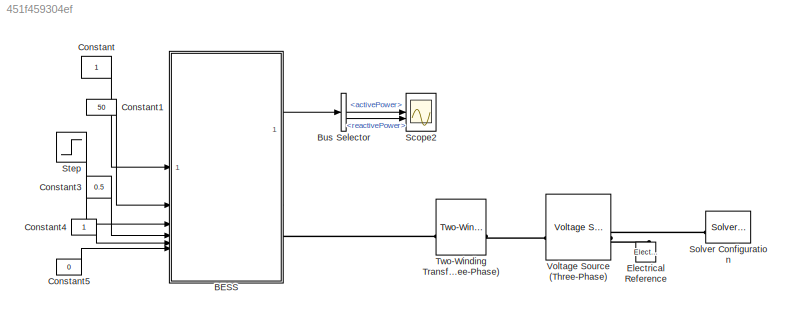
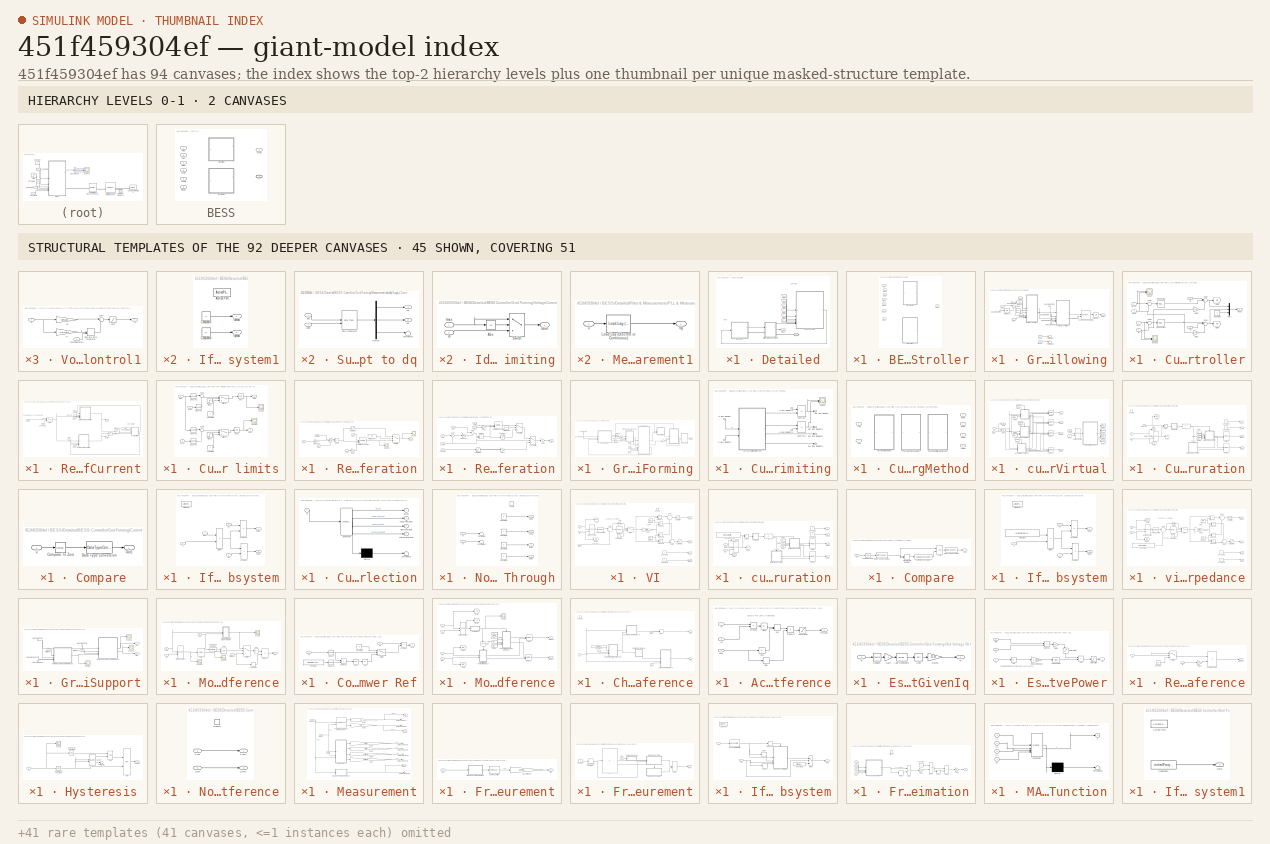
[diagram: thumbnail index - top-2 hierarchy levels (2 canvases) + 45 structural-template representatives of the remaining 92 canvases]
MODEL slx_451f459304ef
KIND model
CONFIG AbsTol = auto
CONFIG EnableMultiTasking = off
CONFIG FixedStep = auto
CONFIG MaxStep = auto
CONFIG MinStep = auto
CONFIG PostLoadFcn = BESSParam
CONFIG RelTol = 1e-3
CONFIG SampleTimeConstraint = Unconstrained
CONFIG SolverName = VariableStepAuto
CONFIG StartTime = 0.0
CONFIG StopTime = 5
BLOCK [SubSystem] BESS
  CopyFcn = set_param(gcbh,'LinkStatus','none');
  LabelModeActiveChoice = Detailed
  Variant = on
  VariantControlMode = label
BLOCK [SubSystem] BESS/Detailed
  VariantControl = Detailed
BLOCK [SubSystem] BESS/Detailed/BESS Controller
  LabelModeActiveChoice = Grid Forming
  Variant = on
  VariantControlMode = label
BLOCK [Inport] BESS/Detailed/BESS Controller/FRef
  Port = 2
BLOCK [SubSystem] BESS/Detailed/BESS Controller/Grid Following
  CopyFcn = set_param(gcb,'LinkStatus','none');
  ShowPortLabels = SignalName
  VariantControl = Grid Following
BLOCK [Inport] BESS/Detailed/BESS Controller/Grid Following/BusElementIn
  Port = 7
BLOCK [Inport] BESS/Detailed/BESS Controller/Grid Following/BusElementIn1
  Port = 7
BLOCK [Inport] BESS/Detailed/BESS Controller/Grid Following/BusElementIn3
  Port = 7
BLOCK [Inport] BESS/Detailed/BESS Controller/Grid Following/BusElementIn4
  Port = 7
BLOCK [Constant] BESS/Detailed/BESS Controller/Grid Following/Constant
  Value = 10
BLOCK [SubSystem] BESS/Detailed/BESS Controller/Grid Following/Current_controller
BLOCK [Constant] BESS/Detailed/BESS Controller/Grid Following/Current_controller/Constant4
  Value = 0
BLOCK [Gain] BESS/Detailed/BESS Controller/Grid Following/Current_controller/Gain1
  Gain = 2*1*pi*frequency*L/zbase
BLOCK [Gain] BESS/Detailed/BESS Controller/Grid Following/Current_controller/Gain2
  Gain = 2*1*pi*frequency*L/zbase
BLOCK [Goto] BESS/Detailed/BESS Controller/Grid Following/Current_controller/Goto8
  GotoTag = Ed
BLOCK [Goto] BESS/Detailed/BESS Controller/Grid Following/Current_controller/Goto9
  GotoTag = Eq
BLOCK [Mux] BESS/Detailed/BESS Controller/Grid Following/Current_controller/Mux1
  DisplayOption = bar
  Inputs = 3
BLOCK [Reference] BESS/Detailed/BESS Controller/Grid Following/Current_controller/PID Controller  REF=slpidlib/PID Controller
  SourceBlock = slpidlib/PID Controller
  SourceType = PID 1dof
BLOCK [Reference] BESS/Detailed/BESS Controller/Grid Following/Current_controller/PID Controller1  REF=slpidlib/PID Controller
  SourceBlock = slpidlib/PID Controller
  SourceType = PID 1dof
BLOCK [Scope] BESS/Detailed/BESS Controller/Grid Following/Current_controller/Scope
  ActiveDisplayYMaximum = 1
  ActiveDisplayYMinimum = -1
  Floating = off
  GraphicalSettings = {"Style":{"BackgroundColor":[0.12941176470588237,0.12941176470588237,0.12941176470588237],"AxesColor":[0.07058823529411765,0.07058823529411765,0.07058823529411765],"LabelsColor":[0.8509803921568627,0.8509803921568627,0.8509803921568627],"PreserveColors":false,"Visible":[true,true],"LineStyle":["-","-"],"LineWidth":[1.5,1.5],"BarWidth":[0.9,0.9],"LineColor":["auto","auto"],"LineFaceAlpha":[1,1],"Li...<+2273ch>
  LayoutDimensionsString = [2 1]
  MultipleDisplayCache = [{"MaxYLimMag":1,"MaxYLimReal":1,"MinYLimMag":0,"MinYLimReal":-1,"PlotAsMagnitudePhase":false,"ShowGrid":true,"ShowLegend":false,"Title":"%<SignalLabel>","YLabel":""},{"MaxYLimMag":1,"MaxYLimReal":1,"MinYLimMag":0,"MinYLimReal":-1,"PlotAsMagnitudePhase":false,"ShowGrid":true,"ShowLegend":false,"Title":"%<SignalLabel>","YLabel":""}]  <repeated x3 — deduplicated; at blocks: Scope, Scope2, Scope3>
  NumInputPorts = 2
  ScopeFrameLocation = window
  WasSavedAsWebScope = on
  WindowPosition = [360.000000,150.000000,560.000000,420.000000,]
BLOCK [Scope] BESS/Detailed/BESS Controller/Grid Following/Current_controller/Scope1
  ActiveDisplayYMaximum = 0.9154
  ActiveDisplayYMinimum = -1.21282
  DataLoggingVariableName = ScopeData2
  Floating = off
  GraphicalSettings = {"Style":{"BackgroundColor":[0.12941176470588237,0.12941176470588237,0.12941176470588237],"AxesColor":[0.07058823529411765,0.07058823529411765,0.07058823529411765],"LabelsColor":[0.8509803921568627,0.8509803921568627,0.8509803921568627],"PreserveColors":false,"Visible":[true,true],"LineStyle":["-","-"],"LineWidth":[1.5,1.5],"BarWidth":[0.9,0.9],"LineColor":["auto","auto"],"LineFaceAlpha":[1,1],"Li...<+2321ch>
  LayoutDimensionsString = [2 1]
  MultipleDisplayCache = [{"MaxYLimMag":1.21282,"MaxYLimReal":0.9154,"MinYLimMag":0,"MinYLimReal":-1.21282,"PlotAsMagnitudePhase":false,"ShowGrid":true,"ShowLegend":false,"Title":"%<SignalLabel>","YLabel":""},{"MaxYLimMag":21.95929,"MaxYLimReal":1.5114,"MinYLimMag":0,"MinYLimReal":-2.80822,"PlotAsMagnitudePhase":false,"ShowGrid":true,"ShowLegend":false,"Title":"%<SignalLabel>","YLabel":""}]
  NumInputPorts = 2
  ScopeFrameLocation = window
  WasSavedAsWebScope = on
  WindowPosition = [360.000000,150.000000,560.000000,420.000000,]
BLOCK [Sum] BESS/Detailed/BESS Controller/Grid Following/Current_controller/Sum1
  Inputs = |+-
BLOCK [Sum] BESS/Detailed/BESS Controller/Grid Following/Current_controller/Sum3
  Inputs = |++-
BLOCK [Sum] BESS/Detailed/BESS Controller/Grid Following/Current_controller/Sum4
  Inputs = |+++
BLOCK [Sum] BESS/Detailed/BESS Controller/Grid Following/Current_controller/Sum5
  Inputs = |+-
BLOCK [Inport] BESS/Detailed/BESS Controller/Grid Following/Current_controller/Vd
  Port = 5
BLOCK [Inport] BESS/Detailed/BESS Controller/Grid Following/Current_controller/Vq
  Port = 6
BLOCK [Inport] BESS/Detailed/BESS Controller/Grid Following/Current_controller/id-ref
  IconDisplay = Signal name
BLOCK [Inport] BESS/Detailed/BESS Controller/Grid Following/Current_controller/ipvd
  IconDisplay = Signal name
  Port = 2
BLOCK [Inport] BESS/Detailed/BESS Controller/Grid Following/Current_controller/iq
  IconDisplay = Signal name
  Port = 4
BLOCK [Inport] BESS/Detailed/BESS Controller/Grid Following/Current_controller/iqref
  IconDisplay = Signal name
  Port = 3
BLOCK [Outport] BESS/Detailed/BESS Controller/Grid Following/Current_controller/mdq0
BLOCK [Inport] BESS/Detailed/BESS Controller/Grid Following/FRef
  Port = 2
BLOCK [Inport] BESS/Detailed/BESS Controller/Grid Following/In Bus Element2
  Port = 7
BLOCK [Inport] BESS/Detailed/BESS Controller/Grid Following/In Bus Element3
  Port = 7
BLOCK [Inport] BESS/Detailed/BESS Controller/Grid Following/In Bus Element7
  Port = 7
BLOCK [Reference] BESS/Detailed/BESS Controller/Grid Following/Inverse Park Transform1  REF=eeTransforms/Inverse
Park Transform
  SourceBlock = eeTransforms/Inverse\nPark Transform
  SourceType = Inverse Park Transform
BLOCK [Inport] BESS/Detailed/BESS Controller/Grid Following/Mode
  Port = 5
BLOCK [Inport] BESS/Detailed/BESS Controller/Grid Following/PRef
  Port = 3
BLOCK [Inport] BESS/Detailed/BESS Controller/Grid Following/QRef
  Port = 4
BLOCK [SubSystem] BESS/Detailed/BESS Controller/Grid Following/Reference Current
BLOCK [Constant] BESS/Detailed/BESS Controller/Grid Following/Reference Current/Constant1
BLOCK [Constant] BESS/Detailed/BESS Controller/Grid Following/Reference Current/Constant3
  Value = Imax
BLOCK [SubSystem] BESS/Detailed/BESS Controller/Grid Following/Reference Current/Current limits
BLOCK [Constant] BESS/Detailed/BESS Controller/Grid Following/Reference Current/Current limits/Constant8
  Value = 0
BLOCK [Constant] BESS/Detailed/BESS Controller/Grid Following/Reference Current/Current limits/Constant9
  Value = 0
BLOCK [Inport] BESS/Detailed/BESS Controller/Grid Following/Reference Current/Current limits/Imax
BLOCK [Scope] BESS/Detailed/BESS Controller/Grid Following/Reference Current/Current limits/Scope
  ActiveDisplayYMaximum = 1.29587
  ActiveDisplayYMinimum = -0.14399
  DataLoggingVariableName = ScopeData3
  Floating = off
  GraphicalSettings = {"GraphicalSettings":{"LegacySettings":true,"Style":{"Style":{"AxesColor":"[0 0 0]","ChannelNames":[""],"ColorOrder":"[1 0.909803921568627 0.392156862745098;0.149019607843137 0.549019607843137 0.866666666666667;0.96078431372549 0.466666666666667 0.16078431372549;0.286274509803922 0.858823529411765 0.250980392156863;0.752941176470588 0.36078431372549 0.984313725490196;0.423529411764706 0.9568627450...<+476ch>  <repeated x9 — deduplicated; at blocks: Scope, Scope1, Scope2>
  MultipleDisplayCache = [{"MaxYLimMag":1.29587,"MaxYLimReal":1.29587,"MinYLimMag":0,"MinYLimReal":-0.14399,"PlotAsMagnitudePhase":false,"ShowGrid":true,"ShowLegend":false,"Title":"%<SignalLabel>","YLabel":""}]
  NumInputPorts = 1
  WasSavedAsWebScope = on
BLOCK [Scope] BESS/Detailed/BESS Controller/Grid Following/Reference Current/Current limits/Scope1
  ActiveDisplayYMaximum = 1.22893
  ActiveDisplayYMinimum = -0.13655
  DataLoggingVariableName = ScopeData4
  Floating = off
  MultipleDisplayCache = [{"MaxYLimMag":1.22893,"MaxYLimReal":1.22893,"MinYLimMag":0,"MinYLimReal":-0.13655,"PlotAsMagnitudePhase":false,"ShowGrid":true,"ShowLegend":false,"Title":"%<SignalLabel>","YLabel":""}]
  NumInputPorts = 1
  WasSavedAsWebScope = on
BLOCK [Sqrt] BESS/Detailed/BESS Controller/Grid Following/Reference Current/Current limits/Sqrt
BLOCK [Sqrt] BESS/Detailed/BESS Controller/Grid Following/Reference Current/Current limits/Sqrt1
BLOCK [Math] BESS/Detailed/BESS Controller/Grid Following/Reference Current/Current limits/Square1
  Operator = square
BLOCK [Math] BESS/Detailed/BESS Controller/Grid Following/Reference Current/Current limits/Square2
  Operator = square
BLOCK [Math] BESS/Detailed/BESS Controller/Grid Following/Reference Current/Current limits/Square3
  Operator = square
BLOCK [Math] BESS/Detailed/BESS Controller/Grid Following/Reference Current/Current limits/Square4
  Operator = square
BLOCK [Step] BESS/Detailed/BESS Controller/Grid Following/Reference Current/Current limits/Step2
  SampleTime = Ts
  Time = 0.01
BLOCK [Step] BESS/Detailed/BESS Controller/Grid Following/Reference Current/Current limits/Step3
  SampleTime = Ts
  Time = 0.01
BLOCK [Sum] BESS/Detailed/BESS Controller/Grid Following/Reference Current/Current limits/Sum6
  Inputs = |+-
BLOCK [Sum] BESS/Detailed/BESS Controller/Grid Following/Reference Current/Current limits/Sum9
  Inputs = |+-
BLOCK [Switch] BESS/Detailed/BESS Controller/Grid Following/Reference Current/Current limits/Switch1
  InputSameDT = off
  SaturateOnIntegerOverflow = off
  Threshold = .01
BLOCK [Switch] BESS/Detailed/BESS Controller/Grid Following/Reference Current/Current limits/Switch2
  InputSameDT = off
  SaturateOnIntegerOverflow = off
  Threshold = .01
BLOCK [Inport] BESS/Detailed/BESS Controller/Grid Following/Reference Current/Current limits/idref
  Port = 3
BLOCK [Inport] BESS/Detailed/BESS Controller/Grid Following/Reference Current/Current limits/iqref
  Port = 2
BLOCK [Outport] BESS/Detailed/BESS Controller/Grid Following/Reference Current/Current limits/iubd
  Port = 2
BLOCK [Outport] BESS/Detailed/BESS Controller/Grid Following/Reference Current/Current limits/iubq
BLOCK [Inport] BESS/Detailed/BESS Controller/Grid Following/Reference Current/LVRT_iq
  Port = 4
BLOCK [Inport] BESS/Detailed/BESS Controller/Grid Following/Reference Current/PRef
  Port = 5
BLOCK [Inport] BESS/Detailed/BESS Controller/Grid Following/Reference Current/QRef
  Port = 6
BLOCK [SubSystem] BESS/Detailed/BESS Controller/Grid Following/Reference Current/Refernce id generation
BLOCK [Product] BESS/Detailed/BESS Controller/Grid Following/Reference Current/Refernce id generation/Divide
  Inputs = /*
BLOCK [Gain] BESS/Detailed/BESS Controller/Grid Following/Reference Current/Refernce id generation/Gain6
  Gain = -1
BLOCK [Switch] BESS/Detailed/BESS Controller/Grid Following/Reference Current/Refernce id generation/P//Q Priority
  Criteria = u2 ~= 0
  InputSameDT = off
  SaturateOnIntegerOverflow = off
BLOCK [Inport] BESS/Detailed/BESS Controller/Grid Following/Reference Current/Refernce id generation/PRef
  Port = 4
BLOCK [Constant] BESS/Detailed/BESS Controller/Grid Following/Reference Current/Refernce id generation/Priority Mode
  Value = P-2
BLOCK [Reference] BESS/Detailed/BESS Controller/Grid Following/Reference Current/Refernce id generation/Saturation Dynamic2  REF=simulink/Discontinuities/Saturation
Dynamic
  SourceBlock = simulink/Discontinuities/Saturation\nDynamic
  SourceType = Saturation Dynamic
BLOCK [Saturate] BESS/Detailed/BESS Controller/Grid Following/Reference Current/Refernce id generation/Saturation1
  LowerLimit = -Imax
  UpperLimit = Imax
BLOCK [Scope] BESS/Detailed/BESS Controller/Grid Following/Reference Current/Refernce id generation/Scope
  ActiveDisplayYMaximum = 1
  ActiveDisplayYMinimum = -1
  DataLoggingVariableName = ScopeData1
  Floating = off
  GraphicalSettings = {"Style":{"BackgroundColor":[0.12941176470588237,0.12941176470588237,0.12941176470588237],"AxesColor":[0.07058823529411765,0.07058823529411765,0.07058823529411765],"LabelsColor":[0.8509803921568627,0.8509803921568627,0.8509803921568627],"PreserveColors":false,"Visible":[true],"LineStyle":["-"],"LineWidth":[1.5],"BarWidth":[0.9],"LineColor":["auto"],"LineFaceAlpha":[1],"LineEdgeAlpha":[1],"Marker":...<+1946ch>
  MultipleDisplayCache = [{"MaxYLimMag":1,"MaxYLimReal":1,"MinYLimMag":0,"MinYLimReal":-1,"PlotAsMagnitudePhase":false,"ShowGrid":true,"ShowLegend":false,"Title":"%<SignalLabel>","YLabel":""}]
  NumInputPorts = 1
  ScopeFrameLocation = window
  WasSavedAsWebScope = on
  WindowPosition = [1076.000000,750.000000,560.000000,420.000000,]
BLOCK [Scope] BESS/Detailed/BESS Controller/Grid Following/Reference Current/Refernce id generation/Scope1
  ActiveDisplayYMaximum = 0.07625
  ActiveDisplayYMinimum = -0.68622
  DataLoggingVariableName = ScopeData2
  Floating = off
  MultipleDisplayCache = [{"MaxYLimMag":0.68622,"MaxYLimReal":0.07625,"MinYLimMag":0,"MinYLimReal":-0.68622,"PlotAsMagnitudePhase":false,"ShowGrid":true,"ShowLegend":false,"Title":"%<SignalLabel>","YLabel":""}]
  NumInputPorts = 1
  WasSavedAsWebScope = on
BLOCK [Sum] BESS/Detailed/BESS Controller/Grid Following/Reference Current/Refernce id generation/Sum
  Inputs = |++
BLOCK [Inport] BESS/Detailed/BESS Controller/Grid Following/Reference Current/Refernce id generation/V_mag
BLOCK [Inport] BESS/Detailed/BESS Controller/Grid Following/Reference Current/Refernce id generation/del f
  Port = 2
BLOCK [Gain] BESS/Detailed/BESS Controller/Grid Following/Reference Current/Refernce id generation/droop m_p
  Gain = mp/MVA
BLOCK [Outport] BESS/Detailed/BESS Controller/Grid Following/Reference Current/Refernce id generation/id_ref
BLOCK [Inport] BESS/Detailed/BESS Controller/Grid Following/Reference Current/Refernce id generation/ubid
  Port = 3
BLOCK [InportShadow] BESS/Detailed/BESS Controller/Grid Following/Reference Current/Refernce id generation/ubid1
  Port = 3
BLOCK [SubSystem] BESS/Detailed/BESS Controller/Grid Following/Reference Current/Refernce iq generation
BLOCK [Product] BESS/Detailed/BESS Controller/Grid Following/Reference Current/Refernce iq generation/Divide1
  Inputs = */
BLOCK [Gain] BESS/Detailed/BESS Controller/Grid Following/Reference Current/Refernce iq generation/Gain
  Gain = -1
BLOCK [Gain] BESS/Detailed/BESS Controller/Grid Following/Reference Current/Refernce iq generation/Gain1
  Gain = -1
BLOCK [Gain] BESS/Detailed/BESS Controller/Grid Following/Reference Current/Refernce iq generation/Gain7
  Gain = -1
BLOCK [Switch] BESS/Detailed/BESS Controller/Grid Following/Reference Current/Refernce iq generation/LVRT Priority
  InputSameDT = off
  SaturateOnIntegerOverflow = off
  Threshold = .9
BLOCK [Inport] BESS/Detailed/BESS Controller/Grid Following/Reference Current/Refernce iq generation/LVRT_iq
  Port = 4
BLOCK [Switch] BESS/Detailed/BESS Controller/Grid Following/Reference Current/Refernce iq generation/P//Q Priority
  Criteria = u2 ~= 0
  InputSameDT = off
  SaturateOnIntegerOverflow = off
BLOCK [Constant] BESS/Detailed/BESS Controller/Grid Following/Reference Current/Refernce iq generation/Priority Mode
  Value = P-2
BLOCK [Inport] BESS/Detailed/BESS Controller/Grid Following/Reference Current/Refernce iq generation/Q_ref
  Port = 5
BLOCK [Reference] BESS/Detailed/BESS Controller/Grid Following/Reference Current/Refernce iq generation/Saturation Dynamic  REF=simulink/Discontinuities/Saturation
Dynamic
  SourceBlock = simulink/Discontinuities/Saturation\nDynamic
  SourceType = Saturation Dynamic
BLOCK [Saturate] BESS/Detailed/BESS Controller/Grid Following/Reference Current/Refernce iq generation/Saturation2
  LowerLimit = -1
  UpperLimit = 1
BLOCK [Saturate] BESS/Detailed/BESS Controller/Grid Following/Reference Current/Refernce iq generation/Saturation3
  LowerLimit = -Imax
  UpperLimit = Imax
BLOCK [Sum] BESS/Detailed/BESS Controller/Grid Following/Reference Current/Refernce iq generation/Sum
  Inputs = |++
BLOCK [Sum] BESS/Detailed/BESS Controller/Grid Following/Reference Current/Refernce iq generation/Sum1
  Inputs = |-+
BLOCK [Inport] BESS/Detailed/BESS Controller/Grid Following/Reference Current/Refernce iq generation/V_mag
  Port = 3
BLOCK [Inport] BESS/Detailed/BESS Controller/Grid Following/Reference Current/Refernce iq generation/V_ref
  Port = 2
BLOCK [Gain] BESS/Detailed/BESS Controller/Grid Following/Reference Current/Refernce iq generation/droop m_v
  Gain = mv
BLOCK [Outport] BESS/Detailed/BESS Controller/Grid Following/Reference Current/Refernce iq generation/iq_ref
BLOCK [Inport] BESS/Detailed/BESS Controller/Grid Following/Reference Current/Refernce iq generation/ubiq
BLOCK [InportShadow] BESS/Detailed/BESS Controller/Grid Following/Reference Current/Refernce iq generation/ubiq1
BLOCK [Switch] BESS/Detailed/BESS Controller/Grid Following/Reference Current/Switch
  Criteria = u2 ~= 0
  InputSameDT = off
  SaturateOnIntegerOverflow = off
BLOCK [UnitDelay] BESS/Detailed/BESS Controller/Grid Following/Reference Current/Unit Delay1
  HasFrameUpgradeWarning = on
  SampleTime = Ts
BLOCK [UnitDelay] BESS/Detailed/BESS Controller/Grid Following/Reference Current/Unit Delay3
  HasFrameUpgradeWarning = on
  SampleTime = Ts
BLOCK [Inport] BESS/Detailed/BESS Controller/Grid Following/Reference Current/V-mag
  Port = 2
BLOCK [Inport] BESS/Detailed/BESS Controller/Grid Following/Reference Current/V_ref
BLOCK [Inport] BESS/Detailed/BESS Controller/Grid Following/Reference Current/del f
  Port = 3
BLOCK [Outport] BESS/Detailed/BESS Controller/Grid Following/Reference Current/id_ref
BLOCK [Outport] BESS/Detailed/BESS Controller/Grid Following/Reference Current/iq_ref
  Port = 2
BLOCK [Inport] BESS/Detailed/BESS Controller/Grid Following/Reset
  Port = 6
BLOCK [Sum] BESS/Detailed/BESS Controller/Grid Following/Sum2
  Inputs = |+-
BLOCK [Terminator] BESS/Detailed/BESS Controller/Grid Following/Terminator
BLOCK [Terminator] BESS/Detailed/BESS Controller/Grid Following/Terminator1
BLOCK [UnitDelay] BESS/Detailed/BESS Controller/Grid Following/Unit Delay
  HasFrameUpgradeWarning = on
  SampleTime = Td
BLOCK [UnitDelay] BESS/Detailed/BESS Controller/Grid Following/Unit Delay1
  HasFrameUpgradeWarning = on
  SampleTime = Td
BLOCK [UnitDelay] BESS/Detailed/BESS Controller/Grid Following/Unit Delay2
  HasFrameUpgradeWarning = on
  SampleTime = Ts
BLOCK [Inport] BESS/Detailed/BESS Controller/Grid Following/VRef
  NameLocation = top
BLOCK [Outport] BESS/Detailed/BESS Controller/Grid Following/mabc
BLOCK [SubSystem] BESS/Detailed/BESS Controller/Grid Forming
  CopyFcn = set_param(gcb,'LinkStatus','none');
  VariantControl = Grid Forming
BLOCK [Inport] BESS/Detailed/BESS Controller/Grid Forming/Bus Element In
  Port = 7
BLOCK [Inport] BESS/Detailed/BESS Controller/Grid Forming/BusElementIn
  Port = 7
BLOCK [SubSystem] BESS/Detailed/BESS Controller/Grid Forming/Current Limiting
BLOCK [SubSystem] BESS/Detailed/BESS Controller/Grid Forming/Current Limiting/CurrentLimitingMethod
  LabelModeActiveChoice = ctSat
  Variant = on
  VariantControl = Choice
  VariantControlMode = label
BLOCK [Outport] BESS/Detailed/BESS Controller/Grid Forming/Current Limiting/CurrentLimitingMethod/Idmax
  Port = 3
BLOCK [Inport] BESS/Detailed/BESS Controller/Grid Forming/Current Limiting/CurrentLimitingMethod/Igd
BLOCK [Inport] BESS/Detailed/BESS Controller/Grid Forming/Current Limiting/CurrentLimitingMethod/Igq
  Port = 2
BLOCK [Outport] BESS/Detailed/BESS Controller/Grid Forming/Current Limiting/CurrentLimitingMethod/Iqmax
  Port = 4
BLOCK [SubSystem] BESS/Detailed/BESS Controller/Grid Forming/Current Limiting/CurrentLimitingMethod/currentLimitAndVirtual
  VariantControl = both
BLOCK [SubSystem] BESS/Detailed/BESS Controller/Grid Forming/Current Limiting/CurrentLimitingMethod/currentLimitAndVirtual/Current Saturation
BLOCK [SubSystem] BESS/Detailed/BESS Controller/Grid Forming/Current Limiting/CurrentLimitingMethod/currentLimitAndVirtual/Current Saturation/Compare
BLOCK [Reference] BESS/Detailed/BESS Controller/Grid Forming/Current Limiting/CurrentLimitingMethod/currentLimitAndVirtual/Current Saturation/Compare/Compare To Zero  REF=simulink/Logic and Bit
Operations/Compare
To Zero
  SourceBlock = simulink/Logic and Bit\nOperations/Compare\nTo Zero
  SourceType = Compare To Zero
BLOCK [DataTypeConversion] BESS/Detailed/BESS Controller/Grid Forming/Current Limiting/CurrentLimitingMethod/currentLimitAndVirtual/Current Saturation/Compare/Data Type Conversion
  RndMeth = Floor
  SaturateOnIntegerOverflow = off
BLOCK [Outport] BESS/Detailed/BESS Controller/Grid Forming/Current Limiting/CurrentLimitingMethod/currentLimitAndVirtual/Current Saturation/Compare/Out1
BLOCK [Inport] BESS/Detailed/BESS Controller/Grid Forming/Current Limiting/CurrentLimitingMethod/currentLimitAndVirtual/Current Saturation/Compare/u
BLOCK [Constant] BESS/Detailed/BESS Controller/Grid Forming/Current Limiting/CurrentLimitingMethod/currentLimitAndVirtual/Current Saturation/Constant1
  Value = 0
BLOCK [Constant] BESS/Detailed/BESS Controller/Grid Forming/Current Limiting/CurrentLimitingMethod/currentLimitAndVirtual/Current Saturation/Constant2
  Value = 0
BLOCK [EnablePort] BESS/Detailed/BESS Controller/Grid Forming/Current Limiting/CurrentLimitingMethod/currentLimitAndVirtual/Current Saturation/Enable
BLOCK [From] BESS/Detailed/BESS Controller/Grid Forming/Current Limiting/CurrentLimitingMethod/currentLimitAndVirtual/Current Saturation/From
  GotoTag = Isd
BLOCK [From] BESS/Detailed/BESS Controller/Grid Forming/Current Limiting/CurrentLimitingMethod/currentLimitAndVirtual/Current Saturation/From1
  GotoTag = Isq
BLOCK [From] BESS/Detailed/BESS Controller/Grid Forming/Current Limiting/CurrentLimitingMethod/currentLimitAndVirtual/Current Saturation/From2
  GotoTag = Is
BLOCK [From] BESS/Detailed/BESS Controller/Grid Forming/Current Limiting/CurrentLimitingMethod/currentLimitAndVirtual/Current Saturation/From3
  GotoTag = Imax
BLOCK [Goto] BESS/Detailed/BESS Controller/Grid Forming/Current Limiting/CurrentLimitingMethod/currentLimitAndVirtual/Current Saturation/Goto
  GotoTag = Isd
BLOCK [Goto] BESS/Detailed/BESS Controller/Grid Forming/Current Limiting/CurrentLimitingMethod/currentLimitAndVirtual/Current Saturation/Goto1
  GotoTag = Isq
BLOCK [Goto] BESS/Detailed/BESS Controller/Grid Forming/Current Limiting/CurrentLimitingMethod/currentLimitAndVirtual/Current Saturation/Goto2
  GotoTag = Is
BLOCK [Goto] BESS/Detailed/BESS Controller/Grid Forming/Current Limiting/CurrentLimitingMethod/currentLimitAndVirtual/Current Saturation/Goto3
  GotoTag = Imax
BLOCK [Inport] BESS/Detailed/BESS Controller/Grid Forming/Current Limiting/CurrentLimitingMethod/currentLimitAndVirtual/Current Saturation/Id
BLOCK [If] BESS/Detailed/BESS Controller/Grid Forming/Current Limiting/CurrentLimitingMethod/currentLimitAndVirtual/Current Saturation/If
BLOCK [SubSystem] BESS/Detailed/BESS Controller/Grid Forming/Current Limiting/CurrentLimitingMethod/currentLimitAndVirtual/Current Saturation/If Action Subsystem
  TreatAsAtomicUnit = on
BLOCK [ActionPort] BESS/Detailed/BESS Controller/Grid Forming/Current Limiting/CurrentLimitingMethod/currentLimitAndVirtual/Current Saturation/If Action Subsystem/Action Port
BLOCK [Product] BESS/Detailed/BESS Controller/Grid Forming/Current Limiting/CurrentLimitingMethod/currentLimitAndVirtual/Current Saturation/If Action Subsystem/Divide
  Inputs = */
BLOCK [Outport] BESS/Detailed/BESS Controller/Grid Forming/Current Limiting/CurrentLimitingMethod/currentLimitAndVirtual/Current Saturation/If Action Subsystem/Idmax
BLOCK [Outport] BESS/Detailed/BESS Controller/Grid Forming/Current Limiting/CurrentLimitingMethod/currentLimitAndVirtual/Current Saturation/If Action Subsystem/Iqmax
  Port = 2
BLOCK [Inport] BESS/Detailed/BESS Controller/Grid Forming/Current Limiting/CurrentLimitingMethod/currentLimitAndVirtual/Current Saturation/If Action Subsystem/Is
BLOCK [Inport] BESS/Detailed/BESS Controller/Grid Forming/Current Limiting/CurrentLimitingMethod/currentLimitAndVirtual/Current Saturation/If Action Subsystem/Isd
  Port = 2
BLOCK [Inport] BESS/Detailed/BESS Controller/Grid Forming/Current Limiting/CurrentLimitingMethod/currentLimitAndVirtual/Current Saturation/If Action Subsystem/Isq
  Port = 3
BLOCK [Product] BESS/Detailed/BESS Controller/Grid Forming/Current Limiting/CurrentLimitingMethod/currentLimitAndVirtual/Current Saturation/If Action Subsystem/Product
BLOCK [Product] BESS/Detailed/BESS Controller/Grid Forming/Current Limiting/CurrentLimitingMethod/currentLimitAndVirtual/Current Saturation/If Action Subsystem/Product1
BLOCK [Inport] BESS/Detailed/BESS Controller/Grid Forming/Current Limiting/CurrentLimitingMethod/currentLimitAndVirtual/Current Saturation/If Action Subsystem/maxI
  Port = 4
BLOCK [SubSystem] BESS/Detailed/BESS Controller/Grid Forming/Current Limiting/CurrentLimitingMethod/currentLimitAndVirtual/Current Saturation/If Action Subsystem1
  TreatAsAtomicUnit = on
BLOCK [ActionPort] BESS/Detailed/BESS Controller/Grid Forming/Current Limiting/CurrentLimitingMethod/currentLimitAndVirtual/Current Saturation/If Action Subsystem1/Action Port
BLOCK [Constant] BESS/Detailed/BESS Controller/Grid Forming/Current Limiting/CurrentLimitingMethod/currentLimitAndVirtual/Current Saturation/If Action Subsystem1/Constant3
  Value = 0
BLOCK [Constant] BESS/Detailed/BESS Controller/Grid Forming/Current Limiting/CurrentLimitingMethod/currentLimitAndVirtual/Current Saturation/If Action Subsystem1/Constant4
  Value = 0
BLOCK [Outport] BESS/Detailed/BESS Controller/Grid Forming/Current Limiting/CurrentLimitingMethod/currentLimitAndVirtual/Current Saturation/If Action Subsystem1/Idmax
BLOCK [Outport] BESS/Detailed/BESS Controller/Grid Forming/Current Limiting/CurrentLimitingMethod/currentLimitAndVirtual/Current Saturation/If Action Subsystem1/Iqmax
  Port = 2
BLOCK [Inport] BESS/Detailed/BESS Controller/Grid Forming/Current Limiting/CurrentLimitingMethod/currentLimitAndVirtual/Current Saturation/Imaxsat
  Port = 3
BLOCK [Inport] BESS/Detailed/BESS Controller/Grid Forming/Current Limiting/CurrentLimitingMethod/currentLimitAndVirtual/Current Saturation/Iq
  Port = 2
BLOCK [Math] BESS/Detailed/BESS Controller/Grid Forming/Current Limiting/CurrentLimitingMethod/currentLimitAndVirtual/Current Saturation/Math Function
  Operator = hypot
BLOCK [Merge] BESS/Detailed/BESS Controller/Grid Forming/Current Limiting/CurrentLimitingMethod/currentLimitAndVirtual/Current Saturation/Merge
BLOCK [Merge] BESS/Detailed/BESS Controller/Grid Forming/Current Limiting/CurrentLimitingMethod/currentLimitAndVirtual/Current Saturation/Merge1
BLOCK [Sum] BESS/Detailed/BESS Controller/Grid Forming/Current Limiting/CurrentLimitingMethod/currentLimitAndVirtual/Current Saturation/Subtract
  IconShape = rectangular
  Inputs = +-
BLOCK [Outport] BESS/Detailed/BESS Controller/Grid Forming/Current Limiting/CurrentLimitingMethod/currentLimitAndVirtual/Current Saturation/delVd
BLOCK [Outport] BESS/Detailed/BESS Controller/Grid Forming/Current Limiting/CurrentLimitingMethod/currentLimitAndVirtual/Current Saturation/delVq
  Port = 2
BLOCK [Outport] BESS/Detailed/BESS Controller/Grid Forming/Current Limiting/CurrentLimitingMethod/currentLimitAndVirtual/Current Saturation/idmax
  Port = 3
BLOCK [Outport] BESS/Detailed/BESS Controller/Grid Forming/Current Limiting/CurrentLimitingMethod/currentLimitAndVirtual/Current Saturation/iqmax
  Port = 4
BLOCK [SubSystem] BESS/Detailed/BESS Controller/Grid Forming/Current Limiting/CurrentLimitingMethod/currentLimitAndVirtual/CurrentLimitSelection
  ErrorFcn = Stateflow.Translate.translate
  PermitHierarchicalResolution = ExplicitOnly
  SFBlockType = Chart
  TreatAsAtomicUnit = on
BLOCK [Demux] BESS/Detailed/BESS Controller/Grid Forming/Current Limiting/CurrentLimitingMethod/currentLimitAndVirtual/CurrentLimitSelection/ Demux 
  Outputs = 1
BLOCK [S-Function] BESS/Detailed/BESS Controller/Grid Forming/Current Limiting/CurrentLimitingMethod/currentLimitAndVirtual/CurrentLimitSelection/ SFunction 
  EnableBusSupport = off
  FunctionName = sf_sfun
  Parameters = currentControlTs,currentSatTime,maxSatCurrentLimit,maxVICurrentLimit,powerFreq
  PortCounts = [1 5]
  SFcnIsStateOwnerBlock = off
  SFunctionDeploymentMode = off
  Tag = Stateflow S-Function 3
BLOCK [Terminator] BESS/Detailed/BESS Controller/Grid Forming/Current Limiting/CurrentLimitingMethod/currentLimitAndVirtual/CurrentLimitSelection/ Terminator 
BLOCK [Inport] BESS/Detailed/BESS Controller/Grid Forming/Current Limiting/CurrentLimitingMethod/currentLimitAndVirtual/CurrentLimitSelection/Is
BLOCK [Outport] BESS/Detailed/BESS Controller/Grid Forming/Current Limiting/CurrentLimitingMethod/currentLimitAndVirtual/CurrentLimitSelection/ismax
BLOCK [Outport] BESS/Detailed/BESS Controller/Grid Forming/Current Limiting/CurrentLimitingMethod/currentLimitAndVirtual/CurrentLimitSelection/noCurrentLimit
  Port = 2
BLOCK [Outport] BESS/Detailed/BESS Controller/Grid Forming/Current Limiting/CurrentLimitingMethod/currentLimitAndVirtual/CurrentLimitSelection/satCurrentLimit
  Port = 4
BLOCK [Outport] BESS/Detailed/BESS Controller/Grid Forming/Current Limiting/CurrentLimitingMethod/currentLimitAndVirtual/CurrentLimitSelection/viCurrentLimit
  Port = 3
BLOCK [From] BESS/Detailed/BESS Controller/Grid Forming/Current Limiting/CurrentLimitingMethod/currentLimitAndVirtual/From
  GotoTag = Id
BLOCK [From] BESS/Detailed/BESS Controller/Grid Forming/Current Limiting/CurrentLimitingMethod/currentLimitAndVirtual/From1
  GotoTag = Iq
BLOCK [From] BESS/Detailed/BESS Controller/Grid Forming/Current Limiting/CurrentLimitingMethod/currentLimitAndVirtual/From2
  GotoTag = viCtLt
BLOCK [From] BESS/Detailed/BESS Controller/Grid Forming/Current Limiting/CurrentLimitingMethod/currentLimitAndVirtual/From3
  GotoTag = satCtLt
BLOCK [From] BESS/Detailed/BESS Controller/Grid Forming/Current Limiting/CurrentLimitingMethod/currentLimitAndVirtual/From4
  GotoTag = noCtLt
BLOCK [From] BESS/Detailed/BESS Controller/Grid Forming/Current Limiting/CurrentLimitingMethod/currentLimitAndVirtual/From5
  GotoTag = Imax
BLOCK [From] BESS/Detailed/BESS Controller/Grid Forming/Current Limiting/CurrentLimitingMethod/currentLimitAndVirtual/From6
  GotoTag = Imax
BLOCK [Goto] BESS/Detailed/BESS Controller/Grid Forming/Current Limiting/CurrentLimitingMethod/currentLimitAndVirtual/Goto
  GotoTag = Id
BLOCK [Goto] BESS/Detailed/BESS Controller/Grid Forming/Current Limiting/CurrentLimitingMethod/currentLimitAndVirtual/Goto1
  GotoTag = Iq
BLOCK [Goto] BESS/Detailed/BESS Controller/Grid Forming/Current Limiting/CurrentLimitingMethod/currentLimitAndVirtual/Goto2
  GotoTag = Imax
BLOCK [Goto] BESS/Detailed/BESS Controller/Grid Forming/Current Limiting/CurrentLimitingMethod/currentLimitAndVirtual/Goto3
  GotoTag = noCtLt
BLOCK [Goto] BESS/Detailed/BESS Controller/Grid Forming/Current Limiting/CurrentLimitingMethod/currentLimitAndVirtual/Goto4
  GotoTag = viCtLt
BLOCK [Goto] BESS/Detailed/BESS Controller/Grid Forming/Current Limiting/CurrentLimitingMethod/currentLimitAndVirtual/Goto5
  GotoTag = satCtLt
BLOCK [Outport] BESS/Detailed/BESS Controller/Grid Forming/Current Limiting/CurrentLimitingMethod/currentLimitAndVirtual/Idmax
  Port = 3
BLOCK [Inport] BESS/Detailed/BESS Controller/Grid Forming/Current Limiting/CurrentLimitingMethod/currentLimitAndVirtual/Igd
BLOCK [Inport] BESS/Detailed/BESS Controller/Grid Forming/Current Limiting/CurrentLimitingMethod/currentLimitAndVirtual/Igq
  Port = 2
BLOCK [Outport] BESS/Detailed/BESS Controller/Grid Forming/Current Limiting/CurrentLimitingMethod/currentLimitAndVirtual/Iqmax
  Port = 4
BLOCK [Math] BESS/Detailed/BESS Controller/Grid Forming/Current Limiting/CurrentLimitingMethod/currentLimitAndVirtual/Math Function
  Operator = hypot
BLOCK [Merge] BESS/Detailed/BESS Controller/Grid Forming/Current Limiting/CurrentLimitingMethod/currentLimitAndVirtual/Merge
  Inputs = 3
BLOCK [Merge] BESS/Detailed/BESS Controller/Grid Forming/Current Limiting/CurrentLimitingMethod/currentLimitAndVirtual/Merge1
  Inputs = 3
BLOCK [Merge] BESS/Detailed/BESS Controller/Grid Forming/Current Limiting/CurrentLimitingMethod/currentLimitAndVirtual/Merge2
  Inputs = 3
BLOCK [Merge] BESS/Detailed/BESS Controller/Grid Forming/Current Limiting/CurrentLimitingMethod/currentLimitAndVirtual/Merge3
  Inputs = 3
BLOCK [SubSystem] BESS/Detailed/BESS Controller/Grid Forming/Current Limiting/CurrentLimitingMethod/currentLimitAndVirtual/No Fault Ride Through
BLOCK [Constant] BESS/Detailed/BESS Controller/Grid Forming/Current Limiting/CurrentLimitingMethod/currentLimitAndVirtual/No Fault Ride Through/Constant1
  Value = 0
BLOCK [Constant] BESS/Detailed/BESS Controller/Grid Forming/Current Limiting/CurrentLimitingMethod/currentLimitAndVirtual/No Fault Ride Through/Constant2
  Value = 0
BLOCK [Constant] BESS/Detailed/BESS Controller/Grid Forming/Current Limiting/CurrentLimitingMethod/currentLimitAndVirtual/No Fault Ride Through/Constant3
  Value = 0
BLOCK [Constant] BESS/Detailed/BESS Controller/Grid Forming/Current Limiting/CurrentLimitingMethod/currentLimitAndVirtual/No Fault Ride Through/Constant4
  Value = 0
BLOCK [EnablePort] BESS/Detailed/BESS Controller/Grid Forming/Current Limiting/CurrentLimitingMethod/currentLimitAndVirtual/No Fault Ride Through/Enable
BLOCK [Inport] BESS/Detailed/BESS Controller/Grid Forming/Current Limiting/CurrentLimitingMethod/currentLimitAndVirtual/No Fault Ride Through/Id
BLOCK [Inport] BESS/Detailed/BESS Controller/Grid Forming/Current Limiting/CurrentLimitingMethod/currentLimitAndVirtual/No Fault Ride Through/Iq
  Port = 2
BLOCK [Terminator] BESS/Detailed/BESS Controller/Grid Forming/Current Limiting/CurrentLimitingMethod/currentLimitAndVirtual/No Fault Ride Through/Terminator
BLOCK [Terminator] BESS/Detailed/BESS Controller/Grid Forming/Current Limiting/CurrentLimitingMethod/currentLimitAndVirtual/No Fault Ride Through/Terminator1
BLOCK [Outport] BESS/Detailed/BESS Controller/Grid Forming/Current Limiting/CurrentLimitingMethod/currentLimitAndVirtual/No Fault Ride Through/delVd
BLOCK [Outport] BESS/Detailed/BESS Controller/Grid Forming/Current Limiting/CurrentLimitingMethod/currentLimitAndVirtual/No Fault Ride Through/delVq
  Port = 2
BLOCK [Outport] BESS/Detailed/BESS Controller/Grid Forming/Current Limiting/CurrentLimitingMethod/currentLimitAndVirtual/No Fault Ride Through/idmax
  Port = 3
BLOCK [Outport] BESS/Detailed/BESS Controller/Grid Forming/Current Limiting/CurrentLimitingMethod/currentLimitAndVirtual/No Fault Ride Through/iqmax
  Port = 4
BLOCK [SubSystem] BESS/Detailed/BESS Controller/Grid Forming/Current Limiting/CurrentLimitingMethod/currentLimitAndVirtual/VI
BLOCK [Constant] BESS/Detailed/BESS Controller/Grid Forming/Current Limiting/CurrentLimitingMethod/currentLimitAndVirtual/VI/Constant1
  Value = 0
BLOCK [Constant] BESS/Detailed/BESS Controller/Grid Forming/Current Limiting/CurrentLimitingMethod/currentLimitAndVirtual/VI/Constant2
  Value = 0
BLOCK [Constant] BESS/Detailed/BESS Controller/Grid Forming/Current Limiting/CurrentLimitingMethod/currentLimitAndVirtual/VI/Constant3
  Value = 0
BLOCK [EnablePort] BESS/Detailed/BESS Controller/Grid Forming/Current Limiting/CurrentLimitingMethod/currentLimitAndVirtual/VI/Enable
BLOCK [From] BESS/Detailed/BESS Controller/Grid Forming/Current Limiting/CurrentLimitingMethod/currentLimitAndVirtual/VI/From10
  GotoTag = Igd
BLOCK [From] BESS/Detailed/BESS Controller/Grid Forming/Current Limiting/CurrentLimitingMethod/currentLimitAndVirtual/VI/From13
  GotoTag = Igq
BLOCK [Gain] BESS/Detailed/BESS Controller/Grid Forming/Current Limiting/CurrentLimitingMethod/currentLimitAndVirtual/VI/Gain
  Gain = ctLimitVirtualImp
BLOCK [Gain] BESS/Detailed/BESS Controller/Grid Forming/Current Limiting/CurrentLimitingMethod/currentLimitAndVirtual/VI/Gain1
  Gain = ctLimitXbyR
BLOCK [Goto] BESS/Detailed/BESS Controller/Grid Forming/Current Limiting/CurrentLimitingMethod/currentLimitAndVirtual/VI/Goto
  GotoTag = Igd
BLOCK [Goto] BESS/Detailed/BESS Controller/Grid Forming/Current Limiting/CurrentLimitingMethod/currentLimitAndVirtual/VI/Goto7
  GotoTag = Igq
BLOCK [Inport] BESS/Detailed/BESS Controller/Grid Forming/Current Limiting/CurrentLimitingMethod/currentLimitAndVirtual/VI/Id
BLOCK [Inport] BESS/Detailed/BESS Controller/Grid Forming/Current Limiting/CurrentLimitingMethod/currentLimitAndVirtual/VI/Imax
  Port = 3
BLOCK [Inport] BESS/Detailed/BESS Controller/Grid Forming/Current Limiting/CurrentLimitingMethod/currentLimitAndVirtual/VI/Iq
  Port = 2
BLOCK [Reference] BESS/Detailed/BESS Controller/Grid Forming/Current Limiting/CurrentLimitingMethod/currentLimitAndVirtual/VI/Low-Pass Filter  REF=eeGeneralControl/Low-Pass Filter
(Discrete or Continuous)
  SourceBlock = eeGeneralControl/Low-Pass Filter\n(Discrete or Continuous)
  SourceType = Low-Pass Filter (Discrete or Continuous)
BLOCK [Math] BESS/Detailed/BESS Controller/Grid Forming/Current Limiting/CurrentLimitingMethod/currentLimitAndVirtual/VI/Math Function
  Operator = hypot
BLOCK [Product] BESS/Detailed/BESS Controller/Grid Forming/Current Limiting/CurrentLimitingMethod/currentLimitAndVirtual/VI/Product
BLOCK [Product] BESS/Detailed/BESS Controller/Grid Forming/Current Limiting/CurrentLimitingMethod/currentLimitAndVirtual/VI/Product1
BLOCK [Product] BESS/Detailed/BESS Controller/Grid Forming/Current Limiting/CurrentLimitingMethod/currentLimitAndVirtual/VI/Product2
BLOCK [Product] BESS/Detailed/BESS Controller/Grid Forming/Current Limiting/CurrentLimitingMethod/currentLimitAndVirtual/VI/Product3
BLOCK [Relay] BESS/Detailed/BESS Controller/Grid Forming/Current Limiting/CurrentLimitingMethod/currentLimitAndVirtual/VI/Relay1
  OffSwitchValue = -0.1
  OnSwitchValue = 0.01
BLOCK [Saturate] BESS/Detailed/BESS Controller/Grid Forming/Current Limiting/CurrentLimitingMethod/currentLimitAndVirtual/VI/Saturation
  LowerLimit = -1
  UpperLimit = 1
BLOCK [Saturate] BESS/Detailed/BESS Controller/Grid Forming/Current Limiting/CurrentLimitingMethod/currentLimitAndVirtual/VI/Saturation1
  LowerLimit = -1
  UpperLimit = 1
BLOCK [Sum] BESS/Detailed/BESS Controller/Grid Forming/Current Limiting/CurrentLimitingMethod/currentLimitAndVirtual/VI/Sum
  Inputs = |+-
BLOCK [Sum] BESS/Detailed/BESS Controller/Grid Forming/Current Limiting/CurrentLimitingMethod/currentLimitAndVirtual/VI/Sum1
  Inputs = |+-
BLOCK [Sum] BESS/Detailed/BESS Controller/Grid Forming/Current Limiting/CurrentLimitingMethod/currentLimitAndVirtual/VI/Sum2
  Inputs = ++|
BLOCK [Switch] BESS/Detailed/BESS Controller/Grid Forming/Current Limiting/CurrentLimitingMethod/currentLimitAndVirtual/VI/Switch
  Criteria = u2 > Threshold
  InputSameDT = off
  SaturateOnIntegerOverflow = off
BLOCK [Outport] BESS/Detailed/BESS Controller/Grid Forming/Current Limiting/CurrentLimitingMethod/currentLimitAndVirtual/VI/delVd
BLOCK [Outport] BESS/Detailed/BESS Controller/Grid Forming/Current Limiting/CurrentLimitingMethod/currentLimitAndVirtual/VI/delVq
  Port = 2
BLOCK [Outport] BESS/Detailed/BESS Controller/Grid Forming/Current Limiting/CurrentLimitingMethod/currentLimitAndVirtual/VI/idmax
  Port = 3
BLOCK [Outport] BESS/Detailed/BESS Controller/Grid Forming/Current Limiting/CurrentLimitingMethod/currentLimitAndVirtual/VI/iqmax
  Port = 4
BLOCK [Outport] BESS/Detailed/BESS Controller/Grid Forming/Current Limiting/CurrentLimitingMethod/currentLimitAndVirtual/delVd
BLOCK [Outport] BESS/Detailed/BESS Controller/Grid Forming/Current Limiting/CurrentLimitingMethod/currentLimitAndVirtual/delVq
  Port = 2
BLOCK [SubSystem] BESS/Detailed/BESS Controller/Grid Forming/Current Limiting/CurrentLimitingMethod/currentSaturation
  VariantControl = ctSat
BLOCK [SubSystem] BESS/Detailed/BESS Controller/Grid Forming/Current Limiting/CurrentLimitingMethod/currentSaturation/Compare
BLOCK [Logic] BESS/Detailed/BESS Controller/Grid Forming/Current Limiting/CurrentLimitingMethod/currentSaturation/Compare/AND
  AllPortsSameDT = off
  IconShape = distinctive
  OutDataTypeStr = boolean
BLOCK [Reference] BESS/Detailed/BESS Controller/Grid Forming/Current Limiting/CurrentLimitingMethod/currentSaturation/Compare/Compare To Constant  REF=simulink/Logic and Bit
Operations/Compare
To Constant
  SourceBlock = simulink/Logic and Bit\nOperations/Compare\nTo Constant
  SourceType = Compare To Constant
BLOCK [Reference] BESS/Detailed/BESS Controller/Grid Forming/Current Limiting/CurrentLimitingMethod/currentSaturation/Compare/Compare To Zero  REF=simulink/Logic and Bit
Operations/Compare
To Zero
  SourceBlock = simulink/Logic and Bit\nOperations/Compare\nTo Zero
  SourceType = Compare To Zero
BLOCK [DataTypeConversion] BESS/Detailed/BESS Controller/Grid Forming/Current Limiting/CurrentLimitingMethod/currentSaturation/Compare/Data Type Conversion
  RndMeth = Floor
  SaturateOnIntegerOverflow = off
BLOCK [DataTypeConversion] BESS/Detailed/BESS Controller/Grid Forming/Current Limiting/CurrentLimitingMethod/currentSaturation/Compare/Data Type Conversion1
  RndMeth = Floor
  SaturateOnIntegerOverflow = off
BLOCK [DiscreteIntegrator] BESS/Detailed/BESS Controller/Grid Forming/Current Limiting/CurrentLimitingMethod/currentSaturation/Compare/Discrete-Time Integrator
  ExternalReset = level
  ICPrevOutput = DiscIntNeverNeededParam
  ICPrevScaledInput = DiscIntNeverNeededParam
  InitialConditionSetting = Auto
  IntegratorMethod = Integration: Backward Euler
  LimitOutput = on
  LowerSaturationLimit = 0
  SampleTime = currentControlTs
  UpperSaturationLimit = ctLimitDelayTime*2
BLOCK [Outport] BESS/Detailed/BESS Controller/Grid Forming/Current Limiting/CurrentLimitingMethod/currentSaturation/Compare/Out1
BLOCK [Inport] BESS/Detailed/BESS Controller/Grid Forming/Current Limiting/CurrentLimitingMethod/currentSaturation/Compare/u
BLOCK [Constant] BESS/Detailed/BESS Controller/Grid Forming/Current Limiting/CurrentLimitingMethod/currentSaturation/Constant
  Value = maxSatCurrentLimit
BLOCK [Constant] BESS/Detailed/BESS Controller/Grid Forming/Current Limiting/CurrentLimitingMethod/currentSaturation/Constant1
  Value = 0
BLOCK [Constant] BESS/Detailed/BESS Controller/Grid Forming/Current Limiting/CurrentLimitingMethod/currentSaturation/Constant2
  Value = 0
BLOCK [From] BESS/Detailed/BESS Controller/Grid Forming/Current Limiting/CurrentLimitingMethod/currentSaturation/From
  GotoTag = Isd
BLOCK [From] BESS/Detailed/BESS Controller/Grid Forming/Current Limiting/CurrentLimitingMethod/currentSaturation/From1
  GotoTag = Isq
BLOCK [From] BESS/Detailed/BESS Controller/Grid Forming/Current Limiting/CurrentLimitingMethod/currentSaturation/From2
  GotoTag = Is
BLOCK [Goto] BESS/Detailed/BESS Controller/Grid Forming/Current Limiting/CurrentLimitingMethod/currentSaturation/Goto
  GotoTag = Isd
BLOCK [Goto] BESS/Detailed/BESS Controller/Grid Forming/Current Limiting/CurrentLimitingMethod/currentSaturation/Goto1
  GotoTag = Isq
BLOCK [Goto] BESS/Detailed/BESS Controller/Grid Forming/Current Limiting/CurrentLimitingMethod/currentSaturation/Goto2
  GotoTag = Is
BLOCK [Outport] BESS/Detailed/BESS Controller/Grid Forming/Current Limiting/CurrentLimitingMethod/currentSaturation/Idmax
  Port = 3
BLOCK [If] BESS/Detailed/BESS Controller/Grid Forming/Current Limiting/CurrentLimitingMethod/currentSaturation/If
BLOCK [SubSystem] BESS/Detailed/BESS Controller/Grid Forming/Current Limiting/CurrentLimitingMethod/currentSaturation/If Action Subsystem
  TreatAsAtomicUnit = on
BLOCK [ActionPort] BESS/Detailed/BESS Controller/Grid Forming/Current Limiting/CurrentLimitingMethod/currentSaturation/If Action Subsystem/Action Port
  ActionPortLabel = if(u1 > 0)
BLOCK [Constant] BESS/Detailed/BESS Controller/Grid Forming/Current Limiting/CurrentLimitingMethod/currentSaturation/If Action Subsystem/Constant
  Value = maxSatCurrentLimit
BLOCK [Product] BESS/Detailed/BESS Controller/Grid Forming/Current Limiting/CurrentLimitingMethod/currentSaturation/If Action Subsystem/Divide
  Inputs = */
BLOCK [Outport] BESS/Detailed/BESS Controller/Grid Forming/Current Limiting/CurrentLimitingMethod/currentSaturation/If Action Subsystem/Idmax
BLOCK [Outport] BESS/Detailed/BESS Controller/Grid Forming/Current Limiting/CurrentLimitingMethod/currentSaturation/If Action Subsystem/Iqmax
  Port = 2
BLOCK [Inport] BESS/Detailed/BESS Controller/Grid Forming/Current Limiting/CurrentLimitingMethod/currentSaturation/If Action Subsystem/Is
BLOCK [Inport] BESS/Detailed/BESS Controller/Grid Forming/Current Limiting/CurrentLimitingMethod/currentSaturation/If Action Subsystem/Isd
  Port = 2
BLOCK [Inport] BESS/Detailed/BESS Controller/Grid Forming/Current Limiting/CurrentLimitingMethod/currentSaturation/If Action Subsystem/Isq
  Port = 3
BLOCK [Product] BESS/Detailed/BESS Controller/Grid Forming/Current Limiting/CurrentLimitingMethod/currentSaturation/If Action Subsystem/Product
BLOCK [Product] BESS/Detailed/BESS Controller/Grid Forming/Current Limiting/CurrentLimitingMethod/currentSaturation/If Action Subsystem/Product1
BLOCK [SubSystem] BESS/Detailed/BESS Controller/Grid Forming/Current Limiting/CurrentLimitingMethod/currentSaturation/If Action Subsystem1
  TreatAsAtomicUnit = on
BLOCK [ActionPort] BESS/Detailed/BESS Controller/Grid Forming/Current Limiting/CurrentLimitingMethod/currentSaturation/If Action Subsystem1/Action Port
  ActionPortLabel = else
BLOCK [Constant] BESS/Detailed/BESS Controller/Grid Forming/Current Limiting/CurrentLimitingMethod/currentSaturation/If Action Subsystem1/Constant3
  Value = 0
BLOCK [Constant] BESS/Detailed/BESS Controller/Grid Forming/Current Limiting/CurrentLimitingMethod/currentSaturation/If Action Subsystem1/Constant4
  Value = 0
BLOCK [Outport] BESS/Detailed/BESS Controller/Grid Forming/Current Limiting/CurrentLimitingMethod/currentSaturation/If Action Subsystem1/Idmax
BLOCK [Outport] BESS/Detailed/BESS Controller/Grid Forming/Current Limiting/CurrentLimitingMethod/currentSaturation/If Action Subsystem1/Iqmax
  Port = 2
BLOCK [Inport] BESS/Detailed/BESS Controller/Grid Forming/Current Limiting/CurrentLimitingMethod/currentSaturation/Igd
BLOCK [Inport] BESS/Detailed/BESS Controller/Grid Forming/Current Limiting/CurrentLimitingMethod/currentSaturation/Igq
  Port = 2
BLOCK [Outport] BESS/Detailed/BESS Controller/Grid Forming/Current Limiting/CurrentLimitingMethod/currentSaturation/Iqmax
  Port = 4
BLOCK [Math] BESS/Detailed/BESS Controller/Grid Forming/Current Limiting/CurrentLimitingMethod/currentSaturation/Math Function
  Operator = hypot
BLOCK [Merge] BESS/Detailed/BESS Controller/Grid Forming/Current Limiting/CurrentLimitingMethod/currentSaturation/Merge
BLOCK [Merge] BESS/Detailed/BESS Controller/Grid Forming/Current Limiting/CurrentLimitingMethod/currentSaturation/Merge1
BLOCK [Sum] BESS/Detailed/BESS Controller/Grid Forming/Current Limiting/CurrentLimitingMethod/currentSaturation/Subtract
  IconShape = rectangular
  Inputs = +-
BLOCK [Outport] BESS/Detailed/BESS Controller/Grid Forming/Current Limiting/CurrentLimitingMethod/currentSaturation/delVd
BLOCK [Outport] BESS/Detailed/BESS Controller/Grid Forming/Current Limiting/CurrentLimitingMethod/currentSaturation/delVq
  Port = 2
BLOCK [Outport] BESS/Detailed/BESS Controller/Grid Forming/Current Limiting/CurrentLimitingMethod/delVd
BLOCK [Outport] BESS/Detailed/BESS Controller/Grid Forming/Current Limiting/CurrentLimitingMethod/delVq
  Port = 2
BLOCK [SubSystem] BESS/Detailed/BESS Controller/Grid Forming/Current Limiting/CurrentLimitingMethod/virtualImpedance
  VariantControl = virimp
BLOCK [Constant] BESS/Detailed/BESS Controller/Grid Forming/Current Limiting/CurrentLimitingMethod/virtualImpedance/Constant
  Value = maxVICurrentLimit
BLOCK [Constant] BESS/Detailed/BESS Controller/Grid Forming/Current Limiting/CurrentLimitingMethod/virtualImpedance/Constant1
  Value = 0
BLOCK [Constant] BESS/Detailed/BESS Controller/Grid Forming/Current Limiting/CurrentLimitingMethod/virtualImpedance/Constant2
  Value = 0
BLOCK [Constant] BESS/Detailed/BESS Controller/Grid Forming/Current Limiting/CurrentLimitingMethod/virtualImpedance/Constant3
  Value = 0
BLOCK [From] BESS/Detailed/BESS Controller/Grid Forming/Current Limiting/CurrentLimitingMethod/virtualImpedance/From10
  GotoTag = Igd
BLOCK [From] BESS/Detailed/BESS Controller/Grid Forming/Current Limiting/CurrentLimitingMethod/virtualImpedance/From13
  GotoTag = Igq
BLOCK [Gain] BESS/Detailed/BESS Controller/Grid Forming/Current Limiting/CurrentLimitingMethod/virtualImpedance/Gain
  Gain = ctLimitVirtualImp
BLOCK [Gain] BESS/Detailed/BESS Controller/Grid Forming/Current Limiting/CurrentLimitingMethod/virtualImpedance/Gain1
  Gain = ctLimitXbyR
BLOCK [Goto] BESS/Detailed/BESS Controller/Grid Forming/Current Limiting/CurrentLimitingMethod/virtualImpedance/Goto
  GotoTag = Igd
BLOCK [Goto] BESS/Detailed/BESS Controller/Grid Forming/Current Limiting/CurrentLimitingMethod/virtualImpedance/Goto7
  GotoTag = Igq
BLOCK [Outport] BESS/Detailed/BESS Controller/Grid Forming/Current Limiting/CurrentLimitingMethod/virtualImpedance/Idmax
  Port = 3
BLOCK [Inport] BESS/Detailed/BESS Controller/Grid Forming/Current Limiting/CurrentLimitingMethod/virtualImpedance/Igd
BLOCK [Inport] BESS/Detailed/BESS Controller/Grid Forming/Current Limiting/CurrentLimitingMethod/virtualImpedance/Igq
  Port = 2
BLOCK [Outport] BESS/Detailed/BESS Controller/Grid Forming/Current Limiting/CurrentLimitingMethod/virtualImpedance/Iqmax
  Port = 4
BLOCK [Reference] BESS/Detailed/BESS Controller/Grid Forming/Current Limiting/CurrentLimitingMethod/virtualImpedance/Low-Pass Filter  REF=eeGeneralControl/Low-Pass Filter
(Discrete or Continuous)
  SourceBlock = eeGeneralControl/Low-Pass Filter\n(Discrete or Continuous)
  SourceType = Low-Pass Filter (Discrete or Continuous)
BLOCK [Math] BESS/Detailed/BESS Controller/Grid Forming/Current Limiting/CurrentLimitingMethod/virtualImpedance/Math Function
  Operator = hypot
BLOCK [Product] BESS/Detailed/BESS Controller/Grid Forming/Current Limiting/CurrentLimitingMethod/virtualImpedance/Product
BLOCK [Product] BESS/Detailed/BESS Controller/Grid Forming/Current Limiting/CurrentLimitingMethod/virtualImpedance/Product1
BLOCK [Product] BESS/Detailed/BESS Controller/Grid Forming/Current Limiting/CurrentLimitingMethod/virtualImpedance/Product2
BLOCK [Product] BESS/Detailed/BESS Controller/Grid Forming/Current Limiting/CurrentLimitingMethod/virtualImpedance/Product3
BLOCK [Relay] BESS/Detailed/BESS Controller/Grid Forming/Current Limiting/CurrentLimitingMethod/virtualImpedance/Relay
  OffSwitchValue = -0.05
  OnSwitchValue = 0.01
BLOCK [Saturate] BESS/Detailed/BESS Controller/Grid Forming/Current Limiting/CurrentLimitingMethod/virtualImpedance/Saturation
  LowerLimit = -1
  UpperLimit = 1
BLOCK [Saturate] BESS/Detailed/BESS Controller/Grid Forming/Current Limiting/CurrentLimitingMethod/virtualImpedance/Saturation1
  LowerLimit = -1
  UpperLimit = 1
BLOCK [Sum] BESS/Detailed/BESS Controller/Grid Forming/Current Limiting/CurrentLimitingMethod/virtualImpedance/Sum
  Inputs = |+-
BLOCK [Sum] BESS/Detailed/BESS Controller/Grid Forming/Current Limiting/CurrentLimitingMethod/virtualImpedance/Sum1
  Inputs = |+-
BLOCK [Sum] BESS/Detailed/BESS Controller/Grid Forming/Current Limiting/CurrentLimitingMethod/virtualImpedance/Sum2
  Inputs = ++|
BLOCK [Switch] BESS/Detailed/BESS Controller/Grid Forming/Current Limiting/CurrentLimitingMethod/virtualImpedance/Switch
  Criteria = u2 > Threshold
  InputSameDT = off
  SaturateOnIntegerOverflow = off
BLOCK [Outport] BESS/Detailed/BESS Controller/Grid Forming/Current Limiting/CurrentLimitingMethod/virtualImpedance/delVd
BLOCK [Outport] BESS/Detailed/BESS Controller/Grid Forming/Current Limiting/CurrentLimitingMethod/virtualImpedance/delVq
  Port = 2
BLOCK [Inport] BESS/Detailed/BESS Controller/Grid Forming/Current Limiting/In Bus Element
BLOCK [Inport] BESS/Detailed/BESS Controller/Grid Forming/Current Limiting/In Bus Element1
BLOCK [Inport] BESS/Detailed/BESS Controller/Grid Forming/Current Limiting/In Bus Element2
  Port = 2
BLOCK [Inport] BESS/Detailed/BESS Controller/Grid Forming/Current Limiting/In Bus Element4
  Port = 2
BLOCK [Outport] BESS/Detailed/BESS Controller/Grid Forming/Current Limiting/Out Bus Element
BLOCK [Outport] BESS/Detailed/BESS Controller/Grid Forming/Current Limiting/Out Bus Element1
BLOCK [Outport] BESS/Detailed/BESS Controller/Grid Forming/Current Limiting/Out Bus Element2
BLOCK [Outport] BESS/Detailed/BESS Controller/Grid Forming/Current Limiting/Out Bus Element3
BLOCK [Scope] BESS/Detailed/BESS Controller/Grid Forming/Current Limiting/Scope
  Floating = off
  GraphicalSettings = {"GraphicalSettings":{"LegacySettings":true,"Style":{"Style":{"MinimizeControls":"false","PlotType":"Auto"}}}}
  NumInputPorts = 2
  WasSavedAsWebScope = on
BLOCK [Sum] BESS/Detailed/BESS Controller/Grid Forming/Current Limiting/Subtract
  IconShape = rectangular
  Inputs = +-
BLOCK [Sum] BESS/Detailed/BESS Controller/Grid Forming/Current Limiting/Subtract1
  IconShape = rectangular
  Inputs = -+
BLOCK [Inport] BESS/Detailed/BESS Controller/Grid Forming/FRef
  Port = 2
BLOCK [SubSystem] BESS/Detailed/BESS Controller/Grid Forming/Grid Voltage Reactive Power Support
BLOCK [Inport] BESS/Detailed/BESS Controller/Grid Forming/Grid Voltage Reactive Power Support/In Bus Element1
BLOCK [Inport] BESS/Detailed/BESS Controller/Grid Forming/Grid Voltage Reactive Power Support/In Bus Element2
BLOCK [Inport] BESS/Detailed/BESS Controller/Grid Forming/Grid Voltage Reactive Power Support/In Bus Element3
BLOCK [Inport] BESS/Detailed/BESS Controller/Grid Forming/Grid Voltage Reactive Power Support/In Bus Element4
BLOCK [SubSystem] BESS/Detailed/BESS Controller/Grid Forming/Grid Voltage Reactive Power Support/Modifying Active Power Reference
BLOCK [Logic] BESS/Detailed/BESS Controller/Grid Forming/Grid Voltage Reactive Power Support/Modifying Active Power Reference/AND
  AllPortsSameDT = off
  IconShape = distinctive
  OutDataTypeStr = boolean
BLOCK [Abs] BESS/Detailed/BESS Controller/Grid Forming/Grid Voltage Reactive Power Support/Modifying Active Power Reference/Abs
  SaturateOnIntegerOverflow = off
BLOCK [Reference] BESS/Detailed/BESS Controller/Grid Forming/Grid Voltage Reactive Power Support/Modifying Active Power Reference/Compare To Constant  REF=simulink/Logic and Bit
Operations/Compare
To Constant
  SourceBlock = simulink/Logic and Bit\nOperations/Compare\nTo Constant
  SourceType = Compare To Constant
BLOCK [SubSystem] BESS/Detailed/BESS Controller/Grid Forming/Grid Voltage Reactive Power Support/Modifying Active Power Reference/Computing New Active Power Ref
BLOCK [Abs] BESS/Detailed/BESS Controller/Grid Forming/Grid Voltage Reactive Power Support/Modifying Active Power Reference/Computing New Active Power Ref/Abs
  SaturateOnIntegerOverflow = off
BLOCK [Constant] BESS/Detailed/BESS Controller/Grid Forming/Grid Voltage Reactive Power Support/Modifying Active Power Reference/Computing New Active Power Ref/Constant
  Value = maxVICurrentLimit*0.96
BLOCK [Constant] BESS/Detailed/BESS Controller/Grid Forming/Grid Voltage Reactive Power Support/Modifying Active Power Reference/Computing New Active Power Ref/Constant1
  Value = 0
BLOCK [Inport] BESS/Detailed/BESS Controller/Grid Forming/Grid Voltage Reactive Power Support/Modifying Active Power Reference/Computing New Active Power Ref/Iq
BLOCK [Outport] BESS/Detailed/BESS Controller/Grid Forming/Grid Voltage Reactive Power Support/Modifying Active Power Reference/Computing New Active Power Ref/Pref
BLOCK [Product] BESS/Detailed/BESS Controller/Grid Forming/Grid Voltage Reactive Power Support/Modifying Active Power Reference/Computing New Active Power Ref/Product
BLOCK [Sqrt] BESS/Detailed/BESS Controller/Grid Forming/Grid Voltage Reactive Power Support/Modifying Active Power Reference/Computing New Active Power Ref/Sqrt
BLOCK [Math] BESS/Detailed/BESS Controller/Grid Forming/Grid Voltage Reactive Power Support/Modifying Active Power Reference/Computing New Active Power Ref/Square
  Operator = square
BLOCK [Math] BESS/Detailed/BESS Controller/Grid Forming/Grid Voltage Reactive Power Support/Modifying Active Power Reference/Computing New Active Power Ref/Square1
  Operator = square
BLOCK [Sum] BESS/Detailed/BESS Controller/Grid Forming/Grid Voltage Reactive Power Support/Modifying Active Power Reference/Computing New Active Power Ref/Subtract
  IconShape = rectangular
  Inputs = -+
BLOCK [Switch] BESS/Detailed/BESS Controller/Grid Forming/Grid Voltage Reactive Power Support/Modifying Active Power Reference/Computing New Active Power Ref/Switch
  Criteria = u2 > Threshold
  InputSameDT = off
  SaturateOnIntegerOverflow = off
  Threshold = 1.15
BLOCK [Inport] BESS/Detailed/BESS Controller/Grid Forming/Grid Voltage Reactive Power Support/Modifying Active Power Reference/Computing New Active Power Ref/Vd
  Port = 2
BLOCK [Inport] BESS/Detailed/BESS Controller/Grid Forming/Grid Voltage Reactive Power Support/Modifying Active Power Reference/Igd
  Port = 3
BLOCK [Inport] BESS/Detailed/BESS Controller/Grid Forming/Grid Voltage Reactive Power Support/Modifying Active Power Reference/Igq
  Port = 4
BLOCK [Math] BESS/Detailed/BESS Controller/Grid Forming/Grid Voltage Reactive Power Support/Modifying Active Power Reference/Math Function1
  Operator = hypot
BLOCK [Signum] BESS/Detailed/BESS Controller/Grid Forming/Grid Voltage Reactive Power Support/Modifying Active Power Reference/Power Sign
BLOCK [Outport] BESS/Detailed/BESS Controller/Grid Forming/Grid Voltage Reactive Power Support/Modifying Active Power Reference/Pref
BLOCK [Inport] BESS/Detailed/BESS Controller/Grid Forming/Grid Voltage Reactive Power Support/Modifying Active Power Reference/PrefInput
BLOCK [Product] BESS/Detailed/BESS Controller/Grid Forming/Grid Voltage Reactive Power Support/Modifying Active Power Reference/Product
BLOCK [Relay] BESS/Detailed/BESS Controller/Grid Forming/Grid Voltage Reactive Power Support/Modifying Active Power Reference/Relay
  OffSwitchValue = 1
  OnSwitchValue = 40%maxVICurrentLimit*0.96
BLOCK [Scope] BESS/Detailed/BESS Controller/Grid Forming/Grid Voltage Reactive Power Support/Modifying Active Power Reference/Scope
  Floating = off
  GraphicalSettings = {"GraphicalSettings":{"LegacySettings":true,"Style":{"Style":{"MinimizeControls":"false","PlotType":"Auto"}}}}
  NumInputPorts = 1
  WasSavedAsWebScope = on
BLOCK [Scope] BESS/Detailed/BESS Controller/Grid Forming/Grid Voltage Reactive Power Support/Modifying Active Power Reference/Scope1
  Floating = off
  GraphicalSettings = {"GraphicalSettings":{"LegacySettings":true,"Style":{"Style":{"MinimizeControls":"false","PlotType":"Auto"}}}}
  NumInputPorts = 1
  WasSavedAsWebScope = on
BLOCK [Scope] BESS/Detailed/BESS Controller/Grid Forming/Grid Voltage Reactive Power Support/Modifying Active Power Reference/Scope2
  Floating = off
  GraphicalSettings = {"GraphicalSettings":{"LegacySettings":true,"Style":{"Style":{"MinimizeControls":"false","PlotType":"Auto"}}}}
  NumInputPorts = 1
  WasSavedAsWebScope = on
BLOCK [Switch] BESS/Detailed/BESS Controller/Grid Forming/Grid Voltage Reactive Power Support/Modifying Active Power Reference/Switch
  Criteria = u2 > Threshold
  InputSameDT = off
  SaturateOnIntegerOverflow = off
BLOCK [Inport] BESS/Detailed/BESS Controller/Grid Forming/Grid Voltage Reactive Power Support/Modifying Active Power Reference/Vd
  Port = 2
BLOCK [SubSystem] BESS/Detailed/BESS Controller/Grid Forming/Grid Voltage Reactive Power Support/Modifying Reactive Power Reference
BLOCK [SubSystem] BESS/Detailed/BESS Controller/Grid Forming/Grid Voltage Reactive Power Support/Modifying Reactive Power Reference/Changing the Power Reference
BLOCK [SubSystem] BESS/Detailed/BESS Controller/Grid Forming/Grid Voltage Reactive Power Support/Modifying Reactive Power Reference/Changing the Power Reference/ActivePowerReference
BLOCK [Abs] BESS/Detailed/BESS Controller/Grid Forming/Grid Voltage Reactive Power Support/Modifying Reactive Power Reference/Changing the Power Reference/ActivePowerReference/Abs1
  SaturateOnIntegerOverflow = off
BLOCK [Abs] BESS/Detailed/BESS Controller/Grid Forming/Grid Voltage Reactive Power Support/Modifying Reactive Power Reference/Changing the Power Reference/ActivePowerReference/Abs2
  SaturateOnIntegerOverflow = off
BLOCK [Inport] BESS/Detailed/BESS Controller/Grid Forming/Grid Voltage Reactive Power Support/Modifying Reactive Power Reference/Changing the Power Reference/ActivePowerReference/Id
BLOCK [MinMax] BESS/Detailed/BESS Controller/Grid Forming/Grid Voltage Reactive Power Support/Modifying Reactive Power Reference/Changing the Power Reference/ActivePowerReference/Min
  Inputs = 2
BLOCK [Inport] BESS/Detailed/BESS Controller/Grid Forming/Grid Voltage Reactive Power Support/Modifying Reactive Power Reference/Changing the Power Reference/ActivePowerReference/Pref
  Port = 3
BLOCK [Outport] BESS/Detailed/BESS Controller/Grid Forming/Grid Voltage Reactive Power Support/Modifying Reactive Power Reference/Changing the Power Reference/ActivePowerReference/PrefNew
BLOCK [Product] BESS/Detailed/BESS Controller/Grid Forming/Grid Voltage Reactive Power Support/Modifying Reactive Power Reference/Changing the Power Reference/ActivePowerReference/Product
BLOCK [Product] BESS/Detailed/BESS Controller/Grid Forming/Grid Voltage Reactive Power Support/Modifying Reactive Power Reference/Changing the Power Reference/ActivePowerReference/Product2
BLOCK [Saturate] BESS/Detailed/BESS Controller/Grid Forming/Grid Voltage Reactive Power Support/Modifying Reactive Power Reference/Changing the Power Reference/ActivePowerReference/Saturation
  LowerLimit = -1
  UpperLimit = 1
BLOCK [Signum] BESS/Detailed/BESS Controller/Grid Forming/Grid Voltage Reactive Power Support/Modifying Reactive Power Reference/Changing the Power Reference/ActivePowerReference/Sign
BLOCK [Inport] BESS/Detailed/BESS Controller/Grid Forming/Grid Voltage Reactive Power Support/Modifying Reactive Power Reference/Changing the Power Reference/ActivePowerReference/Vd
  Port = 2
BLOCK [Constant] BESS/Detailed/BESS Controller/Grid Forming/Grid Voltage Reactive Power Support/Modifying Reactive Power Reference/Changing the Power Reference/Constant1
  Value = voltreference*0.96
BLOCK [EnablePort] BESS/Detailed/BESS Controller/Grid Forming/Grid Voltage Reactive Power Support/Modifying Reactive Power Reference/Changing the Power Reference/Enable
BLOCK [SubSystem] BESS/Detailed/BESS Controller/Grid Forming/Grid Voltage Reactive Power Support/Modifying Reactive Power Reference/Changing the Power Reference/EstimateIdForGivenIq
BLOCK [Bias] BESS/Detailed/BESS Controller/Grid Forming/Grid Voltage Reactive Power Support/Modifying Reactive Power Reference/Changing the Power Reference/EstimateIdForGivenIq/Add Constant1
  Bias = 1*1
  SaturateOnIntegerOverflow = off
BLOCK [Gain] BESS/Detailed/BESS Controller/Grid Forming/Grid Voltage Reactive Power Support/Modifying Reactive Power Reference/Changing the Power Reference/EstimateIdForGivenIq/Gain
  Gain = -1
BLOCK [Gain] BESS/Detailed/BESS Controller/Grid Forming/Grid Voltage Reactive Power Support/Modifying Reactive Power Reference/Changing the Power Reference/EstimateIdForGivenIq/Gain3
  Gain = 0.9
BLOCK [Outport] BESS/Detailed/BESS Controller/Grid Forming/Grid Voltage Reactive Power Support/Modifying Reactive Power Reference/Changing the Power Reference/EstimateIdForGivenIq/Id
BLOCK [Inport] BESS/Detailed/BESS Controller/Grid Forming/Grid Voltage Reactive Power Support/Modifying Reactive Power Reference/Changing the Power Reference/EstimateIdForGivenIq/Iq
BLOCK [Sqrt] BESS/Detailed/BESS Controller/Grid Forming/Grid Voltage Reactive Power Support/Modifying Reactive Power Reference/Changing the Power Reference/EstimateIdForGivenIq/Sqrt
BLOCK [Math] BESS/Detailed/BESS Controller/Grid Forming/Grid Voltage Reactive Power Support/Modifying Reactive Power Reference/Changing the Power Reference/EstimateIdForGivenIq/Square
  Operator = square
BLOCK [SubSystem] BESS/Detailed/BESS Controller/Grid Forming/Grid Voltage Reactive Power Support/Modifying Reactive Power Reference/Changing the Power Reference/EstimateIqForReactivePower
BLOCK [Abs] BESS/Detailed/BESS Controller/Grid Forming/Grid Voltage Reactive Power Support/Modifying Reactive Power Reference/Changing the Power Reference/EstimateIqForReactivePower/Abs
  SaturateOnIntegerOverflow = off
BLOCK [Sum] BESS/Detailed/BESS Controller/Grid Forming/Grid Voltage Reactive Power Support/Modifying Reactive Power Reference/Changing the Power Reference/EstimateIqForReactivePower/Add
  IconShape = rectangular
BLOCK [Bias] BESS/Detailed/BESS Controller/Grid Forming/Grid Voltage Reactive Power Support/Modifying Reactive Power Reference/Changing the Power Reference/EstimateIqForReactivePower/Add Constant
  Bias = 1
  SaturateOnIntegerOverflow = off
BLOCK [Gain] BESS/Detailed/BESS Controller/Grid Forming/Grid Voltage Reactive Power Support/Modifying Reactive Power Reference/Changing the Power Reference/EstimateIqForReactivePower/GC0137 line slope
  Gain = -1.4578
BLOCK [Gain] BESS/Detailed/BESS Controller/Grid Forming/Grid Voltage Reactive Power Support/Modifying Reactive Power Reference/Changing the Power Reference/EstimateIqForReactivePower/Gain4
  Gain = 1.5
BLOCK [Outport] BESS/Detailed/BESS Controller/Grid Forming/Grid Voltage Reactive Power Support/Modifying Reactive Power Reference/Changing the Power Reference/EstimateIqForReactivePower/Iq
BLOCK [Saturate] BESS/Detailed/BESS Controller/Grid Forming/Grid Voltage Reactive Power Support/Modifying Reactive Power Reference/Changing the Power Reference/EstimateIqForReactivePower/Saturation
  LowerLimit = 0
  UpperLimit = 1
BLOCK [Saturate] BESS/Detailed/BESS Controller/Grid Forming/Grid Voltage Reactive Power Support/Modifying Reactive Power Reference/Changing the Power Reference/EstimateIqForReactivePower/Saturation1
  LowerLimit = -1
  NameLocation = left
  UpperLimit = 1
BLOCK [Sum] BESS/Detailed/BESS Controller/Grid Forming/Grid Voltage Reactive Power Support/Modifying Reactive Power Reference/Changing the Power Reference/EstimateIqForReactivePower/Subtract
  IconShape = rectangular
  Inputs = +-
BLOCK [Inport] BESS/Detailed/BESS Controller/Grid Forming/Grid Voltage Reactive Power Support/Modifying Reactive Power Reference/Changing the Power Reference/EstimateIqForReactivePower/Vd
  Port = 2
BLOCK [Inport] BESS/Detailed/BESS Controller/Grid Forming/Grid Voltage Reactive Power Support/Modifying Reactive Power Reference/Changing the Power Reference/EstimateIqForReactivePower/Vmin
BLOCK [Inport] BESS/Detailed/BESS Controller/Grid Forming/Grid Voltage Reactive Power Support/Modifying Reactive Power Reference/Changing the Power Reference/EstimateIqForReactivePower/Vs
  Port = 3
BLOCK [MinMax] BESS/Detailed/BESS Controller/Grid Forming/Grid Voltage Reactive Power Support/Modifying Reactive Power Reference/Changing the Power Reference/Max
  Function = max
  Inputs = 2
BLOCK [Inport] BESS/Detailed/BESS Controller/Grid Forming/Grid Voltage Reactive Power Support/Modifying Reactive Power Reference/Changing the Power Reference/Pref
  Port = 3
BLOCK [Outport] BESS/Detailed/BESS Controller/Grid Forming/Grid Voltage Reactive Power Support/Modifying Reactive Power Reference/Changing the Power Reference/Prefv
BLOCK [Inport] BESS/Detailed/BESS Controller/Grid Forming/Grid Voltage Reactive Power Support/Modifying Reactive Power Reference/Changing the Power Reference/Qref
  Port = 4
BLOCK [Outport] BESS/Detailed/BESS Controller/Grid Forming/Grid Voltage Reactive Power Support/Modifying Reactive Power Reference/Changing the Power Reference/Qrefv
  Port = 2
BLOCK [SubSystem] BESS/Detailed/BESS Controller/Grid Forming/Grid Voltage Reactive Power Support/Modifying Reactive Power Reference/Changing the Power Reference/ReactivePowerReference
BLOCK [Product] BESS/Detailed/BESS Controller/Grid Forming/Grid Voltage Reactive Power Support/Modifying Reactive Power Reference/Changing the Power Reference/ReactivePowerReference/Compute Power
BLOCK [Constant] BESS/Detailed/BESS Controller/Grid Forming/Grid Voltage Reactive Power Support/Modifying Reactive Power Reference/Changing the Power Reference/ReactivePowerReference/Constant
  Value = 0.3
BLOCK [Gain] BESS/Detailed/BESS Controller/Grid Forming/Grid Voltage Reactive Power Support/Modifying Reactive Power Reference/Changing the Power Reference/ReactivePowerReference/Gain2
  Gain = 1.05
BLOCK [Inport] BESS/Detailed/BESS Controller/Grid Forming/Grid Voltage Reactive Power Support/Modifying Reactive Power Reference/Changing the Power Reference/ReactivePowerReference/Iq
  Port = 2
BLOCK [Outport] BESS/Detailed/BESS Controller/Grid Forming/Grid Voltage Reactive Power Support/Modifying Reactive Power Reference/Changing the Power Reference/ReactivePowerReference/QrefNew
BLOCK [Switch] BESS/Detailed/BESS Controller/Grid Forming/Grid Voltage Reactive Power Support/Modifying Reactive Power Reference/Changing the Power Reference/ReactivePowerReference/Switch
  Criteria = u2 > Threshold
  InputSameDT = off
  SaturateOnIntegerOverflow = off
  Threshold = 0.3
BLOCK [Inport] BESS/Detailed/BESS Controller/Grid Forming/Grid Voltage Reactive Power Support/Modifying Reactive Power Reference/Changing the Power Reference/ReactivePowerReference/Vd
BLOCK [Inport] BESS/Detailed/BESS Controller/Grid Forming/Grid Voltage Reactive Power Support/Modifying Reactive Power Reference/Changing the Power Reference/Vd
  Port = 2
BLOCK [Inport] BESS/Detailed/BESS Controller/Grid Forming/Grid Voltage Reactive Power Support/Modifying Reactive Power Reference/Changing the Power Reference/Vs
BLOCK [From] BESS/Detailed/BESS Controller/Grid Forming/Grid Voltage Reactive Power Support/Modifying Reactive Power Reference/From
  GotoTag = Pref
BLOCK [From] BESS/Detailed/BESS Controller/Grid Forming/Grid Voltage Reactive Power Support/Modifying Reactive Power Reference/From1
  GotoTag = Qref
BLOCK [From] BESS/Detailed/BESS Controller/Grid Forming/Grid Voltage Reactive Power Support/Modifying Reactive Power Reference/From4
  GotoTag = Vs
BLOCK [From] BESS/Detailed/BESS Controller/Grid Forming/Grid Voltage Reactive Power Support/Modifying Reactive Power Reference/From6
  GotoTag = Vd
BLOCK [Goto] BESS/Detailed/BESS Controller/Grid Forming/Grid Voltage Reactive Power Support/Modifying Reactive Power Reference/Goto
  GotoTag = Qref
BLOCK [Goto] BESS/Detailed/BESS Controller/Grid Forming/Grid Voltage Reactive Power Support/Modifying Reactive Power Reference/Goto1
  GotoTag = Pref
BLOCK [Goto] BESS/Detailed/BESS Controller/Grid Forming/Grid Voltage Reactive Power Support/Modifying Reactive Power Reference/Goto2
  GotoTag = Vs
BLOCK [Goto] BESS/Detailed/BESS Controller/Grid Forming/Grid Voltage Reactive Power Support/Modifying Reactive Power Reference/Goto3
  GotoTag = Vd
BLOCK [SubSystem] BESS/Detailed/BESS Controller/Grid Forming/Grid Voltage Reactive Power Support/Modifying Reactive Power Reference/Hysteresis
BLOCK [Logic] BESS/Detailed/BESS Controller/Grid Forming/Grid Voltage Reactive Power Support/Modifying Reactive Power Reference/Hysteresis/AND
  AllPortsSameDT = off
  IconShape = distinctive
  OutDataTypeStr = boolean
BLOCK [Reference] BESS/Detailed/BESS Controller/Grid Forming/Grid Voltage Reactive Power Support/Modifying Reactive Power Reference/Hysteresis/Compare To Constant  REF=simulink/Logic and Bit
Operations/Compare
To Constant
  SourceBlock = simulink/Logic and Bit\nOperations/Compare\nTo Constant
  SourceType = Compare To Constant
BLOCK [Reference] BESS/Detailed/BESS Controller/Grid Forming/Grid Voltage Reactive Power Support/Modifying Reactive Power Reference/Hysteresis/Compare To Constant1  REF=simulink/Logic and Bit
Operations/Compare
To Constant
  SourceBlock = simulink/Logic and Bit\nOperations/Compare\nTo Constant
  SourceType = Compare To Constant
BLOCK [Reference] BESS/Detailed/BESS Controller/Grid Forming/Grid Voltage Reactive Power Support/Modifying Reactive Power Reference/Hysteresis/D Latch  REF=simulink_extras/Flip Flops/D Latch
  SourceBlock = simulink_extras/Flip Flops/D Latch
  SourceType = DLatch
BLOCK [Outport] BESS/Detailed/BESS Controller/Grid Forming/Grid Voltage Reactive Power Support/Modifying Reactive Power Reference/Hysteresis/LVFlag
BLOCK [Logic] BESS/Detailed/BESS Controller/Grid Forming/Grid Voltage Reactive Power Support/Modifying Reactive Power Reference/Hysteresis/OR
  AllPortsSameDT = off
  IconShape = distinctive
  Operator = OR
  OutDataTypeStr = boolean
BLOCK [Scope] BESS/Detailed/BESS Controller/Grid Forming/Grid Voltage Reactive Power Support/Modifying Reactive Power Reference/Hysteresis/Scope
  ActiveDisplayYMaximum = 1.01111
  ActiveDisplayYMinimum = 0.96929
  Floating = off
  MultipleDisplayCache = [{"MaxYLimMag":1.01111,"MaxYLimReal":1.01111,"MinYLimMag":0.96929,"MinYLimReal":0.96929,"PlotAsMagnitudePhase":false,"ShowGrid":true,"ShowLegend":false,"Title":"%<SignalLabel>","YLabel":""}]
  NumInputPorts = 1
  WasSavedAsWebScope = on
BLOCK [Terminator] BESS/Detailed/BESS Controller/Grid Forming/Grid Voltage Reactive Power Support/Modifying Reactive Power Reference/Hysteresis/Terminator
BLOCK [Inport] BESS/Detailed/BESS Controller/Grid Forming/Grid Voltage Reactive Power Support/Modifying Reactive Power Reference/Hysteresis/Vs
BLOCK [Math] BESS/Detailed/BESS Controller/Grid Forming/Grid Voltage Reactive Power Support/Modifying Reactive Power Reference/Math Function
  Operator = hypot
BLOCK [Merge] BESS/Detailed/BESS Controller/Grid Forming/Grid Voltage Reactive Power Support/Modifying Reactive Power Reference/Merge
BLOCK [Merge] BESS/Detailed/BESS Controller/Grid Forming/Grid Voltage Reactive Power Support/Modifying Reactive Power Reference/Merge1
BLOCK [Logic] BESS/Detailed/BESS Controller/Grid Forming/Grid Voltage Reactive Power Support/Modifying Reactive Power Reference/NOT
  AllPortsSameDT = off
  IconShape = distinctive
  NameLocation = left
  Operator = NOT
  OutDataTypeStr = boolean
BLOCK [SubSystem] BESS/Detailed/BESS Controller/Grid Forming/Grid Voltage Reactive Power Support/Modifying Reactive Power Reference/Not Altering the Power Reference
BLOCK [EnablePort] BESS/Detailed/BESS Controller/Grid Forming/Grid Voltage Reactive Power Support/Modifying Reactive Power Reference/Not Altering the Power Reference/Enable
BLOCK [Inport] BESS/Detailed/BESS Controller/Grid Forming/Grid Voltage Reactive Power Support/Modifying Reactive Power Reference/Not Altering the Power Reference/Pref
BLOCK [Outport] BESS/Detailed/BESS Controller/Grid Forming/Grid Voltage Reactive Power Support/Modifying Reactive Power Reference/Not Altering the Power Reference/Prefv
BLOCK [Inport] BESS/Detailed/BESS Controller/Grid Forming/Grid Voltage Reactive Power Support/Modifying Reactive Power Reference/Not Altering the Power Reference/Qref
  Port = 2
BLOCK [Outport] BESS/Detailed/BESS Controller/Grid Forming/Grid Voltage Reactive Power Support/Modifying Reactive Power Reference/Not Altering the Power Reference/Qrefv
  Port = 2
BLOCK [Inport] BESS/Detailed/BESS Controller/Grid Forming/Grid Voltage Reactive Power Support/Modifying Reactive Power Reference/Pref
  Port = 4
BLOCK [Outport] BESS/Detailed/BESS Controller/Grid Forming/Grid Voltage Reactive Power Support/Modifying Reactive Power Reference/PrefNew
BLOCK [Inport] BESS/Detailed/BESS Controller/Grid Forming/Grid Voltage Reactive Power Support/Modifying Reactive Power Reference/Qref
  Port = 3
BLOCK [Outport] BESS/Detailed/BESS Controller/Grid Forming/Grid Voltage Reactive Power Support/Modifying Reactive Power Reference/QrefNew
  Port = 2
BLOCK [Scope] BESS/Detailed/BESS Controller/Grid Forming/Grid Voltage Reactive Power Support/Modifying Reactive Power Reference/Scope
  Floating = off
  GraphicalSettings = {"GraphicalSettings":{"LegacySettings":true,"Style":{"Style":{"MinimizeControls":"false","PlotType":"Auto"}}}}
  NumInputPorts = 1
  WasSavedAsWebScope = on
BLOCK [Inport] BESS/Detailed/BESS Controller/Grid Forming/Grid Voltage Reactive Power Support/Modifying Reactive Power Reference/Vgd
BLOCK [Inport] BESS/Detailed/BESS Controller/Grid Forming/Grid Voltage Reactive Power Support/Modifying Reactive Power Reference/Vgq
  Port = 2
BLOCK [Outport] BESS/Detailed/BESS Controller/Grid Forming/Grid Voltage Reactive Power Support/Pref
BLOCK [Inport] BESS/Detailed/BESS Controller/Grid Forming/Grid Voltage Reactive Power Support/PrefInput
  Port = 2
BLOCK [Outport] BESS/Detailed/BESS Controller/Grid Forming/Grid Voltage Reactive Power Support/Qref
  Port = 2
BLOCK [Inport] BESS/Detailed/BESS Controller/Grid Forming/Grid Voltage Reactive Power Support/QrefInput
  Port = 3
BLOCK [Scope] BESS/Detailed/BESS Controller/Grid Forming/Grid Voltage Reactive Power Support/Scope
  Floating = off
  GraphicalSettings = {"GraphicalSettings":{"LegacySettings":true,"Style":{"Style":{"MinimizeControls":"false","PlotType":"Auto"}}}}
  NumInputPorts = 1
  WasSavedAsWebScope = on
BLOCK [Scope] BESS/Detailed/BESS Controller/Grid Forming/Grid Voltage Reactive Power Support/Scope1
  ActiveDisplayYMaximum = 1.1
  ActiveDisplayYMinimum = 0.9
  Floating = off
  MultipleDisplayCache = [{"MaxYLimMag":1.1,"MaxYLimReal":1.1,"MinYLimMag":0.9,"MinYLimReal":0.9,"PlotAsMagnitudePhase":false,"ShowGrid":true,"ShowLegend":false,"Title":"%<SignalLabel>","YLabel":""}]
  NumInputPorts = 1
  WasSavedAsWebScope = on
BLOCK [Scope] BESS/Detailed/BESS Controller/Grid Forming/Grid Voltage Reactive Power Support/Scope2
  ActiveDisplayYMaximum = 1
  ActiveDisplayYMinimum = -1
  Floating = off
  MultipleDisplayCache = [{"MaxYLimMag":1,"MaxYLimReal":1,"MinYLimMag":0,"MinYLimReal":-1,"PlotAsMagnitudePhase":false,"ShowGrid":true,"ShowLegend":false,"Title":"%<SignalLabel>","YLabel":""}]
  NumInputPorts = 1
  WasSavedAsWebScope = on
BLOCK [SubSystem] BESS/Detailed/BESS Controller/Grid Forming/Measurement
BLOCK [Inport] BESS/Detailed/BESS Controller/Grid Forming/Measurement/Angle
  Port = 3
BLOCK [SubSystem] BESS/Detailed/BESS Controller/Grid Forming/Measurement/Frequency Measurement
BLOCK [Gain] BESS/Detailed/BESS Controller/Grid Forming/Measurement/Frequency Measurement/Convert To PU
  Gain = 1/powerFreq
BLOCK [SubSystem] BESS/Detailed/BESS Controller/Grid Forming/Measurement/Frequency Measurement/Frequency Measurement
  SystemSampleTime = sampleTime
  TreatAsAtomicUnit = on
BLOCK [Constant] BESS/Detailed/BESS Controller/Grid Forming/Measurement/Frequency Measurement/Frequency Measurement/Constant
BLOCK [DiscreteIntegrator] BESS/Detailed/BESS Controller/Grid Forming/Measurement/Frequency Measurement/Frequency Measurement/Discrete-Time Integrator
  ICPrevOutput = DiscIntNeverNeededParam
  ICPrevScaledInput = DiscIntNeverNeededParam
  InitialConditionSetting = Auto
  LimitOutput = on
  SampleTime = sampleTime
BLOCK [Outport] BESS/Detailed/BESS Controller/Grid Forming/Measurement/Frequency Measurement/Frequency Measurement/Freq
BLOCK [If] BESS/Detailed/BESS Controller/Grid Forming/Measurement/Frequency Measurement/Frequency Measurement/If
  IfExpression = u1 > 0.9
BLOCK [SubSystem] BESS/Detailed/BESS Controller/Grid Forming/Measurement/Frequency Measurement/Frequency Measurement/If Action Subsystem
  TreatAsAtomicUnit = on
BLOCK [ActionPort] BESS/Detailed/BESS Controller/Grid Forming/Measurement/Frequency Measurement/Frequency Measurement/If Action Subsystem/Action Port
  ActionPortLabel = if(u1 > 0.9)
BLOCK [Constant] BESS/Detailed/BESS Controller/Grid Forming/Measurement/Frequency Measurement/Frequency Measurement/If Action Subsystem/Constant1
  Value = initialFrequency
BLOCK [Delay] BESS/Detailed/BESS Controller/Grid Forming/Measurement/Frequency Measurement/Frequency Measurement/If Action Subsystem/Delay
  DelayLength = 1
  InputPortMap = u0
BLOCK [Delay] BESS/Detailed/BESS Controller/Grid Forming/Measurement/Frequency Measurement/Frequency Measurement/If Action Subsystem/Delay1
  DelayLength = 1
  InputPortMap = u0
BLOCK [Outport] BESS/Detailed/BESS Controller/Grid Forming/Measurement/Frequency Measurement/Frequency Measurement/If Action Subsystem/Freq
BLOCK [SubSystem] BESS/Detailed/BESS Controller/Grid Forming/Measurement/Frequency Measurement/Frequency Measurement/If Action Subsystem/Frequency estimation
  TreatAsAtomicUnit = on
BLOCK [Sum] BESS/Detailed/BESS Controller/Grid Forming/Measurement/Frequency Measurement/Frequency Measurement/If Action Subsystem/Frequency estimation/Add1
  AccumDataTypeStr = double
  IconShape = rectangular
  Inputs = +-
  OutDataTypeStr = double
  RndMeth = Convergent
BLOCK [Sum] BESS/Detailed/BESS Controller/Grid Forming/Measurement/Frequency Measurement/Frequency Measurement/If Action Subsystem/Frequency estimation/Add2
  IconShape = rectangular
BLOCK [Constant] BESS/Detailed/BESS Controller/Grid Forming/Measurement/Frequency Measurement/Frequency Measurement/If Action Subsystem/Frequency estimation/Constant
BLOCK [Delay] BESS/Detailed/BESS Controller/Grid Forming/Measurement/Frequency Measurement/Frequency Measurement/If Action Subsystem/Frequency estimation/Delay
  DelayLength = 1
  InputPortMap = u0
BLOCK [Delay] BESS/Detailed/BESS Controller/Grid Forming/Measurement/Frequency Measurement/Frequency Measurement/If Action Subsystem/Frequency estimation/Delay1
  DelayLength = 1
  InputPortMap = u0
BLOCK [Product] BESS/Detailed/BESS Controller/Grid Forming/Measurement/Frequency Measurement/Frequency Measurement/If Action Subsystem/Frequency estimation/Divide
  Inputs = */
  RndMeth = Ceiling
BLOCK [Gain] BESS/Detailed/BESS Controller/Grid Forming/Measurement/Frequency Measurement/Frequency Measurement/If Action Subsystem/Frequency estimation/Gain
  Gain = 2
  ParamDataTypeStr = double
  RndMeth = Convergent
BLOCK [Gain] BESS/Detailed/BESS Controller/Grid Forming/Measurement/Frequency Measurement/Frequency Measurement/If Action Subsystem/Frequency estimation/Gain2
  Gain = 0.5
BLOCK [SubSystem] BESS/Detailed/BESS Controller/Grid Forming/Measurement/Frequency Measurement/Frequency Measurement/If Action Subsystem/Frequency estimation/MATLAB Function
  ErrorFcn = Stateflow.Translate.translate
  LibrarySourceBlock = simulink/User-Defined\nFunctions/MATLAB Function
  PermitHierarchicalResolution = ExplicitOnly
  SFBlockType = MATLAB Function
  TreatAsAtomicUnit = on
BLOCK [Demux] BESS/Detailed/BESS Controller/Grid Forming/Measurement/Frequency Measurement/Frequency Measurement/If Action Subsystem/Frequency estimation/MATLAB Function/ Demux 
  Outputs = 1
BLOCK [S-Function] BESS/Detailed/BESS Controller/Grid Forming/Measurement/Frequency Measurement/Frequency Measurement/If Action Subsystem/Frequency estimation/MATLAB Function/ SFunction 
  EnableBusSupport = off
  FunctionName = sf_sfun
  PortCounts = [4 2]
  SFcnIsStateOwnerBlock = off
  SFunctionDeploymentMode = off
  Tag = Stateflow S-Function 4
BLOCK [Terminator] BESS/Detailed/BESS Controller/Grid Forming/Measurement/Frequency Measurement/Frequency Measurement/If Action Subsystem/Frequency estimation/MATLAB Function/ Terminator 
BLOCK [Outport] BESS/Detailed/BESS Controller/Grid Forming/Measurement/Frequency Measurement/Frequency Measurement/If Action Subsystem/Frequency estimation/MATLAB Function/x
BLOCK [Inport] BESS/Detailed/BESS Controller/Grid Forming/Measurement/Frequency Measurement/Frequency Measurement/If Action Subsystem/Frequency estimation/MATLAB Function/x1
  Port = 3
BLOCK [Inport] BESS/Detailed/BESS Controller/Grid Forming/Measurement/Frequency Measurement/Frequency Measurement/If Action Subsystem/Frequency estimation/MATLAB Function/x2
  Port = 4
BLOCK [Inport] BESS/Detailed/BESS Controller/Grid Forming/Measurement/Frequency Measurement/Frequency Measurement/If Action Subsystem/Frequency estimation/MATLAB Function/y1
BLOCK [Inport] BESS/Detailed/BESS Controller/Grid Forming/Measurement/Frequency Measurement/Frequency Measurement/If Action Subsystem/Frequency estimation/MATLAB Function/y2
  Port = 2
BLOCK [TriggerPort] BESS/Detailed/BESS Controller/Grid Forming/Measurement/Frequency Measurement/Frequency Measurement/If Action Subsystem/Frequency estimation/Trigger
  InitialTriggerSignalState = positive
  StatesWhenEnabling = held
  VariantControl = (inherit)
BLOCK [Outport] BESS/Detailed/BESS Controller/Grid Forming/Measurement/Frequency Measurement/Frequency Measurement/If Action Subsystem/Frequency estimation/f
BLOCK [Inport] BESS/Detailed/BESS Controller/Grid Forming/Measurement/Frequency Measurement/Frequency Measurement/If Action Subsystem/Frequency estimation/k
  Port = 3
BLOCK [Inport] BESS/Detailed/BESS Controller/Grid Forming/Measurement/Frequency Measurement/Frequency Measurement/If Action Subsystem/Frequency estimation/k-1
  Port = 4
BLOCK [Inport] BESS/Detailed/BESS Controller/Grid Forming/Measurement/Frequency Measurement/Frequency Measurement/If Action Subsystem/Frequency estimation/sk
BLOCK [Inport] BESS/Detailed/BESS Controller/Grid Forming/Measurement/Frequency Measurement/Frequency Measurement/If Action Subsystem/Frequency estimation/sk-1
  Port = 2
BLOCK [HitCross] BESS/Detailed/BESS Controller/Grid Forming/Measurement/Frequency Measurement/Frequency Measurement/If Action Subsystem/Hit Crossing
BLOCK [Reference] BESS/Detailed/BESS Controller/Grid Forming/Measurement/Frequency Measurement/Frequency Measurement/If Action Subsystem/Second-Order Filter  REF=eeGeneralControl/Second-Order Filter
  Commented = through
  SourceBlock = eeGeneralControl/Second-Order Filter
  SourceType = Second-Order Filter
BLOCK [Switch] BESS/Detailed/BESS Controller/Grid Forming/Measurement/Frequency Measurement/Frequency Measurement/If Action Subsystem/Switch
  Criteria = u2 > Threshold
  InputSameDT = off
  SaturateOnIntegerOverflow = off
  Threshold = 1
BLOCK [Inport] BESS/Detailed/BESS Controller/Grid Forming/Measurement/Frequency Measurement/Frequency Measurement/If Action Subsystem/Time
  Port = 2
BLOCK [Inport] BESS/Detailed/BESS Controller/Grid Forming/Measurement/Frequency Measurement/Frequency Measurement/If Action Subsystem/V
BLOCK [SubSystem] BESS/Detailed/BESS Controller/Grid Forming/Measurement/Frequency Measurement/Frequency Measurement/If Action Subsystem1
  TreatAsAtomicUnit = on
BLOCK [ActionPort] BESS/Detailed/BESS Controller/Grid Forming/Measurement/Frequency Measurement/Frequency Measurement/If Action Subsystem1/Action Port
  ActionPortLabel = else
BLOCK [Constant] BESS/Detailed/BESS Controller/Grid Forming/Measurement/Frequency Measurement/Frequency Measurement/If Action Subsystem1/Constant1
  Value = initialFrequency
BLOCK [Outport] BESS/Detailed/BESS Controller/Grid Forming/Measurement/Frequency Measurement/Frequency Measurement/If Action Subsystem1/Out1
BLOCK [Merge] BESS/Detailed/BESS Controller/Grid Forming/Measurement/Frequency Measurement/Frequency Measurement/Merge
BLOCK [SubSystem] BESS/Detailed/BESS Controller/Grid Forming/Measurement/Frequency Measurement/Frequency Measurement/Postive Sequence
BLOCK [ComplexToRealImag] BESS/Detailed/BESS Controller/Grid Forming/Measurement/Frequency Measurement/Frequency Measurement/Postive Sequence/Complex to Real-Imag
BLOCK [Demux] BESS/Detailed/BESS Controller/Grid Forming/Measurement/Frequency Measurement/Frequency Measurement/Postive Sequence/Demux
  Outputs = 3
BLOCK [Reference] BESS/Detailed/BESS Controller/Grid Forming/Measurement/Frequency Measurement/Frequency Measurement/Postive Sequence/Symmetrical-Components Transform  REF=eeTransforms/Symmetrical-Components
Transform
  SourceBlock = eeTransforms/Symmetrical-Components\nTransform
  SourceType = Symmetrical-Components Transform
BLOCK [Terminator] BESS/Detailed/BESS Controller/Grid Forming/Measurement/Frequency Measurement/Frequency Measurement/Postive Sequence/Terminator
BLOCK [Terminator] BESS/Detailed/BESS Controller/Grid Forming/Measurement/Frequency Measurement/Frequency Measurement/Postive Sequence/Terminator1
BLOCK [Terminator] BESS/Detailed/BESS Controller/Grid Forming/Measurement/Frequency Measurement/Frequency Measurement/Postive Sequence/Terminator2
BLOCK [Math] BESS/Detailed/BESS Controller/Grid Forming/Measurement/Frequency Measurement/Frequency Measurement/Postive Sequence/Transpose
  Operator = transpose
BLOCK [Inport] BESS/Detailed/BESS Controller/Grid Forming/Measurement/Frequency Measurement/Frequency Measurement/Postive Sequence/abc
BLOCK [Outport] BESS/Detailed/BESS Controller/Grid Forming/Measurement/Frequency Measurement/Frequency Measurement/Postive Sequence/posSeq
BLOCK [Inport] BESS/Detailed/BESS Controller/Grid Forming/Measurement/Frequency Measurement/Frequency Measurement/abc
BLOCK [Reference] BESS/Detailed/BESS Controller/Grid Forming/Measurement/Frequency Measurement/Low-Pass Filter  REF=eeGeneralControl/Low-Pass Filter
(Discrete or Continuous)
  SourceBlock = eeGeneralControl/Low-Pass Filter\n(Discrete or Continuous)
  SourceType = Low-Pass Filter (Discrete or Continuous)
BLOCK [Inport] BESS/Detailed/BESS Controller/Grid Forming/Measurement/Frequency Measurement/Vabc
BLOCK [Outport] BESS/Detailed/BESS Controller/Grid Forming/Measurement/Frequency Measurement/freq
BLOCK [Gain] BESS/Detailed/BESS Controller/Grid Forming/Measurement/Gain1
  Gain = 2/3
BLOCK [Gain] BESS/Detailed/BESS Controller/Grid Forming/Measurement/Gain2
  Gain = 2/3
BLOCK [Gain] BESS/Detailed/BESS Controller/Grid Forming/Measurement/Gain3
  Gain = 1%/(girdLineVoltage*sqrt(2/3))
BLOCK [Gain] BESS/Detailed/BESS Controller/Grid Forming/Measurement/Gain4
  Gain = 1%/(girdLineVoltage*sqrt(2/3))
BLOCK [Gain] BESS/Detailed/BESS Controller/Grid Forming/Measurement/Gain5
  Gain = 1%/(power/(sqrt(3)*girdLineVoltage)*sqrt(2))
BLOCK [Gain] BESS/Detailed/BESS Controller/Grid Forming/Measurement/Gain6
  Gain = 1%/(power/(sqrt(3)*girdLineVoltage)*sqrt(2))
BLOCK [Inport] BESS/Detailed/BESS Controller/Grid Forming/Measurement/Igabc
  Port = 2
BLOCK [Outport] BESS/Detailed/BESS Controller/Grid Forming/Measurement/Out Bus Element
BLOCK [Outport] BESS/Detailed/BESS Controller/Grid Forming/Measurement/Out Bus Element1
BLOCK [Outport] BESS/Detailed/BESS Controller/Grid Forming/Measurement/Out Bus Element2
BLOCK [Outport] BESS/Detailed/BESS Controller/Grid Forming/Measurement/Out Bus Element3
BLOCK [Outport] BESS/Detailed/BESS Controller/Grid Forming/Measurement/Out Bus Element4
BLOCK [Outport] BESS/Detailed/BESS Controller/Grid Forming/Measurement/Out Bus Element5
BLOCK [Outport] BESS/Detailed/BESS Controller/Grid Forming/Measurement/Out Bus Element6
BLOCK [Outport] BESS/Detailed/BESS Controller/Grid Forming/Measurement/Pmeas
  Port = 2
BLOCK [Reference] BESS/Detailed/BESS Controller/Grid Forming/Measurement/Power Measurement (Three-Phase)  REF=eePowerMeasurement/Power Measurement
(Three-Phase)
  SourceBlock = eePowerMeasurement/Power Measurement\n(Three-Phase)
  SourceType = Power Measurement (Three-Phase)
BLOCK [Outport] BESS/Detailed/BESS Controller/Grid Forming/Measurement/Qmeas
  Port = 3
BLOCK [Inport] BESS/Detailed/BESS Controller/Grid Forming/Measurement/Vgabcc
BLOCK [SubSystem] BESS/Detailed/BESS Controller/Grid Forming/Measurement/abc2dq
BLOCK [Inport] BESS/Detailed/BESS Controller/Grid Forming/Measurement/abc2dq/Angle
  Port = 2
BLOCK [Inport] BESS/Detailed/BESS Controller/Grid Forming/Measurement/abc2dq/Igabc
BLOCK [Outport] BESS/Detailed/BESS Controller/Grid Forming/Measurement/abc2dq/Igd
  Port = 3
BLOCK [Outport] BESS/Detailed/BESS Controller/Grid Forming/Measurement/abc2dq/Igq
  Port = 4
BLOCK [SubSystem] BESS/Detailed/BESS Controller/Grid Forming/Measurement/abc2dq/Supply Current to dq
BLOCK [Inport] BESS/Detailed/BESS Controller/Grid Forming/Measurement/abc2dq/Supply Current to dq/Angle
  Port = 2
BLOCK [Demux] BESS/Detailed/BESS Controller/Grid Forming/Measurement/abc2dq/Supply Current to dq/Demux
  Outputs = 3
BLOCK [Outport] BESS/Detailed/BESS Controller/Grid Forming/Measurement/abc2dq/Supply Current to dq/Igd
  VectorParamsAs1DForOutWhenUnconnected = off
BLOCK [Outport] BESS/Detailed/BESS Controller/Grid Forming/Measurement/abc2dq/Supply Current to dq/Igq
  Port = 2
  VectorParamsAs1DForOutWhenUnconnected = off
BLOCK [Reference] BESS/Detailed/BESS Controller/Grid Forming/Measurement/abc2dq/Supply Current to dq/Park Transform  REF=eeTransforms/Park Transform
  SourceBlock = eeTransforms/Park Transform
  SourceType = Park Transform
BLOCK [Terminator] BESS/Detailed/BESS Controller/Grid Forming/Measurement/abc2dq/Supply Current to dq/Terminator
BLOCK [Inport] BESS/Detailed/BESS Controller/Grid Forming/Measurement/abc2dq/Supply Current to dq/abc
BLOCK [SubSystem] BESS/Detailed/BESS Controller/Grid Forming/Measurement/abc2dq/Supply Voltage  to dq1
BLOCK [Inport] BESS/Detailed/BESS Controller/Grid Forming/Measurement/abc2dq/Supply Voltage  to dq1/Angle
BLOCK [Demux] BESS/Detailed/BESS Controller/Grid Forming/Measurement/abc2dq/Supply Voltage  to dq1/Demux
  Outputs = 3
BLOCK [Reference] BESS/Detailed/BESS Controller/Grid Forming/Measurement/abc2dq/Supply Voltage  to dq1/Park Transform  REF=eeTransforms/Park Transform
  SourceBlock = eeTransforms/Park Transform
  SourceType = Park Transform
BLOCK [Terminator] BESS/Detailed/BESS Controller/Grid Forming/Measurement/abc2dq/Supply Voltage  to dq1/Terminator
BLOCK [Outport] BESS/Detailed/BESS Controller/Grid Forming/Measurement/abc2dq/Supply Voltage  to dq1/Vgd
  VectorParamsAs1DForOutWhenUnconnected = off
BLOCK [Outport] BESS/Detailed/BESS Controller/Grid Forming/Measurement/abc2dq/Supply Voltage  to dq1/Vgq
  Port = 2
  VectorParamsAs1DForOutWhenUnconnected = off
BLOCK [Inport] BESS/Detailed/BESS Controller/Grid Forming/Measurement/abc2dq/Supply Voltage  to dq1/abc
  Port = 2
BLOCK [Inport] BESS/Detailed/BESS Controller/Grid Forming/Measurement/abc2dq/Vgabc
  Port = 3
BLOCK [Outport] BESS/Detailed/BESS Controller/Grid Forming/Measurement/abc2dq/Vgd
BLOCK [Outport] BESS/Detailed/BESS Controller/Grid Forming/Measurement/abc2dq/Vgq
  Port = 2
BLOCK [Outport] BESS/Detailed/BESS Controller/Grid Forming/Measurement/fmeas
  Port = 4
BLOCK [Inport] BESS/Detailed/BESS Controller/Grid Forming/Mode
  Port = 5
BLOCK [Inport] BESS/Detailed/BESS Controller/Grid Forming/PRef
  Port = 3
BLOCK [SubSystem] BESS/Detailed/BESS Controller/Grid Forming/Power Control
BLOCK [SubSystem] BESS/Detailed/BESS Controller/Grid Forming/Power Control/ActivePowerControl
  LabelModeActiveChoice = vsm
  Variant = on
  VariantControl = Choice
  VariantControlMode = label
BLOCK [Inport] BESS/Detailed/BESS Controller/Grid Forming/Power Control/ActivePowerControl/Pmeas
  Port = 2
BLOCK [Inport] BESS/Detailed/BESS Controller/Grid Forming/Power Control/ActivePowerControl/Pref
BLOCK [Outport] BESS/Detailed/BESS Controller/Grid Forming/Power Control/ActivePowerControl/Theta
BLOCK [Inport] BESS/Detailed/BESS Controller/Grid Forming/Power Control/ActivePowerControl/cntrlflag
  Port = 4
BLOCK [SubSystem] BESS/Detailed/BESS Controller/Grid Forming/Power Control/ActivePowerControl/droopControl
  VariantControl = droop
BLOCK [Sum] BESS/Detailed/BESS Controller/Grid Forming/Power Control/ActivePowerControl/droopControl/Add
  IconShape = rectangular
  Inputs = +-
BLOCK [Constant] BESS/Detailed/BESS Controller/Grid Forming/Power Control/ActivePowerControl/droopControl/Constant
BLOCK [Constant] BESS/Detailed/BESS Controller/Grid Forming/Power Control/ActivePowerControl/droopControl/Constant5
  Value = pi/2
BLOCK [Gain] BESS/Detailed/BESS Controller/Grid Forming/Power Control/ActivePowerControl/droopControl/Gain
  Gain = powerFreq*2*pi
BLOCK [Reference] BESS/Detailed/BESS Controller/Grid Forming/Power Control/ActivePowerControl/droopControl/Integrator with Wrapped State (Discrete or Continuous)  REF=eeGeneralControl/Integrator with
Wrapped State
(Discrete or Continuous)
  SourceBlock = eeGeneralControl/Integrator with\nWrapped State\n(Discrete or Continuous)
  SourceType = Integrator with Wrapped State (Discrete or Continuous)
BLOCK [Reference] BESS/Detailed/BESS Controller/Grid Forming/Power Control/ActivePowerControl/droopControl/Lead-Lag (Discrete or Continuous)  REF=eeGeneralControl/Lead-Lag
(Discrete or Continuous)
  SourceBlock = eeGeneralControl/Lead-Lag\n(Discrete or Continuous)
  SourceType = Lead-Lag (Discrete or Continuous)
BLOCK [Reference] BESS/Detailed/BESS Controller/Grid Forming/Power Control/ActivePowerControl/droopControl/Low-Pass Filter (Discrete or Continuous)  REF=eeGeneralControl/Low-Pass Filter
(Discrete or Continuous)
  SourceBlock = eeGeneralControl/Low-Pass Filter\n(Discrete or Continuous)
  SourceType = Low-Pass Filter (Discrete or Continuous)
BLOCK [Inport] BESS/Detailed/BESS Controller/Grid Forming/Power Control/ActivePowerControl/droopControl/Pmeas
  Port = 2
BLOCK [Inport] BESS/Detailed/BESS Controller/Grid Forming/Power Control/ActivePowerControl/droopControl/Pref
BLOCK [Scope] BESS/Detailed/BESS Controller/Grid Forming/Power Control/ActivePowerControl/droopControl/Scope
  Floating = off
  GraphicalSettings = {"GraphicalSettings":{"LegacySettings":true,"Style":{"Style":{"MinimizeControls":"false","PlotType":"Auto"}}}}
  NumInputPorts = 1
  WasSavedAsWebScope = on
BLOCK [Scope] BESS/Detailed/BESS Controller/Grid Forming/Power Control/ActivePowerControl/droopControl/Scope1
  Floating = off
  GraphicalSettings = {"GraphicalSettings":{"LegacySettings":true,"Style":{"Style":{"MinimizeControls":"false","PlotType":"Auto"}}}}
  NumInputPorts = 1
  WasSavedAsWebScope = on
BLOCK [Scope] BESS/Detailed/BESS Controller/Grid Forming/Power Control/ActivePowerControl/droopControl/Scope2
  Floating = off
  GraphicalSettings = {"GraphicalSettings":{"LegacySettings":true,"Style":{"Style":{"MinimizeControls":"false","PlotType":"Auto"}}}}
  NumInputPorts = 1
  WasSavedAsWebScope = on
BLOCK [Sum] BESS/Detailed/BESS Controller/Grid Forming/Power Control/ActivePowerControl/droopControl/Sum
  Inputs = |-+
BLOCK [Sum] BESS/Detailed/BESS Controller/Grid Forming/Power Control/ActivePowerControl/droopControl/Sum1
  Inputs = |-+
BLOCK [Terminator] BESS/Detailed/BESS Controller/Grid Forming/Power Control/ActivePowerControl/droopControl/Terminator
BLOCK [Terminator] BESS/Detailed/BESS Controller/Grid Forming/Power Control/ActivePowerControl/droopControl/Terminator1
BLOCK [Terminator] BESS/Detailed/BESS Controller/Grid Forming/Power Control/ActivePowerControl/droopControl/Terminator2
BLOCK [Outport] BESS/Detailed/BESS Controller/Grid Forming/Power Control/ActivePowerControl/droopControl/Theta
BLOCK [Inport] BESS/Detailed/BESS Controller/Grid Forming/Power Control/ActivePowerControl/droopControl/cntrlflag
  Port = 4
BLOCK [Inport] BESS/Detailed/BESS Controller/Grid Forming/Power Control/ActivePowerControl/droopControl/fgrid
  Port = 5
BLOCK [Inport] BESS/Detailed/BESS Controller/Grid Forming/Power Control/ActivePowerControl/droopControl/fref
  Port = 3
BLOCK [Gain] BESS/Detailed/BESS Controller/Grid Forming/Power Control/ActivePowerControl/droopControl/mp
  Gain = droopSlope
BLOCK [Outport] BESS/Detailed/BESS Controller/Grid Forming/Power Control/ActivePowerControl/droopControl/w
  Port = 2
BLOCK [Inport] BESS/Detailed/BESS Controller/Grid Forming/Power Control/ActivePowerControl/fgrid
  Port = 5
BLOCK [Inport] BESS/Detailed/BESS Controller/Grid Forming/Power Control/ActivePowerControl/fref
  Port = 3
BLOCK [SubSystem] BESS/Detailed/BESS Controller/Grid Forming/Power Control/ActivePowerControl/vsmControl
  VariantControl = vsm
BLOCK [Sum] BESS/Detailed/BESS Controller/Grid Forming/Power Control/ActivePowerControl/vsmControl/Add
  IconShape = rectangular
  Inputs = +-
BLOCK [Constant] BESS/Detailed/BESS Controller/Grid Forming/Power Control/ActivePowerControl/vsmControl/Constant2
  Value = pi/2
BLOCK [SubSystem] BESS/Detailed/BESS Controller/Grid Forming/Power Control/ActivePowerControl/vsmControl/Damping Frequency
  LabelModeActiveChoice = constFreq
  Variant = on
  VariantControl = Choice
  VariantControlMode = label
BLOCK [SubSystem] BESS/Detailed/BESS Controller/Grid Forming/Power Control/ActivePowerControl/vsmControl/Damping Frequency/ConstantFreqReference
  VariantControl = constFreq
BLOCK [Constant] BESS/Detailed/BESS Controller/Grid Forming/Power Control/ActivePowerControl/vsmControl/Damping Frequency/ConstantFreqReference/Constant1
BLOCK [Terminator] BESS/Detailed/BESS Controller/Grid Forming/Power Control/ActivePowerControl/vsmControl/Damping Frequency/ConstantFreqReference/Terminator
BLOCK [Outport] BESS/Detailed/BESS Controller/Grid Forming/Power Control/ActivePowerControl/vsmControl/Damping Frequency/ConstantFreqReference/fmeas
BLOCK [Inport] BESS/Detailed/BESS Controller/Grid Forming/Power Control/ActivePowerControl/vsmControl/Damping Frequency/ConstantFreqReference/fref
BLOCK [SubSystem] BESS/Detailed/BESS Controller/Grid Forming/Power Control/ActivePowerControl/vsmControl/Damping Frequency/WithFrequencyMeasurement
  VariantControl = freqMeas
BLOCK [Outport] BESS/Detailed/BESS Controller/Grid Forming/Power Control/ActivePowerControl/vsmControl/Damping Frequency/WithFrequencyMeasurement/fmeas
BLOCK [Inport] BESS/Detailed/BESS Controller/Grid Forming/Power Control/ActivePowerControl/vsmControl/Damping Frequency/WithFrequencyMeasurement/fref
BLOCK [Outport] BESS/Detailed/BESS Controller/Grid Forming/Power Control/ActivePowerControl/vsmControl/Damping Frequency/fmeas
BLOCK [Inport] BESS/Detailed/BESS Controller/Grid Forming/Power Control/ActivePowerControl/vsmControl/Damping Frequency/fref
BLOCK [DiscreteIntegrator] BESS/Detailed/BESS Controller/Grid Forming/Power Control/ActivePowerControl/vsmControl/Discrete-Time Integrator
  ICPrevOutput = DiscIntNeverNeededParam
  ICPrevScaledInput = DiscIntNeverNeededParam
  InitialCondition = 1
  InitialConditionSetting = Auto
  IntegratorMethod = Integration: Backward Euler
  LimitOutput = on
  LowerSaturationLimit = 0.9
  SampleTime = activePowerSampleTime
  UpperSaturationLimit = 1.1
BLOCK [From] BESS/Detailed/BESS Controller/Grid Forming/Power Control/ActivePowerControl/vsmControl/From
  GotoTag = Wsm
BLOCK [Gain] BESS/Detailed/BESS Controller/Grid Forming/Power Control/ActivePowerControl/vsmControl/Gain
  Gain = powerFreq*2*pi
BLOCK [Gain] BESS/Detailed/BESS Controller/Grid Forming/Power Control/ActivePowerControl/vsmControl/Gain1
  Gain = 1/vsmInertiaTC
BLOCK [Gain] BESS/Detailed/BESS Controller/Grid Forming/Power Control/ActivePowerControl/vsmControl/Gain2
  Gain = vsmDampingConst*powerFreq
  NameLocation = top
BLOCK [Goto] BESS/Detailed/BESS Controller/Grid Forming/Power Control/ActivePowerControl/vsmControl/Goto
  GotoTag = Wsm
BLOCK [Reference] BESS/Detailed/BESS Controller/Grid Forming/Power Control/ActivePowerControl/vsmControl/Integrator with Wrapped State (Discrete or Continuous)  REF=eeGeneralControl/Integrator with
Wrapped State
(Discrete or Continuous)
  SourceBlock = eeGeneralControl/Integrator with\nWrapped State\n(Discrete or Continuous)
  SourceType = Integrator with Wrapped State (Discrete or Continuous)
BLOCK [Reference] BESS/Detailed/BESS Controller/Grid Forming/Power Control/ActivePowerControl/vsmControl/Low-Pass Filter (Discrete or Continuous)  REF=eeGeneralControl/Low-Pass Filter
(Discrete or Continuous)
  SourceBlock = eeGeneralControl/Low-Pass Filter\n(Discrete or Continuous)
  SourceType = Low-Pass Filter (Discrete or Continuous)
BLOCK [Inport] BESS/Detailed/BESS Controller/Grid Forming/Power Control/ActivePowerControl/vsmControl/Pmeas
  Port = 2
BLOCK [SubSystem] BESS/Detailed/BESS Controller/Grid Forming/Power Control/ActivePowerControl/vsmControl/Power Reference Selection
BLOCK [From] BESS/Detailed/BESS Controller/Grid Forming/Power Control/ActivePowerControl/vsmControl/Power Reference Selection/From1
  GotoTag = Wsm
BLOCK [From] BESS/Detailed/BESS Controller/Grid Forming/Power Control/ActivePowerControl/vsmControl/Power Reference Selection/From2
  GotoTag = Wsm
BLOCK [Goto] BESS/Detailed/BESS Controller/Grid Forming/Power Control/ActivePowerControl/vsmControl/Power Reference Selection/Goto
  GotoTag = Wsm
BLOCK [If] BESS/Detailed/BESS Controller/Grid Forming/Power Control/ActivePowerControl/vsmControl/Power Reference Selection/If
BLOCK [SubSystem] BESS/Detailed/BESS Controller/Grid Forming/Power Control/ActivePowerControl/vsmControl/Power Reference Selection/If Action Subsystem
  TreatAsAtomicUnit = on
BLOCK [ActionPort] BESS/Detailed/BESS Controller/Grid Forming/Power Control/ActivePowerControl/vsmControl/Power Reference Selection/If Action Subsystem/Action Port
  ActionPortLabel = if(u1 > 0)
BLOCK [Constant] BESS/Detailed/BESS Controller/Grid Forming/Power Control/ActivePowerControl/vsmControl/Power Reference Selection/If Action Subsystem/Constant
BLOCK [Gain] BESS/Detailed/BESS Controller/Grid Forming/Power Control/ActivePowerControl/vsmControl/Power Reference Selection/If Action Subsystem/Gain6
  Gain = vsmFreqDroop
BLOCK [Outport] BESS/Detailed/BESS Controller/Grid Forming/Power Control/ActivePowerControl/vsmControl/Power Reference Selection/If Action Subsystem/Power
BLOCK [Inport] BESS/Detailed/BESS Controller/Grid Forming/Power Control/ActivePowerControl/vsmControl/Power Reference Selection/If Action Subsystem/Pref
BLOCK [Sum] BESS/Detailed/BESS Controller/Grid Forming/Power Control/ActivePowerControl/vsmControl/Power Reference Selection/If Action Subsystem/Sum
  Inputs = |+-
BLOCK [Sum] BESS/Detailed/BESS Controller/Grid Forming/Power Control/ActivePowerControl/vsmControl/Power Reference Selection/If Action Subsystem/Sum3
  Inputs = ++|
BLOCK [Inport] BESS/Detailed/BESS Controller/Grid Forming/Power Control/ActivePowerControl/vsmControl/Power Reference Selection/If Action Subsystem/Wsm
  Port = 2
BLOCK [SubSystem] BESS/Detailed/BESS Controller/Grid Forming/Power Control/ActivePowerControl/vsmControl/Power Reference Selection/If Action Subsystem1
  TreatAsAtomicUnit = on
BLOCK [ActionPort] BESS/Detailed/BESS Controller/Grid Forming/Power Control/ActivePowerControl/vsmControl/Power Reference Selection/If Action Subsystem1/Action Port
  ActionPortLabel = else
BLOCK [Gain] BESS/Detailed/BESS Controller/Grid Forming/Power Control/ActivePowerControl/vsmControl/Power Reference Selection/If Action Subsystem1/Gain6
  Gain = vsmFreqDroop
BLOCK [Outport] BESS/Detailed/BESS Controller/Grid Forming/Power Control/ActivePowerControl/vsmControl/Power Reference Selection/If Action Subsystem1/Power
BLOCK [Scope] BESS/Detailed/BESS Controller/Grid Forming/Power Control/ActivePowerControl/vsmControl/Power Reference Selection/If Action Subsystem1/Scope
  ActiveDisplayYMaximum = 1.00057
  ActiveDisplayYMinimum = 0.99966
  DataLoggingVariableName = ScopeData14
  Floating = off
  GraphicalSettings = {"GraphicalSettings":{"LegacySettings":true,"Style":{"Style":{"AxesColor":"[0 0 0]","ChannelNames":[""],"ColorOrder":"[1 0.909803921568627 0.392156862745098;0.149019607843137 0.549019607843137 0.866666666666667;0.96078431372549 0.466666666666667 0.16078431372549;0.286274509803922 0.858823529411765 0.250980392156863;0.752941176470588 0.36078431372549 0.984313725490196;0.423529411764706 0.9568627450...<+457ch>
  MultipleDisplayCache = [{"MaxYLimMag":1.00057,"MaxYLimReal":1.00057,"MinYLimMag":0.99966,"MinYLimReal":0.99966,"PlotAsMagnitudePhase":false,"ShowGrid":true,"ShowLegend":false,"Title":"%<SignalLabel>","YLabel":""}]
  NumInputPorts = 1
  WasSavedAsWebScope = on
  WindowPosition = [365 182 560 334]
BLOCK [Scope] BESS/Detailed/BESS Controller/Grid Forming/Power Control/ActivePowerControl/vsmControl/Power Reference Selection/If Action Subsystem1/Scope1
  DataLoggingVariableName = ScopeData15
  Floating = off
  GraphicalSettings = {"GraphicalSettings":{"LegacySettings":true,"Style":{"Style":{"CurrentConfiguration":"extmgr.ConfigurationSet","MinimizeControls":"false","PlotType":"Auto","Version":"2023a"}}}}
  NumInputPorts = 1
  WasSavedAsWebScope = on
BLOCK [Sum] BESS/Detailed/BESS Controller/Grid Forming/Power Control/ActivePowerControl/vsmControl/Power Reference Selection/If Action Subsystem1/Sum
  Inputs = |+-
BLOCK [Inport] BESS/Detailed/BESS Controller/Grid Forming/Power Control/ActivePowerControl/vsmControl/Power Reference Selection/If Action Subsystem1/Wsm
  Port = 2
BLOCK [Inport] BESS/Detailed/BESS Controller/Grid Forming/Power Control/ActivePowerControl/vsmControl/Power Reference Selection/If Action Subsystem1/fref
BLOCK [Merge] BESS/Detailed/BESS Controller/Grid Forming/Power Control/ActivePowerControl/vsmControl/Power Reference Selection/Merge
BLOCK [Inport] BESS/Detailed/BESS Controller/Grid Forming/Power Control/ActivePowerControl/vsmControl/Power Reference Selection/Pref
  Port = 2
BLOCK [Scope] BESS/Detailed/BESS Controller/Grid Forming/Power Control/ActivePowerControl/vsmControl/Power Reference Selection/Scope
  Floating = off
  GraphicalSettings = {"GraphicalSettings":{"LegacySettings":true,"Style":{"Style":{"MinimizeControls":"false","PlotType":"Auto"}}}}
  NumInputPorts = 1
  WasSavedAsWebScope = on
BLOCK [Inport] BESS/Detailed/BESS Controller/Grid Forming/Power Control/ActivePowerControl/vsmControl/Power Reference Selection/Wsm
  Port = 4
BLOCK [Inport] BESS/Detailed/BESS Controller/Grid Forming/Power Control/ActivePowerControl/vsmControl/Power Reference Selection/cntrlflag
BLOCK [Inport] BESS/Detailed/BESS Controller/Grid Forming/Power Control/ActivePowerControl/vsmControl/Power Reference Selection/fref
  Port = 3
BLOCK [Outport] BESS/Detailed/BESS Controller/Grid Forming/Power Control/ActivePowerControl/vsmControl/Power Reference Selection/power
BLOCK [Inport] BESS/Detailed/BESS Controller/Grid Forming/Power Control/ActivePowerControl/vsmControl/Pref
BLOCK [Saturate] BESS/Detailed/BESS Controller/Grid Forming/Power Control/ActivePowerControl/vsmControl/Saturation
  LowerLimit = dampingPowerMinLimit
  NameLocation = right
  UpperLimit = dampingPowerMaxLimit
BLOCK [Scope] BESS/Detailed/BESS Controller/Grid Forming/Power Control/ActivePowerControl/vsmControl/Scope
  Floating = off
  GraphicalSettings = {"GraphicalSettings":{"LegacySettings":true,"Style":{"Style":{"MinimizeControls":"false","PlotType":"Auto"}}}}
  NumInputPorts = 1
  WasSavedAsWebScope = on
BLOCK [Sum] BESS/Detailed/BESS Controller/Grid Forming/Power Control/ActivePowerControl/vsmControl/Sum1
  Inputs = -+-|
BLOCK [Sum] BESS/Detailed/BESS Controller/Grid Forming/Power Control/ActivePowerControl/vsmControl/Sum2
  Inputs = |+-
BLOCK [Outport] BESS/Detailed/BESS Controller/Grid Forming/Power Control/ActivePowerControl/vsmControl/Theta
BLOCK [UnitDelay] BESS/Detailed/BESS Controller/Grid Forming/Power Control/ActivePowerControl/vsmControl/Unit Delay
  HasFrameUpgradeWarning = on
  SampleTime = -1
BLOCK [UnitDelay] BESS/Detailed/BESS Controller/Grid Forming/Power Control/ActivePowerControl/vsmControl/Unit Delay1
  HasFrameUpgradeWarning = on
  NameLocation = top
  SampleTime = -1
BLOCK [Inport] BESS/Detailed/BESS Controller/Grid Forming/Power Control/ActivePowerControl/vsmControl/cntrlflag
  Port = 4
BLOCK [Inport] BESS/Detailed/BESS Controller/Grid Forming/Power Control/ActivePowerControl/vsmControl/fgrid
  Port = 5
BLOCK [Inport] BESS/Detailed/BESS Controller/Grid Forming/Power Control/ActivePowerControl/vsmControl/fref
  Port = 3
BLOCK [Outport] BESS/Detailed/BESS Controller/Grid Forming/Power Control/ActivePowerControl/vsmControl/w
  Port = 2
BLOCK [Outport] BESS/Detailed/BESS Controller/Grid Forming/Power Control/ActivePowerControl/w
  Port = 2
BLOCK [Inport] BESS/Detailed/BESS Controller/Grid Forming/Power Control/BusElementIn
BLOCK [Inport] BESS/Detailed/BESS Controller/Grid Forming/Power Control/BusElementIn2
BLOCK [Inport] BESS/Detailed/BESS Controller/Grid Forming/Power Control/CntrlFlag
  Port = 6
BLOCK [Inport] BESS/Detailed/BESS Controller/Grid Forming/Power Control/Fref
  Port = 5
BLOCK [From] BESS/Detailed/BESS Controller/Grid Forming/Power Control/From
  GotoTag = Cntrlflag
BLOCK [From] BESS/Detailed/BESS Controller/Grid Forming/Power Control/From1
  GotoTag = Cntrlflag
BLOCK [Goto] BESS/Detailed/BESS Controller/Grid Forming/Power Control/Goto
  GotoTag = Cntrlflag
BLOCK [Inport] BESS/Detailed/BESS Controller/Grid Forming/Power Control/In Bus Element1
BLOCK [Inport] BESS/Detailed/BESS Controller/Grid Forming/Power Control/In Bus Element2
BLOCK [Outport] BESS/Detailed/BESS Controller/Grid Forming/Power Control/Out Bus Element
BLOCK [Outport] BESS/Detailed/BESS Controller/Grid Forming/Power Control/Out Bus Element1
BLOCK [Outport] BESS/Detailed/BESS Controller/Grid Forming/Power Control/Out Bus Element4
  Port = 2
BLOCK [Outport] BESS/Detailed/BESS Controller/Grid Forming/Power Control/Out Bus Element6
  Port = 2
BLOCK [Inport] BESS/Detailed/BESS Controller/Grid Forming/Power Control/Pref
  Port = 2
BLOCK [Inport] BESS/Detailed/BESS Controller/Grid Forming/Power Control/Qref
  Port = 3
BLOCK [SubSystem] BESS/Detailed/BESS Controller/Grid Forming/Power Control/ReactiveControl
BLOCK [Inport] BESS/Detailed/BESS Controller/Grid Forming/Power Control/ReactiveControl/CntrlFlag
BLOCK [Constant] BESS/Detailed/BESS Controller/Grid Forming/Power Control/ReactiveControl/Constant2
  Value = 0
BLOCK [Inport] BESS/Detailed/BESS Controller/Grid Forming/Power Control/ReactiveControl/Qmeas
  Port = 3
BLOCK [Inport] BESS/Detailed/BESS Controller/Grid Forming/Power Control/ReactiveControl/Qref
  Port = 2
BLOCK [Saturate] BESS/Detailed/BESS Controller/Grid Forming/Power Control/ReactiveControl/Saturation1
  LowerLimit = -(dcBusVoltage/2)/(sqrt(2/3)*girdLineVoltage)
  UpperLimit = (dcBusVoltage/2)/(sqrt(2/3)*girdLineVoltage)
BLOCK [Scope] BESS/Detailed/BESS Controller/Grid Forming/Power Control/ReactiveControl/Scope
  ActiveDisplayYMaximum = 1.0007
  ActiveDisplayYMinimum = 0.99958
  DataLoggingVariableName = ScopeData20
  Floating = off
  MultipleDisplayCache = [{"MaxYLimMag":1.0007,"MaxYLimReal":1.0007,"MinYLimMag":0.99958,"MinYLimReal":0.99958,"PlotAsMagnitudePhase":false,"ShowGrid":true,"ShowLegend":false,"Title":"%<SignalLabel>","YLabel":""}]
  NumInputPorts = 1
  WasSavedAsWebScope = on
BLOCK [Inport] BESS/Detailed/BESS Controller/Grid Forming/Power Control/ReactiveControl/Vgdmeas
  Port = 4
BLOCK [Outport] BESS/Detailed/BESS Controller/Grid Forming/Power Control/ReactiveControl/Vmd
BLOCK [Outport] BESS/Detailed/BESS Controller/Grid Forming/Power Control/ReactiveControl/Vmq
  Port = 2
BLOCK [SubSystem] BESS/Detailed/BESS Controller/Grid Forming/Power Control/ReactiveControl/Voltage  Reference Selection
BLOCK [If] BESS/Detailed/BESS Controller/Grid Forming/Power Control/ReactiveControl/Voltage  Reference Selection/If
BLOCK [SubSystem] BESS/Detailed/BESS Controller/Grid Forming/Power Control/ReactiveControl/Voltage  Reference Selection/If Action Subsystem
  TreatAsAtomicUnit = on
BLOCK [ActionPort] BESS/Detailed/BESS Controller/Grid Forming/Power Control/ReactiveControl/Voltage  Reference Selection/If Action Subsystem/Action Port
  ActionPortLabel = if(u1 > 0)
BLOCK [Constant] BESS/Detailed/BESS Controller/Grid Forming/Power Control/ReactiveControl/Voltage  Reference Selection/If Action Subsystem/Constant
  Value = voltreference
BLOCK [Gain] BESS/Detailed/BESS Controller/Grid Forming/Power Control/ReactiveControl/Voltage  Reference Selection/If Action Subsystem/Gain
  Gain = QVoltDroop
BLOCK [Reference] BESS/Detailed/BESS Controller/Grid Forming/Power Control/ReactiveControl/Voltage  Reference Selection/If Action Subsystem/Low-Pass Filter (Discrete or Continuous)  REF=eeGeneralControl/Low-Pass Filter
(Discrete or Continuous)
  SourceBlock = eeGeneralControl/Low-Pass Filter\n(Discrete or Continuous)
  SourceType = Low-Pass Filter (Discrete or Continuous)
BLOCK [Product] BESS/Detailed/BESS Controller/Grid Forming/Power Control/ReactiveControl/Voltage  Reference Selection/If Action Subsystem/Product1
BLOCK [Inport] BESS/Detailed/BESS Controller/Grid Forming/Power Control/ReactiveControl/Voltage  Reference Selection/If Action Subsystem/Qmeas
  Port = 2
BLOCK [Inport] BESS/Detailed/BESS Controller/Grid Forming/Power Control/ReactiveControl/Voltage  Reference Selection/If Action Subsystem/Qref
BLOCK [Scope] BESS/Detailed/BESS Controller/Grid Forming/Power Control/ReactiveControl/Voltage  Reference Selection/If Action Subsystem/Scope
  ActiveDisplayYMaximum = 0.0007
  ActiveDisplayYMinimum = -0.00042
  Floating = off
  MultipleDisplayCache = [{"MaxYLimMag":0.0007,"MaxYLimReal":0.0007,"MinYLimMag":0,"MinYLimReal":-0.00042,"PlotAsMagnitudePhase":false,"ShowGrid":true,"ShowLegend":false,"Title":"%<SignalLabel>","YLabel":""}]
  NumInputPorts = 1
  WasSavedAsWebScope = on
BLOCK [Scope] BESS/Detailed/BESS Controller/Grid Forming/Power Control/ReactiveControl/Voltage  Reference Selection/If Action Subsystem/Scope1
  ActiveDisplayYMaximum = 0.42604
  ActiveDisplayYMinimum = -0.71158
  DataLoggingVariableName = ScopeData5
  Floating = off
  GraphicalSettings = {"GraphicalSettings":{"LegacySettings":true,"Style":{"Style":{"AxesColor":"[0 0 0]","ChannelNames":[""],"ColorOrder":"[1 0.909803921568627 0.392156862745098;0.149019607843137 0.549019607843137 0.866666666666667;0.96078431372549 0.466666666666667 0.16078431372549;0.286274509803922 0.858823529411765 0.250980392156863;0.752941176470588 0.36078431372549 0.984313725490196;0.423529411764706 0.9568627450...<+479ch>
  MultipleDisplayCache = [{"MaxYLimMag":0.71158,"MaxYLimReal":0.42604,"MinYLimMag":0,"MinYLimReal":-0.71158,"PlotAsMagnitudePhase":false,"ShowGrid":true,"ShowLegend":false,"Title":"%<SignalLabel>","YLabel":""}]
  NumInputPorts = 2
  WasSavedAsWebScope = on
BLOCK [Sum] BESS/Detailed/BESS Controller/Grid Forming/Power Control/ReactiveControl/Voltage  Reference Selection/If Action Subsystem/Sum
  Inputs = |+-
BLOCK [Sum] BESS/Detailed/BESS Controller/Grid Forming/Power Control/ReactiveControl/Voltage  Reference Selection/If Action Subsystem/Sum1
  Inputs = |++
BLOCK [Outport] BESS/Detailed/BESS Controller/Grid Forming/Power Control/ReactiveControl/Voltage  Reference Selection/If Action Subsystem/Vd
BLOCK [SubSystem] BESS/Detailed/BESS Controller/Grid Forming/Power Control/ReactiveControl/Voltage  Reference Selection/If Action Subsystem1
  TreatAsAtomicUnit = on
BLOCK [ActionPort] BESS/Detailed/BESS Controller/Grid Forming/Power Control/ReactiveControl/Voltage  Reference Selection/If Action Subsystem1/Action Port
  ActionPortLabel = else
BLOCK [Constant] BESS/Detailed/BESS Controller/Grid Forming/Power Control/ReactiveControl/Voltage  Reference Selection/If Action Subsystem1/Constant
  Value = voltreference
BLOCK [Gain] BESS/Detailed/BESS Controller/Grid Forming/Power Control/ReactiveControl/Voltage  Reference Selection/If Action Subsystem1/Gain
  Gain = 1e-3/QVoltDroop
BLOCK [Reference] BESS/Detailed/BESS Controller/Grid Forming/Power Control/ReactiveControl/Voltage  Reference Selection/If Action Subsystem1/Low-Pass Filter (Discrete or Continuous)  REF=eeGeneralControl/Low-Pass Filter
(Discrete or Continuous)
  SourceBlock = eeGeneralControl/Low-Pass Filter\n(Discrete or Continuous)
  SourceType = Low-Pass Filter (Discrete or Continuous)
BLOCK [Product] BESS/Detailed/BESS Controller/Grid Forming/Power Control/ReactiveControl/Voltage  Reference Selection/If Action Subsystem1/Product1
BLOCK [Scope] BESS/Detailed/BESS Controller/Grid Forming/Power Control/ReactiveControl/Voltage  Reference Selection/If Action Subsystem1/Scope
  ActiveDisplayYMaximum = 11.15581
  ActiveDisplayYMinimum = 8.18716
  DataLoggingDecimation = 1
  DataLoggingLimitDataPoints = on
  DataLoggingSaveFormat = Array
  DataLoggingVariableName = ScopeData11
  Floating = off
  GraphicalSettings = {"GraphicalSettings":{"LegacySettings":true,"Style":{"Style":{"AxesColor":"[0 0 0]","ChannelNames":[""],"ColorOrder":"[1 1 0.0666666666666667;0.0745098039215686 0.623529411764706 1;1 0.411764705882353 0.16078431372549;0.392156862745098 0.831372549019608 0.0745098039215686;0.717647058823529 0.274509803921569 1;0.0588235294117647 1 1;1 0.0745098039215686 0.650980392156863]","CurrentConfiguration":"e...<+343ch>
  MultipleDisplayCache = [{"MaxYLimMag":11.15581,"MaxYLimReal":11.15581,"MinYLimMag":8.18716,"MinYLimReal":8.18716,"PlotAsMagnitudePhase":false,"ShowGrid":true,"ShowLegend":false,"Title":"%<SignalLabel>","YLabel":""}]
  NumInputPorts = 1
  WasSavedAsWebScope = on
  WindowPosition = [188 116 324 239]
BLOCK [Scope] BESS/Detailed/BESS Controller/Grid Forming/Power Control/ReactiveControl/Voltage  Reference Selection/If Action Subsystem1/Scope1
  ActiveDisplayYMaximum = 0.78049
  ActiveDisplayYMinimum = 0.78014
  DataLoggingDecimation = 1
  DataLoggingLimitDataPoints = on
  DataLoggingSaveFormat = Array
  DataLoggingVariableName = ScopeData12
  Floating = off
  GraphicalSettings = {"GraphicalSettings":{"LegacySettings":true,"Style":{"AxesScalingProperties":{"ScaleAxesLimitsAtStop":false},"Style":{"AxesColor":"[0 0 0]","ChannelNames":[""],"ColorOrder":"[1 1 0.0666666666666667;0.0745098039215686 0.623529411764706 1;1 0.411764705882353 0.16078431372549;0.392156862745098 0.831372549019608 0.0745098039215686;0.717647058823529 0.274509803921569 1;0.0588235294117647 1 1;1 0.074509...<+451ch>
  MultipleDisplayCache = [{"MaxYLimMag":0.78049,"MaxYLimReal":0.78049,"MinYLimMag":0.78014,"MinYLimReal":0.78014,"PlotAsMagnitudePhase":false,"ShowGrid":true,"ShowLegend":false,"Title":"%<SignalLabel>","YLabel":""}]
  NumInputPorts = 1
  WasSavedAsWebScope = on
  WindowPosition = [1 360 1280 483]
BLOCK [Scope] BESS/Detailed/BESS Controller/Grid Forming/Power Control/ReactiveControl/Voltage  Reference Selection/If Action Subsystem1/Scope2
  ActiveDisplayYMaximum = 1.08242
  ActiveDisplayYMinimum = 0.83186
  DataLoggingDecimation = 1
  DataLoggingLimitDataPoints = on
  DataLoggingSaveFormat = Array
  DataLoggingVariableName = ScopeData13
  Floating = off
  GraphicalSettings = {"GraphicalSettings":{"LegacySettings":true,"Style":{"Style":{"AxesColor":"[0 0 0]","ChannelNames":[""],"ColorOrder":"[1 1 0.0666666666666667;0.0745098039215686 0.623529411764706 1;1 0.411764705882353 0.16078431372549;0.392156862745098 0.831372549019608 0.0745098039215686;0.717647058823529 0.274509803921569 1;0.0588235294117647 1 1;1 0.0745098039215686 0.650980392156863]","CurrentConfiguration":"e...<+343ch>
  MultipleDisplayCache = [{"MaxYLimMag":1.08242,"MaxYLimReal":1.08242,"MinYLimMag":0.83186,"MinYLimReal":0.83186,"PlotAsMagnitudePhase":false,"ShowGrid":true,"ShowLegend":false,"Title":"%<SignalLabel>","YLabel":""}]
  NumInputPorts = 2
  WasSavedAsWebScope = on
  WindowPosition = [188 356 324 239]
BLOCK [Sum] BESS/Detailed/BESS Controller/Grid Forming/Power Control/ReactiveControl/Voltage  Reference Selection/If Action Subsystem1/Sum
  Inputs = |+-
BLOCK [Sum] BESS/Detailed/BESS Controller/Grid Forming/Power Control/ReactiveControl/Voltage  Reference Selection/If Action Subsystem1/Sum1
  Inputs = |++
BLOCK [Inport] BESS/Detailed/BESS Controller/Grid Forming/Power Control/ReactiveControl/Voltage  Reference Selection/If Action Subsystem1/Vmeas
  Port = 2
BLOCK [Outport] BESS/Detailed/BESS Controller/Grid Forming/Power Control/ReactiveControl/Voltage  Reference Selection/If Action Subsystem1/Voltage
BLOCK [Inport] BESS/Detailed/BESS Controller/Grid Forming/Power Control/ReactiveControl/Voltage  Reference Selection/If Action Subsystem1/Vref
BLOCK [Merge] BESS/Detailed/BESS Controller/Grid Forming/Power Control/ReactiveControl/Voltage  Reference Selection/Merge
BLOCK [Inport] BESS/Detailed/BESS Controller/Grid Forming/Power Control/ReactiveControl/Voltage  Reference Selection/Qmeas
  Port = 3
BLOCK [Inport] BESS/Detailed/BESS Controller/Grid Forming/Power Control/ReactiveControl/Voltage  Reference Selection/Qref
  Port = 2
BLOCK [RateTransition] BESS/Detailed/BESS Controller/Grid Forming/Power Control/ReactiveControl/Voltage  Reference Selection/Rate Transition
BLOCK [Outport] BESS/Detailed/BESS Controller/Grid Forming/Power Control/ReactiveControl/Voltage  Reference Selection/Vd
BLOCK [Inport] BESS/Detailed/BESS Controller/Grid Forming/Power Control/ReactiveControl/Voltage  Reference Selection/Vgdmeas
  Port = 5
BLOCK [Inport] BESS/Detailed/BESS Controller/Grid Forming/Power Control/ReactiveControl/Voltage  Reference Selection/Vref
  Port = 4
BLOCK [Inport] BESS/Detailed/BESS Controller/Grid Forming/Power Control/ReactiveControl/Voltage  Reference Selection/cntrlflag
BLOCK [Inport] BESS/Detailed/BESS Controller/Grid Forming/Power Control/ReactiveControl/Vref
  Port = 5
BLOCK [Scope] BESS/Detailed/BESS Controller/Grid Forming/Power Control/Scope
  ActiveDisplayYMaximum = 19.03908
  ActiveDisplayYMinimum = -13.20558
  DataLoggingVariableName = ScopeData16
  Floating = off
  GraphicalSettings = {"GraphicalSettings":{"LegacySettings":true,"Style":{"Style":{"AxesColor":"[0 0 0]","ChannelNames":[""],"ColorOrder":"[1 0.909803921568627 0.392156862745098;0.149019607843137 0.549019607843137 0.866666666666667;0.96078431372549 0.466666666666667 0.16078431372549;0.286274509803922 0.858823529411765 0.250980392156863;0.752941176470588 0.36078431372549 0.984313725490196;0.423529411764706 0.9568627450...<+488ch>
  MultipleDisplayCache = [{"MaxYLimMag":19.03908,"MaxYLimReal":19.03908,"MinYLimMag":0,"MinYLimReal":-13.20558,"PlotAsMagnitudePhase":false,"ShowGrid":true,"ShowLegend":false,"Title":"%<SignalLabel>","YLabel":""}]
  NumInputPorts = 1
  WasSavedAsWebScope = on
BLOCK [Inport] BESS/Detailed/BESS Controller/Grid Forming/Power Control/Vref
  Port = 4
BLOCK [Outport] BESS/Detailed/BESS Controller/Grid Forming/Power Control/angle
  Port = 3
BLOCK [Inport] BESS/Detailed/BESS Controller/Grid Forming/QRef
  Port = 4
BLOCK [Inport] BESS/Detailed/BESS Controller/Grid Forming/Reset
  Port = 6
BLOCK [SubSystem] BESS/Detailed/BESS Controller/Grid Forming/Subsystem2
  NameLocation = top
  PortSchema = {"entries":[{"content":{"sides":[{"content":{"connectorIds":["Out1"]},"type":"ConnectorPlacement.EquallySpacedRectSide","uuid":"7526c1f7-0aba-4355-8bbd-47d168879ecb"},{"content":{"connectorIds":["In1","In2"],"side":"RIGHT"},"type":"ConnectorPlacement.EquallySpacedRectSide","uuid":"1dda9693-ec76-4df0-8ad4-aaa83d2574b3"},{"content":{"side":"TOP"},"type":"ConnectorPlacement.EquallySpacedRectSide","uu...<+228ch>
BLOCK [Logic] BESS/Detailed/BESS Controller/Grid Forming/Subsystem2/AND
  AllPortsSameDT = off
  IconShape = distinctive
  NameLocation = top
  OutDataTypeStr = boolean
BLOCK [DataTypeConversion] BESS/Detailed/BESS Controller/Grid Forming/Subsystem2/Data Type Conversion
  RndMeth = Floor
  SaturateOnIntegerOverflow = off
BLOCK [Delay] BESS/Detailed/BESS Controller/Grid Forming/Subsystem2/Delay
  DelayLength = 1
  InputPortMap = u0
  NameLocation = top
  SampleTime = Ts*20000
BLOCK [Delay] BESS/Detailed/BESS Controller/Grid Forming/Subsystem2/Delay1
  DelayLength = 1
  InputPortMap = u0
BLOCK [Inport] BESS/Detailed/BESS Controller/Grid Forming/Subsystem2/In
  NameLocation = top
BLOCK [Logic] BESS/Detailed/BESS Controller/Grid Forming/Subsystem2/NOT
  AllPortsSameDT = off
  IconShape = distinctive
  NameLocation = top
  Operator = NOT
  OutDataTypeStr = boolean
BLOCK [Logic] BESS/Detailed/BESS Controller/Grid Forming/Subsystem2/NOT1
  AllPortsSameDT = off
  IconShape = distinctive
  Operator = NOT
  OutDataTypeStr = boolean
BLOCK [Product] BESS/Detailed/BESS Controller/Grid Forming/Subsystem2/Product
BLOCK [Inport] BESS/Detailed/BESS Controller/Grid Forming/Subsystem2/Reset
  Port = 2
BLOCK [Outport] BESS/Detailed/BESS Controller/Grid Forming/Subsystem2/mabc
BLOCK [Terminator] BESS/Detailed/BESS Controller/Grid Forming/Terminator
BLOCK [Terminator] BESS/Detailed/BESS Controller/Grid Forming/Terminator1
BLOCK [Terminator] BESS/Detailed/BESS Controller/Grid Forming/Terminator2
BLOCK [Inport] BESS/Detailed/BESS Controller/Grid Forming/VRef
BLOCK [SubSystem] BESS/Detailed/BESS Controller/Grid Forming/VoltageCurrentControl
  PortSchema = {"entries":[{"content":{"sides":[{"content":{"connectorIds":["In1","In2","In3"]},"type":"ConnectorPlacement.EquallySpacedRectSide","uuid":"0bf15a12-7bc0-47e4-89bd-435769673763"},{"content":{"connectorIds":["Out1"],"side":"RIGHT"},"type":"ConnectorPlacement.EquallySpacedRectSide","uuid":"44a15d74-8878-4ec6-abe4-be0b1b609519"},{"content":{"connectorIds":["In4"],"side":"TOP"},"type":"ConnectorPlaceme...<+257ch>
BLOCK [Inport] BESS/Detailed/BESS Controller/Grid Forming/VoltageCurrentControl/Bus Element In1
  Port = 2
BLOCK [Inport] BESS/Detailed/BESS Controller/Grid Forming/VoltageCurrentControl/Bus Element In6
  Port = 2
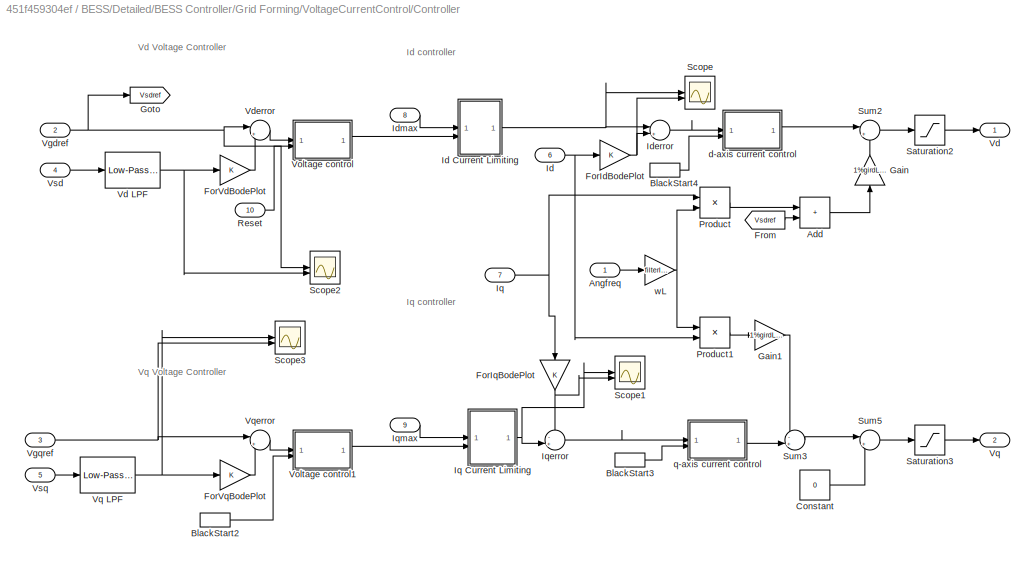
BLOCK [SubSystem] BESS/Detailed/BESS Controller/Grid Forming/VoltageCurrentControl/Controller
  PortSchema = {"entries":[{"content":{"sides":[{"content":{"connectorIds":["In1","In2","In3","In4","In5","In6","In7","In8","In9"]},"type":"ConnectorPlacement.EquallySpacedRectSide","uuid":"29d30ab3-0ae0-4ae6-aaee-46c6f5faca9c"},{"content":{"connectorIds":["Out1","Out2"],"side":"RIGHT"},"type":"ConnectorPlacement.EquallySpacedRectSide","uuid":"4918c3a7-9f8f-4af5-ac25-a0a0710917b2"},{"content":{"connectorIds":["I...<+301ch>
BLOCK [Sum] BESS/Detailed/BESS Controller/Grid Forming/VoltageCurrentControl/Controller/Add
  IconShape = rectangular
BLOCK [Inport] BESS/Detailed/BESS Controller/Grid Forming/VoltageCurrentControl/Controller/Angfreq
BLOCK [InportShadow] BESS/Detailed/BESS Controller/Grid Forming/VoltageCurrentControl/Controller/BlackStart2
  Port = 10
BLOCK [InportShadow] BESS/Detailed/BESS Controller/Grid Forming/VoltageCurrentControl/Controller/BlackStart3
  Port = 10
BLOCK [InportShadow] BESS/Detailed/BESS Controller/Grid Forming/VoltageCurrentControl/Controller/BlackStart4
  Port = 10
BLOCK [Constant] BESS/Detailed/BESS Controller/Grid Forming/VoltageCurrentControl/Controller/Constant
  SampleTime = currentControlTs
  Value = 0
BLOCK [Gain] BESS/Detailed/BESS Controller/Grid Forming/VoltageCurrentControl/Controller/ForIdBodePlot
BLOCK [Gain] BESS/Detailed/BESS Controller/Grid Forming/VoltageCurrentControl/Controller/ForIqBodePlot
  NameLocation = left
BLOCK [Gain] BESS/Detailed/BESS Controller/Grid Forming/VoltageCurrentControl/Controller/ForVdBodePlot
BLOCK [Gain] BESS/Detailed/BESS Controller/Grid Forming/VoltageCurrentControl/Controller/ForVqBodePlot
BLOCK [From] BESS/Detailed/BESS Controller/Grid Forming/VoltageCurrentControl/Controller/From
  GotoTag = Vsdref
BLOCK [Gain] BESS/Detailed/BESS Controller/Grid Forming/VoltageCurrentControl/Controller/Gain
  Gain = 1%girdLineVoltage*sqrt(2/3)/(dcBusVoltage/2)
  NameLocation = right
BLOCK [Gain] BESS/Detailed/BESS Controller/Grid Forming/VoltageCurrentControl/Controller/Gain1
  Gain = 1%girdLineVoltage*sqrt(2/3)/(dcBusVoltage/2)
BLOCK [Goto] BESS/Detailed/BESS Controller/Grid Forming/VoltageCurrentControl/Controller/Goto
  GotoTag = Vsdref
BLOCK [Inport] BESS/Detailed/BESS Controller/Grid Forming/VoltageCurrentControl/Controller/Id
  Port = 6
BLOCK [SubSystem] BESS/Detailed/BESS Controller/Grid Forming/VoltageCurrentControl/Controller/Id Current Limiting
BLOCK [Abs] BESS/Detailed/BESS Controller/Grid Forming/VoltageCurrentControl/Controller/Id Current Limiting/Abs
  SaturateOnIntegerOverflow = off
BLOCK [Inport] BESS/Detailed/BESS Controller/Grid Forming/VoltageCurrentControl/Controller/Id Current Limiting/Id
  Port = 2
BLOCK [Outport] BESS/Detailed/BESS Controller/Grid Forming/VoltageCurrentControl/Controller/Id Current Limiting/Idref
BLOCK [Inport] BESS/Detailed/BESS Controller/Grid Forming/VoltageCurrentControl/Controller/Id Current Limiting/Imax
BLOCK [Switch] BESS/Detailed/BESS Controller/Grid Forming/VoltageCurrentControl/Controller/Id Current Limiting/Switch
  Criteria = u2 > Threshold
  InputSameDT = off
  SaturateOnIntegerOverflow = off
BLOCK [Sum] BESS/Detailed/BESS Controller/Grid Forming/VoltageCurrentControl/Controller/Iderror
  Inputs = |+-
BLOCK [Inport] BESS/Detailed/BESS Controller/Grid Forming/VoltageCurrentControl/Controller/Idmax
  Port = 8
BLOCK [Inport] BESS/Detailed/BESS Controller/Grid Forming/VoltageCurrentControl/Controller/Iq
  Port = 7
BLOCK [SubSystem] BESS/Detailed/BESS Controller/Grid Forming/VoltageCurrentControl/Controller/Iq Current Limiting
BLOCK [Abs] BESS/Detailed/BESS Controller/Grid Forming/VoltageCurrentControl/Controller/Iq Current Limiting/Abs
  SaturateOnIntegerOverflow = off
BLOCK [Inport] BESS/Detailed/BESS Controller/Grid Forming/VoltageCurrentControl/Controller/Iq Current Limiting/Imax
BLOCK [Inport] BESS/Detailed/BESS Controller/Grid Forming/VoltageCurrentControl/Controller/Iq Current Limiting/Iq
  Port = 2
BLOCK [Outport] BESS/Detailed/BESS Controller/Grid Forming/VoltageCurrentControl/Controller/Iq Current Limiting/Iqref
BLOCK [Switch] BESS/Detailed/BESS Controller/Grid Forming/VoltageCurrentControl/Controller/Iq Current Limiting/Switch
  Criteria = u2 > Threshold
  InputSameDT = off
  SaturateOnIntegerOverflow = off
BLOCK [Sum] BESS/Detailed/BESS Controller/Grid Forming/VoltageCurrentControl/Controller/Iqerror
  Inputs = -+|
  NameLocation = top
BLOCK [Inport] BESS/Detailed/BESS Controller/Grid Forming/VoltageCurrentControl/Controller/Iqmax
  Port = 9
BLOCK [Product] BESS/Detailed/BESS Controller/Grid Forming/VoltageCurrentControl/Controller/Product
BLOCK [Product] BESS/Detailed/BESS Controller/Grid Forming/VoltageCurrentControl/Controller/Product1
BLOCK [Inport] BESS/Detailed/BESS Controller/Grid Forming/VoltageCurrentControl/Controller/Reset
  Port = 10
BLOCK [Saturate] BESS/Detailed/BESS Controller/Grid Forming/VoltageCurrentControl/Controller/Saturation2
  LowerLimit = -3
  UpperLimit = 4
BLOCK [Saturate] BESS/Detailed/BESS Controller/Grid Forming/VoltageCurrentControl/Controller/Saturation3
  LowerLimit = -3
  UpperLimit = 3
BLOCK [Scope] BESS/Detailed/BESS Controller/Grid Forming/VoltageCurrentControl/Controller/Scope
  ActiveDisplayYMaximum = 2.03721
  ActiveDisplayYMinimum = -0.33488
  Floating = off
  GraphicalSettings = {"GraphicalSettings":{"LegacySettings":true,"Style":{"Style":{"AxesColor":"[0 0 0]","ChannelNames":[""],"ColorOrder":"[1 0.909803921568627 0.392156862745098;0.149019607843137 0.549019607843137 0.866666666666667;0.96078431372549 0.466666666666667 0.16078431372549;0.286274509803922 0.858823529411765 0.250980392156863;0.752941176470588 0.36078431372549 0.984313725490196;0.423529411764706 0.9568627450...<+479ch>
  MultipleDisplayCache = [{"MaxYLimMag":2.03721,"MaxYLimReal":2.03721,"MinYLimMag":0,"MinYLimReal":-0.33488,"PlotAsMagnitudePhase":false,"ShowGrid":true,"ShowLegend":false,"Title":"%<SignalLabel>","YLabel":""}]
  NumInputPorts = 2
  WasSavedAsWebScope = on
BLOCK [Scope] BESS/Detailed/BESS Controller/Grid Forming/VoltageCurrentControl/Controller/Scope1
  Floating = off
  GraphicalSettings = {"GraphicalSettings":{"LegacySettings":true,"Style":{"Style":{"MinimizeControls":"false","PlotType":"Auto"}}}}
  NumInputPorts = 2
  WasSavedAsWebScope = on
BLOCK [Scope] BESS/Detailed/BESS Controller/Grid Forming/VoltageCurrentControl/Controller/Scope2
  ActiveDisplayYMaximum = 1.2716
  ActiveDisplayYMinimum = -0.14129
  Floating = off
  GraphicalSettings = {"GraphicalSettings":{"LegacySettings":true,"Style":{"Style":{"AxesColor":"[0 0 0]","ChannelNames":[""],"ColorOrder":"[1 0.909803921568627 0.392156862745098;0.149019607843137 0.549019607843137 0.866666666666667;0.96078431372549 0.466666666666667 0.16078431372549;0.286274509803922 0.858823529411765 0.250980392156863;0.752941176470588 0.36078431372549 0.984313725490196;0.423529411764706 0.9568627450...<+517ch>
  MultipleDisplayCache = [{"MaxYLimMag":1.2716,"MaxYLimReal":1.2716,"MinYLimMag":0,"MinYLimReal":-0.14129,"PlotAsMagnitudePhase":false,"ShowGrid":true,"ShowLegend":false,"Title":"%<SignalLabel>","YLabel":""}]
  NumInputPorts = 2
  WasSavedAsWebScope = on
BLOCK [Scope] BESS/Detailed/BESS Controller/Grid Forming/VoltageCurrentControl/Controller/Scope3
  Floating = off
  GraphicalSettings = {"GraphicalSettings":{"LegacySettings":true,"Style":{"Style":{"MinimizeControls":"false","PlotType":"Auto"}}}}
  NumInputPorts = 2
  WasSavedAsWebScope = on
BLOCK [Sum] BESS/Detailed/BESS Controller/Grid Forming/VoltageCurrentControl/Controller/Sum2
  Inputs = |++
BLOCK [Sum] BESS/Detailed/BESS Controller/Grid Forming/VoltageCurrentControl/Controller/Sum3
  Inputs = -+|
BLOCK [Sum] BESS/Detailed/BESS Controller/Grid Forming/VoltageCurrentControl/Controller/Sum5
  Inputs = |++
BLOCK [Outport] BESS/Detailed/BESS Controller/Grid Forming/VoltageCurrentControl/Controller/Vd
  VectorParamsAs1DForOutWhenUnconnected = off
BLOCK [Reference] BESS/Detailed/BESS Controller/Grid Forming/VoltageCurrentControl/Controller/Vd LPF  REF=eeGeneralControl/Low-Pass Filter
(Discrete or Continuous)
  SourceBlock = eeGeneralControl/Low-Pass Filter\n(Discrete or Continuous)
  SourceType = Low-Pass Filter (Discrete or Continuous)
BLOCK [Sum] BESS/Detailed/BESS Controller/Grid Forming/VoltageCurrentControl/Controller/Vderror
  Inputs = |+-
  NameLocation = top
BLOCK [Inport] BESS/Detailed/BESS Controller/Grid Forming/VoltageCurrentControl/Controller/Vgdref
  Port = 2
BLOCK [Inport] BESS/Detailed/BESS Controller/Grid Forming/VoltageCurrentControl/Controller/Vgqref
  Port = 3
BLOCK [SubSystem] BESS/Detailed/BESS Controller/Grid Forming/VoltageCurrentControl/Controller/Voltage control
BLOCK [DiscreteIntegrator] BESS/Detailed/BESS Controller/Grid Forming/VoltageCurrentControl/Controller/Voltage control/Discrete-Time Integrator
  ExternalReset = level
  ICPrevOutput = DiscIntNeverNeededParam
  ICPrevScaledInput = DiscIntNeverNeededParam
  InitialConditionSetting = Auto
  IntegratorMethod = Integration: Backward Euler
  LimitOutput = on
  LowerSaturationLimit = VdMinCt
  SampleTime = voltControlTs
  UpperSaturationLimit = VdMaxCt
BLOCK [Gain] BESS/Detailed/BESS Controller/Grid Forming/VoltageCurrentControl/Controller/Voltage control/Ki
  Gain = VdIGain
BLOCK [Gain] BESS/Detailed/BESS Controller/Grid Forming/VoltageCurrentControl/Controller/Voltage control/Kp
  Gain = vdPGain
BLOCK [Saturate] BESS/Detailed/BESS Controller/Grid Forming/VoltageCurrentControl/Controller/Voltage control/Limit
  LowerLimit = VdMinCt
  UpperLimit = VdMaxCt
BLOCK [Scope] BESS/Detailed/BESS Controller/Grid Forming/VoltageCurrentControl/Controller/Voltage control/Scope
  ActiveDisplayYMaximum = 11.36654
  ActiveDisplayYMinimum = -2.29888
  DataLoggingVariableName = ScopeData7
  Floating = off
  GraphicalSettings = {"GraphicalSettings":{"LegacySettings":true,"Style":{"Style":{"AxesColor":"[0 0 0]","ChannelNames":["",""],"ColorOrder":"[1 0.909803921568627 0.392156862745098;0.149019607843137 0.549019607843137 0.866666666666667;0.96078431372549 0.466666666666667 0.16078431372549;0.286274509803922 0.858823529411765 0.250980392156863;0.752941176470588 0.36078431372549 0.984313725490196;0.423529411764706 0.9568627...<+532ch>
  LayoutDimensionsString = [2 1]
  MultipleDisplayCache = [{"MaxYLimMag":11.36654,"MaxYLimReal":11.36654,"MinYLimMag":0,"MinYLimReal":-2.29888,"PlotAsMagnitudePhase":false,"ShowGrid":true,"ShowLegend":false,"Title":"%<SignalLabel>","YLabel":""},{"MaxYLimMag":1124.99938,"MaxYLimReal":2.02438,"MinYLimMag":0,"MinYLimReal":-0.21937,"PlotAsMagnitudePhase":false,"ShowGrid":true,"ShowLegend":false,"Title":"%<SignalLabel>","YLabel":""}]
  NumInputPorts = 2
  WasSavedAsWebScope = on
BLOCK [Scope] BESS/Detailed/BESS Controller/Grid Forming/VoltageCurrentControl/Controller/Voltage control/Scope1
  ActiveDisplayYMaximum = 1.13665
  ActiveDisplayYMinimum = -0.22989
  DataLoggingVariableName = ScopeData8
  Floating = off
  MultipleDisplayCache = [{"MaxYLimMag":1.13665,"MaxYLimReal":1.13665,"MinYLimMag":0,"MinYLimReal":-0.22989,"PlotAsMagnitudePhase":false,"ShowGrid":true,"ShowLegend":false,"Title":"%<SignalLabel>","YLabel":""}]
  NumInputPorts = 1
  WasSavedAsWebScope = on
BLOCK [Sum] BESS/Detailed/BESS Controller/Grid Forming/VoltageCurrentControl/Controller/Voltage control/Sum7
  Inputs = |++
BLOCK [Inport] BESS/Detailed/BESS Controller/Grid Forming/VoltageCurrentControl/Controller/Voltage control/e
BLOCK [Inport] BESS/Detailed/BESS Controller/Grid Forming/VoltageCurrentControl/Controller/Voltage control/resetBlackStart
  Port = 2
BLOCK [Outport] BESS/Detailed/BESS Controller/Grid Forming/VoltageCurrentControl/Controller/Voltage control/u
  VectorParamsAs1DForOutWhenUnconnected = off
BLOCK [SubSystem] BESS/Detailed/BESS Controller/Grid Forming/VoltageCurrentControl/Controller/Voltage control1
BLOCK [DiscreteIntegrator] BESS/Detailed/BESS Controller/Grid Forming/VoltageCurrentControl/Controller/Voltage control1/Discrete-Time Integrator
  ExternalReset = level
  ICPrevOutput = DiscIntNeverNeededParam
  ICPrevScaledInput = DiscIntNeverNeededParam
  InitialConditionSetting = Auto
  IntegratorMethod = Integration: Backward Euler
  LimitOutput = on
  LowerSaturationLimit = VqMinCt
  SampleTime = voltControlTs
  UpperSaturationLimit = VqMaxCt
BLOCK [Gain] BESS/Detailed/BESS Controller/Grid Forming/VoltageCurrentControl/Controller/Voltage control1/Ki
  Gain = VqIGain
BLOCK [Gain] BESS/Detailed/BESS Controller/Grid Forming/VoltageCurrentControl/Controller/Voltage control1/Kp
  Gain = VqPGain
BLOCK [Saturate] BESS/Detailed/BESS Controller/Grid Forming/VoltageCurrentControl/Controller/Voltage control1/Limit
  LowerLimit = VqMinCt
  UpperLimit = VqMaxCt
BLOCK [Sum] BESS/Detailed/BESS Controller/Grid Forming/VoltageCurrentControl/Controller/Voltage control1/Sum7
  Inputs = |++
BLOCK [Inport] BESS/Detailed/BESS Controller/Grid Forming/VoltageCurrentControl/Controller/Voltage control1/e
BLOCK [Inport] BESS/Detailed/BESS Controller/Grid Forming/VoltageCurrentControl/Controller/Voltage control1/resetBlackStart
  Port = 2
BLOCK [Outport] BESS/Detailed/BESS Controller/Grid Forming/VoltageCurrentControl/Controller/Voltage control1/u
  VectorParamsAs1DForOutWhenUnconnected = off
BLOCK [Outport] BESS/Detailed/BESS Controller/Grid Forming/VoltageCurrentControl/Controller/Vq
  Port = 2
  VectorParamsAs1DForOutWhenUnconnected = off
BLOCK [Reference] BESS/Detailed/BESS Controller/Grid Forming/VoltageCurrentControl/Controller/Vq LPF  REF=eeGeneralControl/Low-Pass Filter
(Discrete or Continuous)
  SourceBlock = eeGeneralControl/Low-Pass Filter\n(Discrete or Continuous)
  SourceType = Low-Pass Filter (Discrete or Continuous)
BLOCK [Sum] BESS/Detailed/BESS Controller/Grid Forming/VoltageCurrentControl/Controller/Vqerror
  Inputs = |+-
BLOCK [Inport] BESS/Detailed/BESS Controller/Grid Forming/VoltageCurrentControl/Controller/Vsd
  Port = 4
BLOCK [Inport] BESS/Detailed/BESS Controller/Grid Forming/VoltageCurrentControl/Controller/Vsq
  Port = 5
BLOCK [SubSystem] BESS/Detailed/BESS Controller/Grid Forming/VoltageCurrentControl/Controller/d-axis current control
BLOCK [DiscreteIntegrator] BESS/Detailed/BESS Controller/Grid Forming/VoltageCurrentControl/Controller/d-axis current control/Discrete-Time Integrator
  ExternalReset = level
  ICPrevOutput = DiscIntNeverNeededParam
  ICPrevScaledInput = DiscIntNeverNeededParam
  InitialConditionSetting = Auto
  IntegratorMethod = Integration: Backward Euler
  LimitOutput = on
  LowerSaturationLimit = -4
  SampleTime = currentControlTs
  UpperSaturationLimit = 4
BLOCK [Gain] BESS/Detailed/BESS Controller/Grid Forming/VoltageCurrentControl/Controller/d-axis current control/Ki
  Gain = IdIGain
BLOCK [Gain] BESS/Detailed/BESS Controller/Grid Forming/VoltageCurrentControl/Controller/d-axis current control/Kp
  Gain = IdPGain
BLOCK [Saturate] BESS/Detailed/BESS Controller/Grid Forming/VoltageCurrentControl/Controller/d-axis current control/Limit
  LowerLimit = -4
  UpperLimit = 4
BLOCK [Sum] BESS/Detailed/BESS Controller/Grid Forming/VoltageCurrentControl/Controller/d-axis current control/Sum7
  Inputs = |++
BLOCK [Inport] BESS/Detailed/BESS Controller/Grid Forming/VoltageCurrentControl/Controller/d-axis current control/e
BLOCK [Inport] BESS/Detailed/BESS Controller/Grid Forming/VoltageCurrentControl/Controller/d-axis current control/resetBlackStart
  Port = 2
BLOCK [Outport] BESS/Detailed/BESS Controller/Grid Forming/VoltageCurrentControl/Controller/d-axis current control/u
  VectorParamsAs1DForOutWhenUnconnected = off
BLOCK [SubSystem] BESS/Detailed/BESS Controller/Grid Forming/VoltageCurrentControl/Controller/q-axis current control
BLOCK [DiscreteIntegrator] BESS/Detailed/BESS Controller/Grid Forming/VoltageCurrentControl/Controller/q-axis current control/Discrete-Time Integrator
  ExternalReset = level
  ICPrevOutput = DiscIntNeverNeededParam
  ICPrevScaledInput = DiscIntNeverNeededParam
  InitialConditionSetting = Auto
  IntegratorMethod = Integration: Backward Euler
  LimitOutput = on
  LowerSaturationLimit = -3
  SampleTime = currentControlTs
  UpperSaturationLimit = 3
BLOCK [Gain] BESS/Detailed/BESS Controller/Grid Forming/VoltageCurrentControl/Controller/q-axis current control/Ki
  Gain = IqIGain
BLOCK [Gain] BESS/Detailed/BESS Controller/Grid Forming/VoltageCurrentControl/Controller/q-axis current control/Kp
  Gain = IqPGain
BLOCK [Saturate] BESS/Detailed/BESS Controller/Grid Forming/VoltageCurrentControl/Controller/q-axis current control/Limit
  LowerLimit = -3
  UpperLimit = 3
BLOCK [Sum] BESS/Detailed/BESS Controller/Grid Forming/VoltageCurrentControl/Controller/q-axis current control/Sum7
  Inputs = |++
BLOCK [Inport] BESS/Detailed/BESS Controller/Grid Forming/VoltageCurrentControl/Controller/q-axis current control/e
BLOCK [Inport] BESS/Detailed/BESS Controller/Grid Forming/VoltageCurrentControl/Controller/q-axis current control/resetBlackStart
  Port = 2
BLOCK [Outport] BESS/Detailed/BESS Controller/Grid Forming/VoltageCurrentControl/Controller/q-axis current control/u
  VectorParamsAs1DForOutWhenUnconnected = off
BLOCK [Gain] BESS/Detailed/BESS Controller/Grid Forming/VoltageCurrentControl/Controller/wL
  Gain = filterInductance*power/(girdLineVoltage^2)
BLOCK [Inport] BESS/Detailed/BESS Controller/Grid Forming/VoltageCurrentControl/In Bus Element
BLOCK [Inport] BESS/Detailed/BESS Controller/Grid Forming/VoltageCurrentControl/In Bus Element1
BLOCK [Inport] BESS/Detailed/BESS Controller/Grid Forming/VoltageCurrentControl/In Bus Element2
  Port = 4
BLOCK [Inport] BESS/Detailed/BESS Controller/Grid Forming/VoltageCurrentControl/In Bus Element3
  Port = 4
BLOCK [Inport] BESS/Detailed/BESS Controller/Grid Forming/VoltageCurrentControl/In Bus Element4
  Port = 4
BLOCK [Inport] BESS/Detailed/BESS Controller/Grid Forming/VoltageCurrentControl/In Bus Element5
  Port = 4
BLOCK [Inport] BESS/Detailed/BESS Controller/Grid Forming/VoltageCurrentControl/In Bus Element6
BLOCK [Inport] BESS/Detailed/BESS Controller/Grid Forming/VoltageCurrentControl/In Bus Element7
BLOCK [SubSystem] BESS/Detailed/BESS Controller/Grid Forming/VoltageCurrentControl/Modulation Signal
BLOCK [Inport] BESS/Detailed/BESS Controller/Grid Forming/VoltageCurrentControl/Modulation Signal/Angle
  NameLocation = left
  Port = 3
BLOCK [Constant] BESS/Detailed/BESS Controller/Grid Forming/VoltageCurrentControl/Modulation Signal/Constant
  Value = 0
BLOCK [Reference] BESS/Detailed/BESS Controller/Grid Forming/VoltageCurrentControl/Modulation Signal/Inverse Park Transform  REF=eeTransforms/Inverse
Park Transform
  SourceBlock = eeTransforms/Inverse\nPark Transform
  SourceType = Inverse Park Transform
BLOCK [Mux] BESS/Detailed/BESS Controller/Grid Forming/VoltageCurrentControl/Modulation Signal/Mux1
  DisplayOption = bar
  Inputs = 3
BLOCK [Saturate] BESS/Detailed/BESS Controller/Grid Forming/VoltageCurrentControl/Modulation Signal/Saturation2
  LowerLimit = -1
  UpperLimit = 1
BLOCK [Scope] BESS/Detailed/BESS Controller/Grid Forming/VoltageCurrentControl/Modulation Signal/Scope
  DataLoggingVariableName = ScopeData9
  Floating = off
  GraphicalSettings = {"GraphicalSettings":{"LegacySettings":true,"Style":{"Style":{"CurrentConfiguration":"extmgr.ConfigurationSet","MinimizeControls":"false","PlotType":"Auto","Version":"2024b"}}}}
  NumInputPorts = 2
  WasSavedAsWebScope = on
BLOCK [Scope] BESS/Detailed/BESS Controller/Grid Forming/VoltageCurrentControl/Modulation Signal/Scope1
  Floating = off
  GraphicalSettings = {"GraphicalSettings":{"LegacySettings":true,"Style":{"Style":{"MinimizeControls":"false","PlotType":"Auto"}}}}
  NumInputPorts = 1
  WasSavedAsWebScope = on
BLOCK [Inport] BESS/Detailed/BESS Controller/Grid Forming/VoltageCurrentControl/Modulation Signal/Vd
  NameLocation = left
BLOCK [Inport] BESS/Detailed/BESS Controller/Grid Forming/VoltageCurrentControl/Modulation Signal/Vq
  NameLocation = left
  Port = 2
BLOCK [Outport] BESS/Detailed/BESS Controller/Grid Forming/VoltageCurrentControl/Modulation Signal/mabc
  VectorParamsAs1DForOutWhenUnconnected = off
BLOCK [Inport] BESS/Detailed/BESS Controller/Grid Forming/VoltageCurrentControl/Reset
  Port = 3
BLOCK [Outport] BESS/Detailed/BESS Controller/Grid Forming/VoltageCurrentControl/mabc
BLOCK [Outport] BESS/Detailed/BESS Controller/Grid Forming/mabc
BLOCK [Inport] BESS/Detailed/BESS Controller/Mode
  Port = 5
BLOCK [Inport] BESS/Detailed/BESS Controller/PRef
  Port = 3
BLOCK [Inport] BESS/Detailed/BESS Controller/QRef
  Port = 4
BLOCK [Inport] BESS/Detailed/BESS Controller/Reset
  Port = 6
BLOCK [Inport] BESS/Detailed/BESS Controller/VIBus
  Port = 7
BLOCK [Inport] BESS/Detailed/BESS Controller/VRef
BLOCK [Outport] BESS/Detailed/BESS Controller/mabc
BLOCK [SubSystem] BESS/Detailed/BESS Plant
  CopyFcn = set_param(gcbh,'LinkStatus','none');
BLOCK [Reference] BESS/Detailed/BESS Plant/Battery  REF=batteryecm_lib/Battery
  NameLocation = right
  SourceBlock = batteryecm_lib/Battery
  SourceType = Battery
BLOCK [SubSystem] BESS/Detailed/BESS Plant/Converter
  CloseFcn = %solar.mask.restoreConverterLink
  InitFcn = %solar.mask.restoreConverterLink(gcb);
  LabelModeActiveChoice = Average
  PreSaveFcn = %solar.mask.restoreConverterLink
  Variant = on
  VariantControlMode = label
BLOCK [PMIOPort] BESS/Detailed/BESS Plant/Converter/+
  Side = Left
BLOCK [PMIOPort] BESS/Detailed/BESS Plant/Converter/-
  Port = 2
  Side = Left
BLOCK [SubSystem] BESS/Detailed/BESS Plant/Converter/Average
  VariantControl = Average
BLOCK [PMIOPort] BESS/Detailed/BESS Plant/Converter/Average/+
  Side = Left
BLOCK [PMIOPort] BESS/Detailed/BESS Plant/Converter/Average/-
  Port = 2
  Side = Left
BLOCK [Reference] BESS/Detailed/BESS Plant/Converter/Average/Converter  REF=ee_lib/Semiconductors &
Converters/Converters/Average-Value
Voltage Source
Converter
(Three-Phase)
  SourceBlock = ee_lib/Semiconductors &\nConverters/Converters/Average-Value\nVoltage Source\nConverter\n(Three-Phase)
  SourceType = Average-Value\nVoltage Source\nConverter\n(Three-Phase)
BLOCK [Reference] BESS/Detailed/BESS Plant/Converter/Average/Simulink-PS Converter  REF=nesl_utility/Simulink-PS
Converter
  NameLocation = top
  SourceBlock = nesl_utility/Simulink-PS\nConverter
  SourceType = Simulink-PS\nConverter
BLOCK [Inport] BESS/Detailed/BESS Plant/Converter/Average/mabc
  NameLocation = top
BLOCK [PMIOPort] BESS/Detailed/BESS Plant/Converter/Average/~
  Port = 3
  Side = Right
BLOCK [SubSystem] BESS/Detailed/BESS Plant/Converter/Switching
  VariantControl = Switching
BLOCK [PMIOPort] BESS/Detailed/BESS Plant/Converter/Switching/+
  Side = Left
BLOCK [PMIOPort] BESS/Detailed/BESS Plant/Converter/Switching/-
  Port = 3
  Side = Left
BLOCK [Sum] BESS/Detailed/BESS Plant/Converter/Switching/Add
  IconShape = rectangular
BLOCK [Constant] BESS/Detailed/BESS Plant/Converter/Switching/Constant1
BLOCK [Reference] BESS/Detailed/BESS Plant/Converter/Switching/Converter  REF=ee_lib/Semiconductors &
Converters/Converters/Converter
(Three-Phase)
  NameLocation = top
  SourceBlock = ee_lib/Semiconductors &\nConverters/Converters/Converter\n(Three-Phase)
  SourceType = Converter\n(Three-Phase)
BLOCK [Demux] BESS/Detailed/BESS Plant/Converter/Switching/Demux
  Outputs = 3
BLOCK [Demux] BESS/Detailed/BESS Plant/Converter/Switching/Demux1
  Outputs = 3
BLOCK [From] BESS/Detailed/BESS Plant/Converter/Switching/From
  GotoTag = CL
  NameLocation = top
BLOCK [From] BESS/Detailed/BESS Plant/Converter/Switching/From1
  GotoTag = CH
  NameLocation = top
BLOCK [From] BESS/Detailed/BESS Plant/Converter/Switching/From2
  GotoTag = BL
  NameLocation = top
BLOCK [From] BESS/Detailed/BESS Plant/Converter/Switching/From3
  GotoTag = BH
  NameLocation = top
BLOCK [From] BESS/Detailed/BESS Plant/Converter/Switching/From4
  GotoTag = AL
  NameLocation = top
BLOCK [From] BESS/Detailed/BESS Plant/Converter/Switching/From5
  GotoTag = AH
  NameLocation = top
BLOCK [Gain] BESS/Detailed/BESS Plant/Converter/Switching/Gain
  Gain = 5
BLOCK [Gain] BESS/Detailed/BESS Plant/Converter/Switching/Gain1
  Gain = 0.5
BLOCK [Goto] BESS/Detailed/BESS Plant/Converter/Switching/Goto
  GotoTag = AH
BLOCK [Goto] BESS/Detailed/BESS Plant/Converter/Switching/Goto1
  GotoTag = BH
BLOCK [Goto] BESS/Detailed/BESS Plant/Converter/Switching/Goto2
  GotoTag = CH
BLOCK [Goto] BESS/Detailed/BESS Plant/Converter/Switching/Goto3
  GotoTag = AL
BLOCK [Goto] BESS/Detailed/BESS Plant/Converter/Switching/Goto4
  GotoTag = BL
BLOCK [Goto] BESS/Detailed/BESS Plant/Converter/Switching/Goto5
  GotoTag = CL
BLOCK [Reference] BESS/Detailed/BESS Plant/Converter/Switching/PWM Generator  REF=eePwmGenerator/PWM Generator
  SourceBlock = eePwmGenerator/PWM Generator
  SourceType = PWM Generator
BLOCK [SubSystem] BESS/Detailed/BESS Plant/Converter/Switching/Pulse Generation
BLOCK [Constant] BESS/Detailed/BESS Plant/Converter/Switching/Pulse Generation/Constant
  Value = 5
BLOCK [Inport] BESS/Detailed/BESS Plant/Converter/Switching/Pulse Generation/G
BLOCK [Outport] BESS/Detailed/BESS Plant/Converter/Switching/Pulse Generation/G1
  VectorParamsAs1DForOutWhenUnconnected = off
BLOCK [Outport] BESS/Detailed/BESS Plant/Converter/Switching/Pulse Generation/G2
  Port = 2
  VectorParamsAs1DForOutWhenUnconnected = off
BLOCK [Sum] BESS/Detailed/BESS Plant/Converter/Switching/Pulse Generation/Subtract
  IconShape = rectangular
  Inputs = -+
BLOCK [RateTransition] BESS/Detailed/BESS Plant/Converter/Switching/Rate Transition1
  OutPortSampleTime = 1/(10*fSw*1000)
BLOCK [Reference] BESS/Detailed/BESS Plant/Converter/Switching/Simulink-PS Converter1  REF=nesl_utility/Simulink-PS
Converter
  NameLocation = top
  SourceBlock = nesl_utility/Simulink-PS\nConverter
  SourceType = Simulink-PS\nConverter
BLOCK [Reference] BESS/Detailed/BESS Plant/Converter/Switching/Simulink-PS Converter2  REF=nesl_utility/Simulink-PS
Converter
  NameLocation = top
  SourceBlock = nesl_utility/Simulink-PS\nConverter
  SourceType = Simulink-PS\nConverter
BLOCK [Reference] BESS/Detailed/BESS Plant/Converter/Switching/Simulink-PS Converter3  REF=nesl_utility/Simulink-PS
Converter
  NameLocation = top
  SourceBlock = nesl_utility/Simulink-PS\nConverter
  SourceType = Simulink-PS\nConverter
BLOCK [Reference] BESS/Detailed/BESS Plant/Converter/Switching/Simulink-PS Converter4  REF=nesl_utility/Simulink-PS
Converter
  NameLocation = top
  SourceBlock = nesl_utility/Simulink-PS\nConverter
  SourceType = Simulink-PS\nConverter
BLOCK [Reference] BESS/Detailed/BESS Plant/Converter/Switching/Simulink-PS Converter5  REF=nesl_utility/Simulink-PS
Converter
  NameLocation = top
  SourceBlock = nesl_utility/Simulink-PS\nConverter
  SourceType = Simulink-PS\nConverter
BLOCK [Reference] BESS/Detailed/BESS Plant/Converter/Switching/Simulink-PS Converter6  REF=nesl_utility/Simulink-PS
Converter
  NameLocation = top
  SourceBlock = nesl_utility/Simulink-PS\nConverter
  SourceType = Simulink-PS\nConverter
BLOCK [Reference] BESS/Detailed/BESS Plant/Converter/Switching/Six-Pulse Gate Multiplexer  REF=ee_lib/Semiconductors &
Converters/Converters/Six-Pulse Gate
Multiplexer
  NameLocation = top
  SourceBlock = ee_lib/Semiconductors &\nConverters/Converters/Six-Pulse Gate\nMultiplexer
  SourceType = Six-Pulse Gate\nMultiplexer
BLOCK [Inport] BESS/Detailed/BESS Plant/Converter/Switching/mabc
BLOCK [PMIOPort] BESS/Detailed/BESS Plant/Converter/Switching/~
  Port = 2
  Side = Right
BLOCK [Inport] BESS/Detailed/BESS Plant/Converter/mabc
BLOCK [PMIOPort] BESS/Detailed/BESS Plant/Converter/~
  NameLocation = top
  Port = 3
  Side = Right
BLOCK [Reference] BESS/Detailed/BESS Plant/Electrical Reference1  REF=fl_lib/Electrical/Electrical Elements/Electrical Reference
  NameLocation = right
  SourceBlock = fl_lib/Electrical/Electrical Elements/Electrical Reference
  SourceType = Electrical Reference
BLOCK [Reference] BESS/Detailed/BESS Plant/PS-Simulink Converter  REF=nesl_utility/PS-Simulink
Converter
  SourceBlock = nesl_utility/PS-Simulink\nConverter
  SourceType = PS-Simulink\nConverter
BLOCK [Outport] BESS/Detailed/BESS Plant/SOC
BLOCK [Inport] BESS/Detailed/BESS Plant/mabc
BLOCK [PMIOPort] BESS/Detailed/BESS Plant/~
  NameLocation = top
  Side = Right
BLOCK [Inport] BESS/Detailed/FRef
  Port = 2
BLOCK [SubSystem] BESS/Detailed/Filter & Measurements
BLOCK [Outport] BESS/Detailed/Filter & Measurements/BusElementOut
  Port = 2
BLOCK [Reference] BESS/Detailed/Filter & Measurements/Current and Voltage Sensor (Three-Phase)  REF=ee_lib/Sensors &
Transducers/Current and Voltage
Sensor (Three-Phase)
  SourceBlock = ee_lib/Sensors &\nTransducers/Current and Voltage\nSensor (Three-Phase)
  SourceType = Current and Voltage\nSensor (Three-Phase)
BLOCK [Gain] BESS/Detailed/Filter & Measurements/Gain
  Gain = 1/(plantRating*1000)
BLOCK [Gain] BESS/Detailed/Filter & Measurements/Gain1
  Gain = 1/(plantRating*1000)
BLOCK [PMIOPort] BESS/Detailed/Filter & Measurements/In
  Side = Left
BLOCK [Reference] BESS/Detailed/Filter & Measurements/Low-Pass Filter (Discrete or Continuous)  REF=eeGeneralControl/Low-Pass Filter
(Discrete or Continuous)
  SourceBlock = eeGeneralControl/Low-Pass Filter\n(Discrete or Continuous)
  SourceType = Low-Pass Filter (Discrete or Continuous)
BLOCK [Reference] BESS/Detailed/Filter & Measurements/Low-Pass Filter (Discrete or Continuous)1  REF=eeGeneralControl/Low-Pass Filter
(Discrete or Continuous)
  SourceBlock = eeGeneralControl/Low-Pass Filter\n(Discrete or Continuous)
  SourceType = Low-Pass Filter (Discrete or Continuous)
BLOCK [Outport] BESS/Detailed/Filter & Measurements/Out Bus Element
  Port = 2
BLOCK [Outport] BESS/Detailed/Filter & Measurements/Out Bus Element1
  Port = 2
BLOCK [Outport] BESS/Detailed/Filter & Measurements/Out Bus Element2
  Port = 2
BLOCK [Outport] BESS/Detailed/Filter & Measurements/Out Bus Element3
  Port = 2
BLOCK [SubSystem] BESS/Detailed/Filter & Measurements/PLL & Measurements
  NameLocation = top
BLOCK [Inport] BESS/Detailed/Filter & Measurements/PLL & Measurements/I
  Port = 2
BLOCK [SubSystem] BESS/Detailed/Filter & Measurements/PLL & Measurements/Measurement1
BLOCK [Reference] BESS/Detailed/Filter & Measurements/PLL & Measurements/Measurement1/Lead-Lag (Discrete or Continuous)  REF=eeGeneralControl/Lead-Lag
(Discrete or Continuous)
  SourceBlock = eeGeneralControl/Lead-Lag\n(Discrete or Continuous)
  SourceType = Lead-Lag (Discrete or Continuous)
BLOCK [Outport] BESS/Detailed/Filter & Measurements/PLL & Measurements/Measurement1/Vg
  IconDisplay = Signal name
BLOCK [Inport] BESS/Detailed/Filter & Measurements/PLL & Measurements/Measurement1/u
BLOCK [SubSystem] BESS/Detailed/Filter & Measurements/PLL & Measurements/Measurement2
BLOCK [Reference] BESS/Detailed/Filter & Measurements/PLL & Measurements/Measurement2/Lead-Lag (Discrete or Continuous)  REF=eeGeneralControl/Lead-Lag
(Discrete or Continuous)
  SourceBlock = eeGeneralControl/Lead-Lag\n(Discrete or Continuous)
  SourceType = Lead-Lag (Discrete or Continuous)
BLOCK [Outport] BESS/Detailed/Filter & Measurements/PLL & Measurements/Measurement2/Vg
  IconDisplay = Signal name
BLOCK [Inport] BESS/Detailed/Filter & Measurements/PLL & Measurements/Measurement2/u
BLOCK [Outport] BESS/Detailed/Filter & Measurements/PLL & Measurements/Out Bus Element
BLOCK [Outport] BESS/Detailed/Filter & Measurements/PLL & Measurements/Out Bus Element1
BLOCK [Outport] BESS/Detailed/Filter & Measurements/PLL & Measurements/Out Bus Element2
BLOCK [Outport] BESS/Detailed/Filter & Measurements/PLL & Measurements/Out Bus Element3
BLOCK [Outport] BESS/Detailed/Filter & Measurements/PLL & Measurements/Out Bus Element4
BLOCK [Outport] BESS/Detailed/Filter & Measurements/PLL & Measurements/Out Bus Element5
BLOCK [Outport] BESS/Detailed/Filter & Measurements/PLL & Measurements/Out Bus Element6
BLOCK [Outport] BESS/Detailed/Filter & Measurements/PLL & Measurements/Out Bus Element7
BLOCK [Outport] BESS/Detailed/Filter & Measurements/PLL & Measurements/Out Bus Element8
BLOCK [SubSystem] BESS/Detailed/Filter & Measurements/PLL & Measurements/Subsystem
BLOCK [Demux] BESS/Detailed/Filter & Measurements/PLL & Measurements/Subsystem/Demux
  Outputs = 3
BLOCK [Demux] BESS/Detailed/Filter & Measurements/PLL & Measurements/Subsystem/Demux1
  Outputs = 3
BLOCK [Inport] BESS/Detailed/Filter & Measurements/PLL & Measurements/Subsystem/Iabc
  Port = 2
BLOCK [Outport] BESS/Detailed/Filter & Measurements/PLL & Measurements/Subsystem/Id1
  NameLocation = top
  Port = 6
BLOCK [Outport] BESS/Detailed/Filter & Measurements/PLL & Measurements/Subsystem/Iq1
  NameLocation = top
  Port = 7
BLOCK [Reference] BESS/Detailed/Filter & Measurements/PLL & Measurements/Subsystem/Park Transform  REF=eeTransforms/Park Transform
  SourceBlock = eeTransforms/Park Transform
  SourceType = Park Transform
BLOCK [Reference] BESS/Detailed/Filter & Measurements/PLL & Measurements/Subsystem/Park Transform1  REF=eeTransforms/Park Transform
  SourceBlock = eeTransforms/Park Transform
  SourceType = Park Transform
BLOCK [Scope] BESS/Detailed/Filter & Measurements/PLL & Measurements/Subsystem/Scope
  ActiveDisplayYMaximum = 1.02793
  ActiveDisplayYMinimum = 0.95416
  DataLoggingVariableName = ScopeData5
  Floating = off
  GraphicalSettings = {"Style":{"BackgroundColor":[0.12941176470588237,0.12941176470588237,0.12941176470588237],"AxesColor":[0.07058823529411765,0.07058823529411765,0.07058823529411765],"LabelsColor":[0.8509803921568627,0.8509803921568627,0.8509803921568627],"PreserveColors":false,"Visible":[true,true],"LineStyle":["-","-"],"LineWidth":[1.5,1.5],"BarWidth":[0.9,0.9],"LineColor":["auto","auto"],"LineFaceAlpha":[1,1],"Li...<+2339ch>
  LayoutDimensionsString = [2 1]
  MultipleDisplayCache = [{"MaxYLimMag":1.02793,"MaxYLimReal":1.02793,"MinYLimMag":0.95416,"MinYLimReal":0.95416,"PlotAsMagnitudePhase":false,"ShowGrid":true,"ShowLegend":false,"Title":"%<SignalLabel>","YLabel":""},{"MaxYLimMag":1.36074,"MaxYLimReal":0.03496,"MinYLimMag":0,"MinYLimReal":-0.0351,"PlotAsMagnitudePhase":false,"ShowGrid":true,"ShowLegend":false,"Title":"%<SignalLabel>","YLabel":""}]
  NumInputPorts = 2
  ScopeFrameLocation = window
  WasSavedAsWebScope = on
  WindowPosition = [360.000000,150.000000,560.000000,420.000000,]
BLOCK [Scope] BESS/Detailed/Filter & Measurements/PLL & Measurements/Subsystem/Scope1
  ActiveDisplayYMaximum = -1.7770998587100291
  ActiveDisplayYMinimum = -2.7903298017751648
  DataLoggingVariableName = ScopeData10
  Floating = off
  GraphicalSettings = {"Style":{"BackgroundColor":[0.12941176470588237,0.12941176470588237,0.12941176470588237],"AxesColor":[0.07058823529411765,0.07058823529411765,0.07058823529411765],"LabelsColor":[0.8509803921568627,0.8509803921568627,0.8509803921568627],"PreserveColors":false,"Visible":[true,true],"LineStyle":["-","-"],"LineWidth":[1.5,1.5],"BarWidth":[0.9,0.9],"LineColor":["auto","auto"],"LineFaceAlpha":[1,1],"Li...<+2343ch>
  LayoutDimensionsString = [2 1]
  MultipleDisplayCache = [{"MaxYLimMag":2.7903298017751648,"MaxYLimReal":-1.7770998587100291,"MinYLimMag":0,"MinYLimReal":-2.7903298017751648,"PlotAsMagnitudePhase":false,"ShowGrid":true,"ShowLegend":false,"Title":"%<SignalLabel>","YLabel":""},{"MaxYLimMag":1.4542994353410252,"MaxYLimReal":1.4542994353410252,"MinYLimMag":0,"MinYLimReal":-0.16158882607552871,"PlotAsMagnitudePhase":false,"ShowGrid":true,"ShowLegend":false,"...<+37ch>
  NumInputPorts = 2
  ScopeFrameLocation = window
  WasSavedAsWebScope = on
  WindowPosition = [360.000000,150.000000,560.000000,420.000000,]
BLOCK [Reference] BESS/Detailed/Filter & Measurements/PLL & Measurements/Subsystem/Sinusoidal Measurement (PLL, Three-Phase)  REF=eeSinusoidalMeasurementV2/Sinusoidal Measurement
(PLL, Three-Phase)
  SourceBlock = eeSinusoidalMeasurementV2/Sinusoidal Measurement\n(PLL, Three-Phase)
  SourceType = Sinusoidal Measurement (PLL, Three-Phase)
BLOCK [Terminator] BESS/Detailed/Filter & Measurements/PLL & Measurements/Subsystem/Terminator
BLOCK [Terminator] BESS/Detailed/Filter & Measurements/PLL & Measurements/Subsystem/Terminator1
BLOCK [Inport] BESS/Detailed/Filter & Measurements/PLL & Measurements/Subsystem/Vabc
BLOCK [Outport] BESS/Detailed/Filter & Measurements/PLL & Measurements/Subsystem/Vd
  NameLocation = top
  Port = 4
BLOCK [Outport] BESS/Detailed/Filter & Measurements/PLL & Measurements/Subsystem/Vq
  NameLocation = top
  Port = 5
BLOCK [Outport] BESS/Detailed/Filter & Measurements/PLL & Measurements/Subsystem/angle
  Port = 3
BLOCK [Outport] BESS/Detailed/Filter & Measurements/PLL & Measurements/Subsystem/freq
  NameLocation = top
  Port = 2
BLOCK [Outport] BESS/Detailed/Filter & Measurements/PLL & Measurements/Subsystem/mag
BLOCK [Inport] BESS/Detailed/Filter & Measurements/PLL & Measurements/V
BLOCK [Reference] BESS/Detailed/Filter & Measurements/PS-Simulink Converter2  REF=nesl_utility_internal/PS-Simulink
Converter
  SourceBlock = nesl_utility_internal/PS-Simulink\nConverter
  SourceType = PS-Simulink\nConverter
BLOCK [Reference] BESS/Detailed/Filter & Measurements/PS-Simulink Converter3  REF=nesl_utility_internal/PS-Simulink
Converter
  SourceBlock = nesl_utility_internal/PS-Simulink\nConverter
  SourceType = PS-Simulink\nConverter
BLOCK [Reference] BESS/Detailed/Filter & Measurements/PS-Simulink Converter6  REF=nesl_utility_internal/PS-Simulink
Converter
  SourceBlock = nesl_utility_internal/PS-Simulink\nConverter
  SourceType = PS-Simulink\nConverter
BLOCK [Reference] BESS/Detailed/Filter & Measurements/PS-Simulink Converter7  REF=nesl_utility_internal/PS-Simulink
Converter
  SourceBlock = nesl_utility_internal/PS-Simulink\nConverter
  SourceType = PS-Simulink\nConverter
BLOCK [Reference] BESS/Detailed/Filter & Measurements/Power Sensor (Three-Phase)1  REF=ee_lib/Sensors &
Transducers/Power Sensor
(Three-Phase)
  SourceBlock = ee_lib/Sensors &\nTransducers/Power Sensor\n(Three-Phase)
  SourceType = Power Sensor\n(Three-Phase)
BLOCK [Reference] BESS/Detailed/Filter & Measurements/RLC (Three-Phase)  REF=ee_lib/Passive/RLC Assemblies/RLC (Three-Phase)
  SourceBlock = ee_lib/Passive/RLC Assemblies/RLC (Three-Phase)
  SourceType = RLC (Three-Phase)
BLOCK [Inport] BESS/Detailed/Filter & Measurements/SOC
BLOCK [Outport] BESS/Detailed/Filter & Measurements/VIBus
BLOCK [PMIOPort] BESS/Detailed/Filter & Measurements/~
  Port = 2
  Side = Right
BLOCK [Outport] BESS/Detailed/Meas
BLOCK [Inport] BESS/Detailed/Mode
  Port = 5
BLOCK [Inport] BESS/Detailed/PRef
  Port = 3
BLOCK [Inport] BESS/Detailed/QRef
  Port = 4
BLOCK [Inport] BESS/Detailed/Reset
  Port = 6
BLOCK [Inport] BESS/Detailed/VRef
BLOCK [PMIOPort] BESS/Detailed/~
  Side = Right
BLOCK [Inport] BESS/FRef
  Port = 2
BLOCK [Outport] BESS/Meas
BLOCK [Inport] BESS/Mode
  Port = 5
BLOCK [Inport] BESS/PRef
  Port = 3
BLOCK [Inport] BESS/QRef
  Port = 4
BLOCK [Inport] BESS/Reset
  Port = 6
BLOCK [SubSystem] BESS/Simplified
  LabelModeActiveChoice = Grid Forming
  Variant = on
  VariantControl = Simplified
  VariantControlMode = label
BLOCK [Inport] BESS/Simplified/FRef
  Port = 2
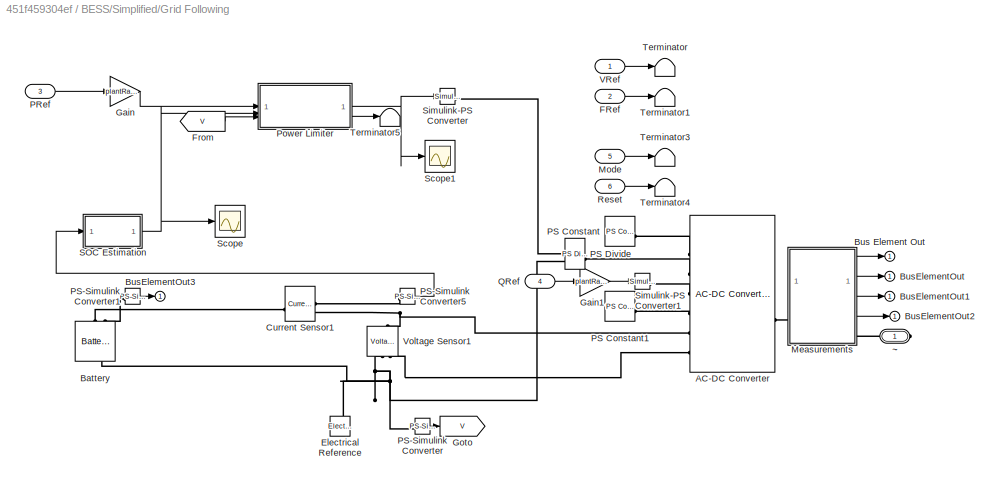
BLOCK [SubSystem] BESS/Simplified/Grid Following
  CopyFcn = set_param(gcbh,'LinkStatus','none');
  VariantControl = Grid Following
BLOCK [Reference] BESS/Simplified/Grid Following/AC-DC Converter  REF=custom_lib/AC-DC Converter  (lib defined in slx_304375ac1573)
  SourceBlock = custom_lib/AC-DC Converter
  SourceType = AC-DC Converter
BLOCK [Reference] BESS/Simplified/Grid Following/Battery  REF=batteryecm_lib/Battery
  NameLocation = right
  SourceBlock = batteryecm_lib/Battery
  SourceType = Battery
BLOCK [Outport] BESS/Simplified/Grid Following/Bus Element Out
BLOCK [Outport] BESS/Simplified/Grid Following/BusElementOut
BLOCK [Outport] BESS/Simplified/Grid Following/BusElementOut1
BLOCK [Outport] BESS/Simplified/Grid Following/BusElementOut2
BLOCK [Outport] BESS/Simplified/Grid Following/BusElementOut3
BLOCK [Reference] BESS/Simplified/Grid Following/Current Sensor1  REF=fl_lib/Electrical/Electrical Sensors/Current Sensor
  SourceBlock = fl_lib/Electrical/Electrical Sensors/Current Sensor
  SourceType = Current Sensor
BLOCK [Reference] BESS/Simplified/Grid Following/Electrical Reference  REF=fl_lib/Electrical/Electrical Elements/Electrical Reference
  NameLocation = right
  SourceBlock = fl_lib/Electrical/Electrical Elements/Electrical Reference
  SourceType = Electrical Reference
BLOCK [Inport] BESS/Simplified/Grid Following/FRef
  Port = 2
BLOCK [From] BESS/Simplified/Grid Following/From
  GotoTag = V
BLOCK [Gain] BESS/Simplified/Grid Following/Gain
  Gain = plantRating*1000
BLOCK [Gain] BESS/Simplified/Grid Following/Gain1
  Gain = plantRating*1000
BLOCK [Goto] BESS/Simplified/Grid Following/Goto
  GotoTag = V
BLOCK [SubSystem] BESS/Simplified/Grid Following/Measurements
BLOCK [Reference] BESS/Simplified/Grid Following/Measurements/Current and Voltage Sensor (Three-Phase)5  REF=ee_lib/Sensors &
Transducers/Current and Voltage
Sensor (Three-Phase)
  SourceBlock = ee_lib/Sensors &\nTransducers/Current and Voltage\nSensor (Three-Phase)
  SourceType = Current and Voltage\nSensor (Three-Phase)
BLOCK [Gain] BESS/Simplified/Grid Following/Measurements/Gain1
  Gain = 1/(plantRating*1000)
BLOCK [Gain] BESS/Simplified/Grid Following/Measurements/Gain2
  Gain = 1/(plantRating*1000)
BLOCK [Outport] BESS/Simplified/Grid Following/Measurements/I
  Port = 4
BLOCK [PMIOPort] BESS/Simplified/Grid Following/Measurements/In
  Side = Left
BLOCK [Reference] BESS/Simplified/Grid Following/Measurements/Low-Pass Filter (Discrete or Continuous)1  REF=eeGeneralControl/Low-Pass Filter
(Discrete or Continuous)
  SourceBlock = eeGeneralControl/Low-Pass Filter\n(Discrete or Continuous)
  SourceType = Low-Pass Filter (Discrete or Continuous)
BLOCK [Reference] BESS/Simplified/Grid Following/Measurements/Low-Pass Filter (Discrete or Continuous)2  REF=eeGeneralControl/Low-Pass Filter
(Discrete or Continuous)
  SourceBlock = eeGeneralControl/Low-Pass Filter\n(Discrete or Continuous)
  SourceType = Low-Pass Filter (Discrete or Continuous)
BLOCK [Outport] BESS/Simplified/Grid Following/Measurements/P
BLOCK [Reference] BESS/Simplified/Grid Following/Measurements/PS-Simulink Converter  REF=nesl_utility/PS-Simulink
Converter
  SourceBlock = nesl_utility/PS-Simulink\nConverter
  SourceType = PS-Simulink\nConverter
BLOCK [Reference] BESS/Simplified/Grid Following/Measurements/PS-Simulink Converter1  REF=nesl_utility/PS-Simulink
Converter
  SourceBlock = nesl_utility/PS-Simulink\nConverter
  SourceType = PS-Simulink\nConverter
BLOCK [Reference] BESS/Simplified/Grid Following/Measurements/PS-Simulink Converter2  REF=nesl_utility/PS-Simulink
Converter
  SourceBlock = nesl_utility/PS-Simulink\nConverter
  SourceType = PS-Simulink\nConverter
BLOCK [Reference] BESS/Simplified/Grid Following/Measurements/PS-Simulink Converter3  REF=nesl_utility/PS-Simulink
Converter
  SourceBlock = nesl_utility/PS-Simulink\nConverter
  SourceType = PS-Simulink\nConverter
BLOCK [Reference] BESS/Simplified/Grid Following/Measurements/Power Sensor (Three-Phase)  REF=ee_lib/Sensors &
Transducers/Power Sensor
(Three-Phase)
  SourceBlock = ee_lib/Sensors &\nTransducers/Power Sensor\n(Three-Phase)
  SourceType = Power Sensor\n(Three-Phase)
BLOCK [Outport] BESS/Simplified/Grid Following/Measurements/Q
  Port = 2
BLOCK [Outport] BESS/Simplified/Grid Following/Measurements/V
  Port = 3
BLOCK [PMIOPort] BESS/Simplified/Grid Following/Measurements/~
  Port = 2
  Side = Right
BLOCK [Inport] BESS/Simplified/Grid Following/Mode
  Port = 5
BLOCK [Inport] BESS/Simplified/Grid Following/PRef
  Port = 3
BLOCK [Reference] BESS/Simplified/Grid Following/PS Constant  REF=fl_lib/Physical Signals/Sources/PS Constant
  SourceBlock = fl_lib/Physical Signals/Sources/PS Constant
  SourceType = PS Constant
BLOCK [Reference] BESS/Simplified/Grid Following/PS Constant1  REF=fl_lib/Physical Signals/Sources/PS Constant
  SourceBlock = fl_lib/Physical Signals/Sources/PS Constant
  SourceType = PS Constant
BLOCK [Reference] BESS/Simplified/Grid Following/PS Divide  REF=fl_lib/Physical Signals/Functions/PS Divide
  SourceBlock = fl_lib/Physical Signals/Functions/PS Divide
  SourceType = PS Divide
BLOCK [Reference] BESS/Simplified/Grid Following/PS-Simulink Converter  REF=nesl_utility/PS-Simulink
Converter
  SourceBlock = nesl_utility/PS-Simulink\nConverter
  SourceType = PS-Simulink\nConverter
BLOCK [Reference] BESS/Simplified/Grid Following/PS-Simulink Converter1  REF=nesl_utility/PS-Simulink
Converter
  SourceBlock = nesl_utility/PS-Simulink\nConverter
  SourceType = PS-Simulink\nConverter
BLOCK [Reference] BESS/Simplified/Grid Following/PS-Simulink Converter5  REF=nesl_utility/PS-Simulink
Converter
  SourceBlock = nesl_utility/PS-Simulink\nConverter
  SourceType = PS-Simulink\nConverter
BLOCK [SubSystem] BESS/Simplified/Grid Following/Power Limiter
BLOCK [Sum] BESS/Simplified/Grid Following/Power Limiter/Add
  IconShape = rectangular
BLOCK [Reference] BESS/Simplified/Grid Following/Power Limiter/Compare To Constant  REF=simulink/Logic and Bit
Operations/Compare
To Constant
  SourceBlock = simulink/Logic and Bit\nOperations/Compare\nTo Constant
  SourceType = Compare To Constant
BLOCK [Reference] BESS/Simplified/Grid Following/Power Limiter/Compare To Constant1  REF=simulink/Logic and Bit
Operations/Compare
To Constant
  SourceBlock = simulink/Logic and Bit\nOperations/Compare\nTo Constant
  SourceType = Compare To Constant
BLOCK [Constant] BESS/Simplified/Grid Following/Power Limiter/Constant
  Value = maxSOC
BLOCK [Constant] BESS/Simplified/Grid Following/Power Limiter/Constant1
  Value = 0
BLOCK [Constant] BESS/Simplified/Grid Following/Power Limiter/Constant2
  Value = minSOC
BLOCK [Constant] BESS/Simplified/Grid Following/Power Limiter/Constant3
  Value = 0
BLOCK [Constant] BESS/Simplified/Grid Following/Power Limiter/Constant5
  Value = minSOC
BLOCK [DataTypeConversion] BESS/Simplified/Grid Following/Power Limiter/Data Type Conversion
  OutDataTypeStr = double
  RndMeth = Floor
  SaturateOnIntegerOverflow = off
BLOCK [Delay] BESS/Simplified/Grid Following/Power Limiter/Delay1
  DelayLength = 1
  InputPortMap = u0
BLOCK [Product] BESS/Simplified/Grid Following/Power Limiter/Divide
  Inputs = */
BLOCK [Gain] BESS/Simplified/Grid Following/Power Limiter/Gain
  Gain = -1/(Inf)
BLOCK [RelationalOperator] BESS/Simplified/Grid Following/Power Limiter/GreaterThan
  InputSameDT = off
  Operator = >
  OutDataTypeStr = boolean
  RndMeth = Simplest
BLOCK [RelationalOperator] BESS/Simplified/Grid Following/Power Limiter/GreaterThan1
  InputSameDT = off
  Operator = <
  OutDataTypeStr = boolean
  RndMeth = Simplest
BLOCK [RelationalOperator] BESS/Simplified/Grid Following/Power Limiter/GreaterThan3
  InputSameDT = off
  Operator = <
  OutDataTypeStr = boolean
  RndMeth = Simplest
BLOCK [Logic] BESS/Simplified/Grid Following/Power Limiter/NOR
  AllPortsSameDT = off
  IconShape = distinctive
  Operator = NOR
  OutDataTypeStr = boolean
BLOCK [Inport] BESS/Simplified/Grid Following/Power Limiter/P
BLOCK [Outport] BESS/Simplified/Grid Following/Power Limiter/POut
BLOCK [Product] BESS/Simplified/Grid Following/Power Limiter/Product
BLOCK [Inport] BESS/Simplified/Grid Following/Power Limiter/SOC
  Port = 2
BLOCK [Outport] BESS/Simplified/Grid Following/Power Limiter/SOCFlag
  Port = 2
BLOCK [Scope] BESS/Simplified/Grid Following/Power Limiter/Scope1
  Floating = off
  GraphicalSettings = {"GraphicalSettings":{"LegacySettings":true,"Style":{"Style":{"MinimizeControls":"false","PlotType":"Auto"}}}}
  NumInputPorts = 2
  WasSavedAsWebScope = on
BLOCK [Scope] BESS/Simplified/Grid Following/Power Limiter/Scope2
  Floating = off
  GraphicalSettings = {"GraphicalSettings":{"LegacySettings":true,"Style":{"Style":{"MinimizeControls":"false","PlotType":"Auto"}}}}
  NumInputPorts = 1
  WasSavedAsWebScope = on
BLOCK [Scope] BESS/Simplified/Grid Following/Power Limiter/Scope3
  Floating = off
  GraphicalSettings = {"GraphicalSettings":{"LegacySettings":true,"Style":{"Style":{"MinimizeControls":"false","PlotType":"Auto"}}}}
  NumInputPorts = 3
  WasSavedAsWebScope = on
BLOCK [Switch] BESS/Simplified/Grid Following/Power Limiter/Switch
  Criteria = u2 > Threshold
  InputSameDT = off
  SaturateOnIntegerOverflow = off
BLOCK [Switch] BESS/Simplified/Grid Following/Power Limiter/Switch1
  Criteria = u2 > Threshold
  InputSameDT = off
  SaturateOnIntegerOverflow = off
BLOCK [Switch] BESS/Simplified/Grid Following/Power Limiter/Switch2
  Criteria = u2 > Threshold
  InputSameDT = off
  SaturateOnIntegerOverflow = off
BLOCK [Inport] BESS/Simplified/Grid Following/Power Limiter/V
  Port = 3
BLOCK [Inport] BESS/Simplified/Grid Following/QRef
  Port = 4
BLOCK [Inport] BESS/Simplified/Grid Following/Reset
  Port = 6
BLOCK [SubSystem] BESS/Simplified/Grid Following/SOC Estimation
BLOCK [Constant] BESS/Simplified/Grid Following/SOC Estimation/Constant
  Value = 0.95
BLOCK [Gain] BESS/Simplified/Grid Following/SOC Estimation/Gain
  Gain = -1/(100000)
BLOCK [Inport] BESS/Simplified/Grid Following/SOC Estimation/I
BLOCK [Reference] BESS/Simplified/Grid Following/SOC Estimation/Integrator (Discrete or Continuous)  REF=eeGeneralControl/Integrator
(Discrete or Continuous)
  SourceBlock = eeGeneralControl/Integrator\n(Discrete or Continuous)
  SourceType = Integrator (Discrete or Continuous)
BLOCK [Outport] BESS/Simplified/Grid Following/SOC Estimation/SOC
BLOCK [Scope] BESS/Simplified/Grid Following/Scope
  ActiveDisplayYMaximum = 1
  ActiveDisplayYMinimum = -1
  DataLoggingVariableName = ScopeData21
  Floating = off
  GraphicalSettings = {"Style":{"BackgroundColor":[0.12941176470588237,0.12941176470588237,0.12941176470588237],"AxesColor":[0.07058823529411765,0.07058823529411765,0.07058823529411765],"LabelsColor":[0.8509803921568627,0.8509803921568627,0.8509803921568627],"PreserveColors":false,"Visible":[true],"LineStyle":["-"],"LineWidth":[1.5],"BarWidth":[0.9],"LineColor":["auto"],"LineFaceAlpha":[1],"LineEdgeAlpha":[1],"Marker":...<+1916ch>
  MultipleDisplayCache = [{"MaxYLimMag":1,"MaxYLimReal":1,"MinYLimMag":0,"MinYLimReal":-1,"PlotAsMagnitudePhase":false,"ShowGrid":true,"ShowLegend":false,"Title":"%<SignalLabel>","YLabel":""}]
  NumInputPorts = 1
  WasSavedAsWebScope = on
  WindowPosition = [360.000000,150.000000,560.000000,420.000000,]
BLOCK [Scope] BESS/Simplified/Grid Following/Scope1
  Floating = off
  GraphicalSettings = {"GraphicalSettings":{"LegacySettings":true,"Style":{"Style":{"PlotType":"Auto"}}}}
  NumInputPorts = 1
  WasSavedAsWebScope = on
BLOCK [Reference] BESS/Simplified/Grid Following/Simulink-PS Converter  REF=nesl_utility/Simulink-PS
Converter
  SourceBlock = nesl_utility/Simulink-PS\nConverter
  SourceType = Simulink-PS\nConverter
BLOCK [Reference] BESS/Simplified/Grid Following/Simulink-PS Converter1  REF=nesl_utility/Simulink-PS
Converter
  SourceBlock = nesl_utility/Simulink-PS\nConverter
  SourceType = Simulink-PS\nConverter
BLOCK [Terminator] BESS/Simplified/Grid Following/Terminator
BLOCK [Terminator] BESS/Simplified/Grid Following/Terminator1
BLOCK [Terminator] BESS/Simplified/Grid Following/Terminator3
BLOCK [Terminator] BESS/Simplified/Grid Following/Terminator4
BLOCK [Terminator] BESS/Simplified/Grid Following/Terminator5
BLOCK [Inport] BESS/Simplified/Grid Following/VRef
BLOCK [Reference] BESS/Simplified/Grid Following/Voltage Sensor1  REF=fl_lib/Electrical/Electrical Sensors/Voltage Sensor
  NameLocation = right
  SourceBlock = fl_lib/Electrical/Electrical Sensors/Voltage Sensor
  SourceType = Voltage Sensor
BLOCK [PMIOPort] BESS/Simplified/Grid Following/~
  Side = Right
BLOCK [SubSystem] BESS/Simplified/Grid Forming
  CopyFcn = set_param(gcbh,'LinkStatus','none');
  VariantControl = Grid Forming
BLOCK [Outport] BESS/Simplified/Grid Forming/BusElementOut
BLOCK [Outport] BESS/Simplified/Grid Forming/BusElementOut1
BLOCK [Outport] BESS/Simplified/Grid Forming/BusElementOut2
BLOCK [Outport] BESS/Simplified/Grid Forming/BusElementOut3
BLOCK [Reference] BESS/Simplified/Grid Forming/Circuit Breaker (Three-Phase)  REF=ee_lib/Switches & Breakers/Circuit Breaker
(Three-Phase)
  SourceBlock = ee_lib/Switches & Breakers/Circuit Breaker\n(Three-Phase)
  SourceType = Circuit Breaker\n(Three-Phase)
BLOCK [Reference] BESS/Simplified/Grid Forming/Controlled Voltage Source (Three-Phase)  REF=ee_lib/Sources/Controlled Voltage
Source
(Three-Phase)
  SourceBlock = ee_lib/Sources/Controlled Voltage\nSource\n(Three-Phase)
  SourceType = Controlled Voltage\nSource\n(Three-Phase)
BLOCK [Delay] BESS/Simplified/Grid Forming/Delay
  DelayLength = 1
  InputPortMap = u0
  NameLocation = top
BLOCK [Delay] BESS/Simplified/Grid Forming/Delay1
  DelayLength = 1
  InputPortMap = u0
  NameLocation = top
BLOCK [Delay] BESS/Simplified/Grid Forming/Delay2
  DelayLength = 1
  InputPortMap = u0
  NameLocation = top
BLOCK [Demux] BESS/Simplified/Grid Forming/Demux
  NameLocation = top
  Outputs = 3
BLOCK [Reference] BESS/Simplified/Grid Forming/Electrical Reference1  REF=fl_lib/Electrical/Electrical Elements/Electrical Reference
  NameLocation = right
  SourceBlock = fl_lib/Electrical/Electrical Elements/Electrical Reference
  SourceType = Electrical Reference
BLOCK [Inport] BESS/Simplified/Grid Forming/FRef
  Port = 2
BLOCK [Reference] BESS/Simplified/Grid Forming/Grounded Neutral (Three-Phase)  REF=ee_lib/Connectors &
References/Grounded Neutral
(Three-Phase)
  NameLocation = right
  SourceBlock = ee_lib/Connectors &\nReferences/Grounded Neutral\n(Three-Phase)
  SourceType = Grounded Neutral\n(Three-Phase)
BLOCK [SubSystem] BESS/Simplified/Grid Forming/Limiter
BLOCK [Reference] BESS/Simplified/Grid Forming/Limiter/Compare To Constant  REF=simulink/Logic and Bit
Operations/Compare
To Constant
  SourceBlock = simulink/Logic and Bit\nOperations/Compare\nTo Constant
  SourceType = Compare To Constant
BLOCK [Reference] BESS/Simplified/Grid Forming/Limiter/Compare To Constant1  REF=simulink/Logic and Bit
Operations/Compare
To Constant
  SourceBlock = simulink/Logic and Bit\nOperations/Compare\nTo Constant
  SourceType = Compare To Constant
BLOCK [DataTypeConversion] BESS/Simplified/Grid Forming/Limiter/Data Type Conversion
  OutDataTypeStr = double
  RndMeth = Floor
  SaturateOnIntegerOverflow = off
BLOCK [Delay] BESS/Simplified/Grid Forming/Limiter/Delay
  DelayLength = 1
  InputPortMap = u0
  InputProcessing = Columns as channels (frame based)
BLOCK [Outport] BESS/Simplified/Grid Forming/Limiter/Flag
BLOCK [Logic] BESS/Simplified/Grid Forming/Limiter/OR
  AllPortsSameDT = off
  Operator = OR
  OutDataTypeStr = boolean
BLOCK [Inport] BESS/Simplified/Grid Forming/Limiter/SOC
BLOCK [Reference] BESS/Simplified/Grid Forming/Low-Pass Filter (Discrete or Continuous)1  REF=eeGeneralControl/Low-Pass Filter
(Discrete or Continuous)
  SourceBlock = eeGeneralControl/Low-Pass Filter\n(Discrete or Continuous)
  SourceType = Low-Pass Filter (Discrete or Continuous)
BLOCK [Reference] BESS/Simplified/Grid Forming/Low-Pass Filter (Discrete or Continuous)2  REF=eeGeneralControl/Low-Pass Filter
(Discrete or Continuous)
  SourceBlock = eeGeneralControl/Low-Pass Filter\n(Discrete or Continuous)
  SourceType = Low-Pass Filter (Discrete or Continuous)
BLOCK [SubSystem] BESS/Simplified/Grid Forming/Measurements
BLOCK [Reference] BESS/Simplified/Grid Forming/Measurements/Current and Voltage Sensor (Three-Phase)5  REF=ee_lib/Sensors &
Transducers/Current and Voltage
Sensor (Three-Phase)
  SourceBlock = ee_lib/Sensors &\nTransducers/Current and Voltage\nSensor (Three-Phase)
  SourceType = Current and Voltage\nSensor (Three-Phase)
BLOCK [Gain] BESS/Simplified/Grid Forming/Measurements/Gain1
  Gain = 1/(plantRating*1000)
BLOCK [Gain] BESS/Simplified/Grid Forming/Measurements/Gain2
  Gain = 1/(plantRating*1000)
BLOCK [Outport] BESS/Simplified/Grid Forming/Measurements/I
  Port = 4
BLOCK [PMIOPort] BESS/Simplified/Grid Forming/Measurements/In
  Side = Left
BLOCK [Outport] BESS/Simplified/Grid Forming/Measurements/P
BLOCK [Reference] BESS/Simplified/Grid Forming/Measurements/PS-Simulink Converter  REF=nesl_utility/PS-Simulink
Converter
  SourceBlock = nesl_utility/PS-Simulink\nConverter
  SourceType = PS-Simulink\nConverter
BLOCK [Reference] BESS/Simplified/Grid Forming/Measurements/PS-Simulink Converter1  REF=nesl_utility/PS-Simulink
Converter
  SourceBlock = nesl_utility/PS-Simulink\nConverter
  SourceType = PS-Simulink\nConverter
BLOCK [Reference] BESS/Simplified/Grid Forming/Measurements/PS-Simulink Converter2  REF=nesl_utility/PS-Simulink
Converter
  SourceBlock = nesl_utility/PS-Simulink\nConverter
  SourceType = PS-Simulink\nConverter
BLOCK [Reference] BESS/Simplified/Grid Forming/Measurements/PS-Simulink Converter3  REF=nesl_utility/PS-Simulink
Converter
  SourceBlock = nesl_utility/PS-Simulink\nConverter
  SourceType = PS-Simulink\nConverter
BLOCK [Reference] BESS/Simplified/Grid Forming/Measurements/Power Sensor (Three-Phase)  REF=ee_lib/Sensors &
Transducers/Power Sensor
(Three-Phase)
  SourceBlock = ee_lib/Sensors &\nTransducers/Power Sensor\n(Three-Phase)
  SourceType = Power Sensor\n(Three-Phase)
BLOCK [Outport] BESS/Simplified/Grid Forming/Measurements/Q
  Port = 2
BLOCK [Outport] BESS/Simplified/Grid Forming/Measurements/V
  Port = 3
BLOCK [PMIOPort] BESS/Simplified/Grid Forming/Measurements/~
  Port = 2
  Side = Right
BLOCK [Inport] BESS/Simplified/Grid Forming/Mode
  Port = 5
BLOCK [Outport] BESS/Simplified/Grid Forming/Out Bus Element
BLOCK [Inport] BESS/Simplified/Grid Forming/PRef
  Port = 3
BLOCK [Reference] BESS/Simplified/Grid Forming/PS RMS Estimator  REF=fl_lib/Physical Signals/Periodic Operators/PS RMS Estimator
  NameLocation = top
  SourceBlock = fl_lib/Physical Signals/Periodic Operators/PS RMS Estimator
  SourceType = PS RMS Estimator
BLOCK [Reference] BESS/Simplified/Grid Forming/PS-Simulink Converter2  REF=nesl_utility/PS-Simulink
Converter
  NameLocation = top
  SourceBlock = nesl_utility/PS-Simulink\nConverter
  SourceType = PS-Simulink\nConverter
BLOCK [Reference] BESS/Simplified/Grid Forming/Phase Voltage Sensor (Three-Phase)  REF=ee_lib/Sensors &
Transducers/Phase Voltage Sensor
(Three-Phase)
  NameLocation = right
  SourceBlock = ee_lib/Sensors &\nTransducers/Phase Voltage Sensor\n(Three-Phase)
  SourceType = Phase Voltage Sensor\n(Three-Phase)
BLOCK [Inport] BESS/Simplified/Grid Forming/QRef
  Port = 4
BLOCK [SubSystem] BESS/Simplified/Grid Forming/Reference Generator
BLOCK [Gain] BESS/Simplified/Grid Forming/Reference Generator/Gain
  Gain = efficiency/100
BLOCK [Gain] BESS/Simplified/Grid Forming/Reference Generator/Gain2
  Gain = sqrt(3)/Vac
BLOCK [If] BESS/Simplified/Grid Forming/Reference Generator/If
BLOCK [SubSystem] BESS/Simplified/Grid Forming/Reference Generator/If Action Subsystem
  TreatAsAtomicUnit = on
BLOCK [ActionPort] BESS/Simplified/Grid Forming/Reference Generator/If Action Subsystem/Action Port
  ActionPortLabel = if(u1 > 0)
BLOCK [Sum] BESS/Simplified/Grid Forming/Reference Generator/If Action Subsystem/Add
  IconShape = rectangular
  Inputs = -+
BLOCK [Sum] BESS/Simplified/Grid Forming/Reference Generator/If Action Subsystem/Add1
  IconShape = rectangular
  Inputs = +-
BLOCK [Sum] BESS/Simplified/Grid Forming/Reference Generator/If Action Subsystem/Add2
  IconShape = rectangular
BLOCK [Sum] BESS/Simplified/Grid Forming/Reference Generator/If Action Subsystem/Add3
  IconShape = rectangular
  Inputs = +-
BLOCK [Sum] BESS/Simplified/Grid Forming/Reference Generator/If Action Subsystem/Add4
  IconShape = rectangular
  Inputs = -+
BLOCK [Constant] BESS/Simplified/Grid Forming/Reference Generator/If Action Subsystem/Constant
  SampleTime = -1
  Value = 2*pi*frequency
BLOCK [Constant] BESS/Simplified/Grid Forming/Reference Generator/If Action Subsystem/Constant2
BLOCK [Constant] BESS/Simplified/Grid Forming/Reference Generator/If Action Subsystem/Constant3
BLOCK [Gain] BESS/Simplified/Grid Forming/Reference Generator/If Action Subsystem/Gain
  Gain = activeDroop
BLOCK [Gain] BESS/Simplified/Grid Forming/Reference Generator/If Action Subsystem/Gain1
  Gain = reactiveDroop
BLOCK [Gain] BESS/Simplified/Grid Forming/Reference Generator/If Action Subsystem/Gain4
  Gain = Vac
BLOCK [Gain] BESS/Simplified/Grid Forming/Reference Generator/If Action Subsystem/Gain5
  Gain = 2*pi*frequency
BLOCK [Reference] BESS/Simplified/Grid Forming/Reference Generator/If Action Subsystem/Integrator with Wrapped State (Discrete or Continuous)  REF=eeGeneralControl/Integrator with
Wrapped State
(Discrete or Continuous)
  SourceBlock = eeGeneralControl/Integrator with\nWrapped State\n(Discrete or Continuous)
  SourceType = Integrator with Wrapped State (Discrete or Continuous)
BLOCK [Reference] BESS/Simplified/Grid Forming/Reference Generator/If Action Subsystem/Integrator with Wrapped State (Discrete or Continuous)1  REF=eeGeneralControl/Integrator with
Wrapped State
(Discrete or Continuous)
  SourceBlock = eeGeneralControl/Integrator with\nWrapped State\n(Discrete or Continuous)
  SourceType = Integrator with Wrapped State (Discrete or Continuous)
BLOCK [Inport] BESS/Simplified/Grid Forming/Reference Generator/If Action Subsystem/P
  Port = 2
BLOCK [Inport] BESS/Simplified/Grid Forming/Reference Generator/If Action Subsystem/PRef
BLOCK [Outport] BESS/Simplified/Grid Forming/Reference Generator/If Action Subsystem/Ph
  Port = 2
BLOCK [Inport] BESS/Simplified/Grid Forming/Reference Generator/If Action Subsystem/Q
  Port = 4
BLOCK [Inport] BESS/Simplified/Grid Forming/Reference Generator/If Action Subsystem/QRef
  Port = 3
BLOCK [Saturate] BESS/Simplified/Grid Forming/Reference Generator/If Action Subsystem/Saturation
  LowerLimit = 0.9
  UpperLimit = 1.1
BLOCK [Scope] BESS/Simplified/Grid Forming/Reference Generator/If Action Subsystem/Scope
  ActiveDisplayYMaximum = 1
  ActiveDisplayYMinimum = -1
  DataLoggingVariableName = ScopeData2
  Floating = off
  GraphicalSettings = {"Style":{"BackgroundColor":[0.12941176470588237,0.12941176470588237,0.12941176470588237],"AxesColor":[0.07058823529411765,0.07058823529411765,0.07058823529411765],"LabelsColor":[0.8509803921568627,0.8509803921568627,0.8509803921568627],"PreserveColors":false,"Visible":[true],"LineStyle":["-"],"LineWidth":[1.5],"BarWidth":[0.9],"LineColor":["auto"],"LineFaceAlpha":[1],"LineEdgeAlpha":[1],"Marker":...<+1954ch>
  MultipleDisplayCache = [{"MaxYLimMag":1,"MaxYLimReal":1,"MinYLimMag":0,"MinYLimReal":-1,"PlotAsMagnitudePhase":false,"ShowGrid":true,"ShowLegend":false,"Title":"%<SignalLabel>","YLabel":""}]
  NumInputPorts = 1
  ScopeFrameLocation = window
  WasSavedAsWebScope = on
  WindowPosition = [360.000000,150.000000,560.000000,420.000000,]
BLOCK [Scope] BESS/Simplified/Grid Forming/Reference Generator/If Action Subsystem/Scope1
  ActiveDisplayYMaximum = 1
  ActiveDisplayYMinimum = -1
  DataLoggingVariableName = ScopeData3
  Floating = off
  GraphicalSettings = {"Style":{"BackgroundColor":[0.12941176470588237,0.12941176470588237,0.12941176470588237],"AxesColor":[0.07058823529411765,0.07058823529411765,0.07058823529411765],"LabelsColor":[0.8509803921568627,0.8509803921568627,0.8509803921568627],"PreserveColors":false,"Visible":[true],"LineStyle":["-"],"LineWidth":[1.5],"BarWidth":[0.9],"LineColor":["auto"],"LineFaceAlpha":[1],"LineEdgeAlpha":[1],"Marker":...<+1892ch>
  MultipleDisplayCache = [{"MaxYLimMag":1,"MaxYLimReal":1,"MinYLimMag":0,"MinYLimReal":-1,"PlotAsMagnitudePhase":false,"ShowGrid":true,"ShowLegend":false,"Title":"%<SignalLabel>","YLabel":""}]
  NumInputPorts = 1
  ScopeFrameLocation = window
  WasSavedAsWebScope = on
  WindowPosition = [360.000000,150.000000,560.000000,420.000000,]
BLOCK [Scope] BESS/Simplified/Grid Forming/Reference Generator/If Action Subsystem/Scope2
  ActiveDisplayYMaximum = 1
  ActiveDisplayYMinimum = -1
  Floating = off
  GraphicalSettings = {"Style":{"BackgroundColor":[0.12941176470588237,0.12941176470588237,0.12941176470588237],"AxesColor":[0.07058823529411765,0.07058823529411765,0.07058823529411765],"LabelsColor":[0.8509803921568627,0.8509803921568627,0.8509803921568627],"PreserveColors":false,"Visible":[true,true],"LineStyle":["-","-"],"LineWidth":[1.5,1.5],"BarWidth":[0.9,0.9],"LineColor":["auto","auto"],"LineFaceAlpha":[1,1],"Li...<+2361ch>
  LayoutDimensionsString = [2,1]
  NumInputPorts = 2
  ScopeFrameLocation = window
  WasSavedAsWebScope = on
  WindowPosition = [601.000000,151.000000,560.000000,420.000000,]
BLOCK [Scope] BESS/Simplified/Grid Forming/Reference Generator/If Action Subsystem/Scope3
  ActiveDisplayYMaximum = 1
  ActiveDisplayYMinimum = -1
  DataLoggingVariableName = ScopeData2
  Floating = off
  GraphicalSettings = {"Style":{"BackgroundColor":[0.12941176470588237,0.12941176470588237,0.12941176470588237],"AxesColor":[0.07058823529411765,0.07058823529411765,0.07058823529411765],"LabelsColor":[0.8509803921568627,0.8509803921568627,0.8509803921568627],"PreserveColors":false,"Visible":[true,true],"LineStyle":["-","-"],"LineWidth":[1.5,1.5],"BarWidth":[0.9,0.9],"LineColor":["auto","auto"],"LineFaceAlpha":[1,1],"Li...<+2258ch>
  LayoutDimensionsString = [2,1]
  NumInputPorts = 2
  ScopeFrameLocation = window
  WasSavedAsWebScope = on
  WindowPosition = [601.000000,151.000000,560.000000,420.000000,]
BLOCK [Outport] BESS/Simplified/Grid Forming/Reference Generator/If Action Subsystem/Vt
BLOCK [SubSystem] BESS/Simplified/Grid Forming/Reference Generator/If Action Subsystem1
  TreatAsAtomicUnit = on
BLOCK [ActionPort] BESS/Simplified/Grid Forming/Reference Generator/If Action Subsystem1/Action Port
  ActionPortLabel = else
BLOCK [Sum] BESS/Simplified/Grid Forming/Reference Generator/If Action Subsystem1/Add
  IconShape = rectangular
  Inputs = +-
BLOCK [Sum] BESS/Simplified/Grid Forming/Reference Generator/If Action Subsystem1/Add1
  IconShape = rectangular
  Inputs = +-
BLOCK [Sum] BESS/Simplified/Grid Forming/Reference Generator/If Action Subsystem1/Add2
  IconShape = rectangular
BLOCK [Sum] BESS/Simplified/Grid Forming/Reference Generator/If Action Subsystem1/Add3
  IconShape = rectangular
  Inputs = +-
BLOCK [Sum] BESS/Simplified/Grid Forming/Reference Generator/If Action Subsystem1/Add4
  IconShape = rectangular
  Inputs = -+
BLOCK [Constant] BESS/Simplified/Grid Forming/Reference Generator/If Action Subsystem1/Constant2
BLOCK [Constant] BESS/Simplified/Grid Forming/Reference Generator/If Action Subsystem1/Constant3
BLOCK [Constant] BESS/Simplified/Grid Forming/Reference Generator/If Action Subsystem1/Constant4
  Value = 0
BLOCK [Gain] BESS/Simplified/Grid Forming/Reference Generator/If Action Subsystem1/Gain
  Gain = reactiveDroop
BLOCK [Gain] BESS/Simplified/Grid Forming/Reference Generator/If Action Subsystem1/Gain1
  Gain = activeDroop
BLOCK [Gain] BESS/Simplified/Grid Forming/Reference Generator/If Action Subsystem1/Gain4
  Gain = systemVoltage
BLOCK [Gain] BESS/Simplified/Grid Forming/Reference Generator/If Action Subsystem1/Gain5
  Gain = 2*pi*systemFrequency
BLOCK [Reference] BESS/Simplified/Grid Forming/Reference Generator/If Action Subsystem1/Integrator with Wrapped State (Discrete or Continuous)  REF=eeGeneralControl/Integrator with
Wrapped State
(Discrete or Continuous)
  SourceBlock = eeGeneralControl/Integrator with\nWrapped State\n(Discrete or Continuous)
  SourceType = Integrator with Wrapped State (Discrete or Continuous)
BLOCK [Inport] BESS/Simplified/Grid Forming/Reference Generator/If Action Subsystem1/P
  Port = 2
BLOCK [Inport] BESS/Simplified/Grid Forming/Reference Generator/If Action Subsystem1/PRef
BLOCK [Outport] BESS/Simplified/Grid Forming/Reference Generator/If Action Subsystem1/Ph
  Port = 2
BLOCK [Saturate] BESS/Simplified/Grid Forming/Reference Generator/If Action Subsystem1/Saturation
  LowerLimit = 0.9
  UpperLimit = 1.1
BLOCK [Inport] BESS/Simplified/Grid Forming/Reference Generator/If Action Subsystem1/V
  Port = 4
BLOCK [Inport] BESS/Simplified/Grid Forming/Reference Generator/If Action Subsystem1/VRef
  Port = 3
BLOCK [Outport] BESS/Simplified/Grid Forming/Reference Generator/If Action Subsystem1/Vt
BLOCK [Merge] BESS/Simplified/Grid Forming/Reference Generator/Merge
BLOCK [Merge] BESS/Simplified/Grid Forming/Reference Generator/Merge1
BLOCK [Inport] BESS/Simplified/Grid Forming/Reference Generator/Mode
BLOCK [Inport] BESS/Simplified/Grid Forming/Reference Generator/P
  Port = 3
BLOCK [Inport] BESS/Simplified/Grid Forming/Reference Generator/PRef
  Port = 2
BLOCK [Outport] BESS/Simplified/Grid Forming/Reference Generator/Ph
  Port = 2
BLOCK [Inport] BESS/Simplified/Grid Forming/Reference Generator/Q
  Port = 5
BLOCK [Inport] BESS/Simplified/Grid Forming/Reference Generator/QRef
  Port = 4
BLOCK [Inport] BESS/Simplified/Grid Forming/Reference Generator/V
  Port = 7
BLOCK [Inport] BESS/Simplified/Grid Forming/Reference Generator/VRef
  Port = 6
BLOCK [Outport] BESS/Simplified/Grid Forming/Reference Generator/Vt
BLOCK [Inport] BESS/Simplified/Grid Forming/Reset
  Port = 6
BLOCK [SubSystem] BESS/Simplified/Grid Forming/SOC Estimation
BLOCK [Constant] BESS/Simplified/Grid Forming/SOC Estimation/Constant
  Value = Vdc
BLOCK [Constant] BESS/Simplified/Grid Forming/SOC Estimation/Constant1
  Value = initialSOC
BLOCK [Constant] BESS/Simplified/Grid Forming/SOC Estimation/Constant2
  Value = capacity
BLOCK [Constant] BESS/Simplified/Grid Forming/SOC Estimation/Constant3
  Value = Inf
BLOCK [Product] BESS/Simplified/Grid Forming/SOC Estimation/Divide
  Inputs = */
BLOCK [Product] BESS/Simplified/Grid Forming/SOC Estimation/Divide1
  Inputs = */
BLOCK [Gain] BESS/Simplified/Grid Forming/SOC Estimation/Gain
  Gain = -plantRating*1000
BLOCK [Reference] BESS/Simplified/Grid Forming/SOC Estimation/Integrator (Discrete or Continuous)  REF=eeGeneralControl/Integrator
(Discrete or Continuous)
  SourceBlock = eeGeneralControl/Integrator\n(Discrete or Continuous)
  SourceType = Integrator (Discrete or Continuous)
BLOCK [Outport] BESS/Simplified/Grid Forming/SOC Estimation/Meas
BLOCK [Inport] BESS/Simplified/Grid Forming/SOC Estimation/P
BLOCK [StringCompare] BESS/Simplified/Grid Forming/SOC Estimation/String Compare
BLOCK [StringConstant] BESS/Simplified/Grid Forming/SOC Estimation/String Constant
  String = capacityType
BLOCK [StringConstant] BESS/Simplified/Grid Forming/SOC Estimation/String Constant1
  String = "Fixed"
BLOCK [Switch] BESS/Simplified/Grid Forming/SOC Estimation/Switch
  Criteria = u2 > Threshold
  InputSameDT = off
  SaturateOnIntegerOverflow = off
BLOCK [Scope] BESS/Simplified/Grid Forming/Scope
  ActiveDisplayYMaximum = 776.25000000000011
  ActiveDisplayYMinimum = 603.75
  DataLoggingVariableName = ScopeData1
  Floating = off
  GraphicalSettings = {"Style":{"BackgroundColor":[0.12941176470588237,0.12941176470588237,0.12941176470588237],"AxesColor":[0.07058823529411765,0.07058823529411765,0.07058823529411765],"LabelsColor":[0.8509803921568627,0.8509803921568627,0.8509803921568627],"PreserveColors":false,"Visible":[true,true],"LineStyle":["-","-"],"LineWidth":[1.5,1.5],"BarWidth":[0.9,0.9],"LineColor":["auto","auto"],"LineFaceAlpha":[1,1],"Li...<+2501ch>
  LayoutDimensionsString = [2 1]
  MultipleDisplayCache = [{"MaxYLimMag":776.25000000000011,"MaxYLimReal":776.25000000000011,"MinYLimMag":603.75,"MinYLimReal":603.75,"PlotAsMagnitudePhase":false,"ShowGrid":true,"ShowLegend":false,"Title":"%<SignalLabel>","YLabel":""},{"MaxYLimMag":7.851398657091857,"MaxYLimReal":7.8362097557115824,"MinYLimMag":0,"MinYLimReal":-7.851398657091857,"PlotAsMagnitudePhase":false,"ShowGrid":true,"ShowLegend":false,"Title":"%<Si...<+25ch>
  NumInputPorts = 2
  ScopeFrameLocation = window
  WasSavedAsWebScope = on
  WindowPosition = [358.000000,148.000000,564.000000,431.000000,]
BLOCK [Scope] BESS/Simplified/Grid Forming/Scope2
  Floating = off
  GraphicalSettings = {"GraphicalSettings":{"LegacySettings":true,"Style":{"Style":{"PlotType":"Auto"}}}}
  NumInputPorts = 1
  WasSavedAsWebScope = on
BLOCK [Reference] BESS/Simplified/Grid Forming/Simulink-PS Converter  REF=nesl_utility/Simulink-PS
Converter
  SourceBlock = nesl_utility/Simulink-PS\nConverter
  SourceType = Simulink-PS\nConverter
BLOCK [Reference] BESS/Simplified/Grid Forming/Simulink-PS Converter1  REF=nesl_utility/Simulink-PS
Converter
  SourceBlock = nesl_utility/Simulink-PS\nConverter
  SourceType = Simulink-PS\nConverter
BLOCK [Reference] BESS/Simplified/Grid Forming/Simulink-PS Converter2  REF=nesl_utility/Simulink-PS
Converter
  SourceBlock = nesl_utility/Simulink-PS\nConverter
  SourceType = Simulink-PS\nConverter
BLOCK [Terminator] BESS/Simplified/Grid Forming/Terminator
  NameLocation = top
BLOCK [Terminator] BESS/Simplified/Grid Forming/Terminator1
  NameLocation = top
BLOCK [Terminator] BESS/Simplified/Grid Forming/Terminator2
BLOCK [Terminator] BESS/Simplified/Grid Forming/Terminator3
BLOCK [Inport] BESS/Simplified/Grid Forming/VRef
BLOCK [PMIOPort] BESS/Simplified/Grid Forming/~
  Side = Right
BLOCK [Outport] BESS/Simplified/Meas
BLOCK [Inport] BESS/Simplified/Mode
  Port = 5
BLOCK [Inport] BESS/Simplified/PRef
  Port = 3
BLOCK [Inport] BESS/Simplified/QRef
  Port = 4
BLOCK [Inport] BESS/Simplified/Reset
  Port = 6
BLOCK [Inport] BESS/Simplified/VRef
BLOCK [PMIOPort] BESS/Simplified/~
  Side = Right
BLOCK [Inport] BESS/VRef
BLOCK [PMIOPort] BESS/~
  Side = Right
BLOCK [BusSelector] Bus Selector
  OutputSignals = activePower,reactivePower
BLOCK [Constant] Constant
BLOCK [Constant] Constant1
  Value = 50
BLOCK [Constant] Constant3
  Value = 0.5
BLOCK [Constant] Constant4
BLOCK [Constant] Constant5
  Value = 0
BLOCK [Reference] Electrical Reference  REF=fl_lib/Electrical/Electrical Elements/Electrical Reference
  NameLocation = right
  SourceBlock = fl_lib/Electrical/Electrical Elements/Electrical Reference
  SourceType = Electrical Reference
BLOCK [Scope] Scope2
  ActiveDisplayYMaximum = 1.7817477651289169
  ActiveDisplayYMinimum = -3.20005915874359
  DataLoggingVariableName = ScopeData17
  Floating = off
  GraphicalSettings = {"Style":{"BackgroundColor":[0.12941176470588237,0.12941176470588237,0.12941176470588237],"AxesColor":[0.07058823529411765,0.07058823529411765,0.07058823529411765],"LabelsColor":[0.8509803921568627,0.8509803921568627,0.8509803921568627],"PreserveColors":false,"Visible":[true,true],"LineStyle":["-","-"],"LineWidth":[1.5,1.5],"BarWidth":[0.9,0.9],"LineColor":["auto","auto"],"LineFaceAlpha":[1,1],"Li...<+2461ch>
  LayoutDimensionsString = [2 1]
  MultipleDisplayCache = [{"MaxYLimMag":3.20005915874359,"MaxYLimReal":1.7817477651289169,"MinYLimMag":0,"MinYLimReal":-3.20005915874359,"PlotAsMagnitudePhase":false,"ShowGrid":true,"ShowLegend":false,"Title":"%<SignalLabel>","YLabel":""},{"MaxYLimMag":0.55791502251631286,"MaxYLimReal":0.55791502251631286,"MinYLimMag":0,"MinYLimReal":-0.098955955565338344,"PlotAsMagnitudePhase":false,"ShowGrid":true,"ShowLegend":false,"Ti...<+35ch>
  NumInputPorts = 2
  ScopeFrameLocation = window
  WasSavedAsWebScope = on
  WindowPosition = [7.000000,55.000000,1268.000000,645.000000,]
BLOCK [Reference] Solver Configuration  REF=nesl_utility/Solver
Configuration
  NameLocation = top
  SourceBlock = nesl_utility/Solver\nConfiguration
  SourceType = Solver\nConfiguration
BLOCK [Step] Step
  After = 0
  Before = 1
  SampleTime = 0
  Time = 30
BLOCK [Reference] Two-Winding Transformer (Three-Phase)  REF=ee_lib/Passive/Transformers/Two-Winding
Transformer
(Three-Phase)
  SourceBlock = ee_lib/Passive/Transformers/Two-Winding\nTransformer\n(Three-Phase)
  SourceType = Two-Winding\nTransformer\n(Three-Phase)
BLOCK [Reference] Voltage Source (Three-Phase)  REF=ee_lib/Sources/Voltage
Source
(Three-Phase)
  NameLocation = top
  SourceBlock = ee_lib/Sources/Voltage\nSource\n(Three-Phase)
  SourceType = Voltage\nSource\n(Three-Phase)
ANNOTATION BESS/Detailed: Controller
ANNOTATION BESS/Detailed: Plant
ANNOTATION BESS/Detailed/BESS Controller/Grid Following/Reference Current: Avoid division by zero during start
ANNOTATION BESS/Detailed/BESS Controller/Grid Following/Reference Current: Current Limiters
ANNOTATION BESS/Detailed/BESS Controller/Grid Forming/Current Limiting/CurrentLimitingMethod/currentLimitAndVirtual/Current Saturation: Vs-delV
ANNOTATION BESS/Detailed/BESS Controller/Grid Forming/Current Limiting/CurrentLimitingMethod/currentLimitAndVirtual/VI: Resistance coefficient
ANNOTATION BESS/Detailed/BESS Controller/Grid Forming/Current Limiting/CurrentLimitingMethod/currentLimitAndVirtual/VI: X/R ratio
ANNOTATION BESS/Detailed/BESS Controller/Grid Forming/Current Limiting/CurrentLimitingMethod/currentSaturation: Vs-delV
ANNOTATION BESS/Detailed/BESS Controller/Grid Forming/Current Limiting/CurrentLimitingMethod/virtualImpedance: Resistance coefficient
ANNOTATION BESS/Detailed/BESS Controller/Grid Forming/Current Limiting/CurrentLimitingMethod/virtualImpedance: X/R ratio
ANNOTATION BESS/Detailed/BESS Controller/Grid Forming/Grid Voltage Reactive Power Support/Modifying Reactive Power Reference/Changing the Power Reference/ActivePowerReference: Ensure Pref sign is maintained
ANNOTATION BESS/Detailed/BESS Controller/Grid Forming/Grid Voltage Reactive Power Support/Modifying Reactive Power Reference/Changing the Power Reference/EstimateIqForReactivePower: Computing minimum reactive power as per GC0137
ANNOTATION BESS/Detailed/BESS Controller/Grid Forming/Power Control: Active Power Control
ANNOTATION BESS/Detailed/BESS Controller/Grid Forming/Power Control: Reactive Power Control
ANNOTATION BESS/Detailed/BESS Controller/Grid Forming/Power Control/ActivePowerControl/vsmControl: Damping power input
ANNOTATION BESS/Detailed/BESS Controller/Grid Forming/Power Control/ActivePowerControl/vsmControl: Measured power
ANNOTATION BESS/Detailed/BESS Controller/Grid Forming/Power Control/ActivePowerControl/vsmControl/Power Reference Selection/If Action Subsystem: Frequency difference power
ANNOTATION BESS/Detailed/BESS Controller/Grid Forming/Power Control/ActivePowerControl/vsmControl/Power Reference Selection/If Action Subsystem1: Frequency difference power
ANNOTATION BESS/Detailed/BESS Controller/Grid Forming/Power Control/ReactiveControl: Vs-delV
ANNOTATION BESS/Detailed/BESS Controller/Grid Forming/Power Control/ReactiveControl/Voltage  Reference Selection/If Action Subsystem: Vs-delV
ANNOTATION BESS/Detailed/BESS Controller/Grid Forming/Power Control/ReactiveControl/Voltage  Reference Selection/If Action Subsystem1: Vs-delV
ANNOTATION BESS/Detailed/BESS Controller/Grid Forming/VoltageCurrentControl/Controller: Id controller
ANNOTATION BESS/Detailed/BESS Controller/Grid Forming/VoltageCurrentControl/Controller: Iq controller
ANNOTATION BESS/Detailed/BESS Controller/Grid Forming/VoltageCurrentControl/Controller: Vd Voltage Controller
ANNOTATION BESS/Detailed/BESS Controller/Grid Forming/VoltageCurrentControl/Controller: Vq Voltage Controller
LINE BESS:1 -> Bus Selector:1
LINE Bus Selector:1 -> Scope2:1
LINE Bus Selector:2 -> Scope2:2
LINE Constant1:1 -> BESS:2
LINE Constant3:1 -> BESS:4
LINE Constant4:1 -> BESS:5
LINE Constant5:1 -> BESS:6
LINE Constant:1 -> BESS:1
LINE Step:1 -> BESS:3
PLINE BESS:RConn1 -- Two-Winding Transformer (Three-Phase):LConn1
PNET net1: Electrical Reference:LConn1 -- Solver Configuration:RConn1 -- Voltage Source (Three-Phase):LConn1
PLINE Two-Winding Transformer (Three-Phase):RConn1 -- Voltage Source (Three-Phase):RConn1
note: PNET lines group multi-terminal physical nets as a canonical sorted terminal list (undirected conserving connections); 2-terminal nets keep the pairwise PLINE form
CHART BESS/Detailed/BESS Controller/Grid Forming/Current Limiting/CurrentLimitingMethod/currentLimitAndVirtual/CurrentLimitSelection states=4 transitions=10
  STATE_LABEL 'Mode1_VI_ON\nentry:\nnoCurrentLimit  = 0;\nviCurrentLimit = 1;\nsatCurrentLimit = 0;\nismax= maxVICurrentLimit;\nexit:\nnoCurrentLimit  = 0;\nviCurrentLimit = 1;\nsatCurrentLimit = 0;\nismax= maxVICurrentLimit;\n'
  STATE_LABEL 'Start_Mode\nentry:\nnoCurrentLimit  = 1;\nviCurrentLimit = 0;\nsatCurrentLimit = 0;\nismax= maxSatCurrentLimit;\nexit:\nnoCurrentLimit  = 1;\nviCurrentLimit = 0;\nsatCurrentLimit = 0;\nismax= maxSatCurrentLimit;\n'
  STATE_LABEL 'Mode2_CurrentSat_ON\nentry:\nnoCurrentLimit  = 0;\nviCurrentLimit = 0;\nsatCurrentLimit = 1;\nismax= maxSatCurrentLimit;\nexit:\nnoCurrentLimit  = 0;\nviCurrentLimit = 0;\nsatCurrentLimit = 1;\nismax= maxSatCurrentLimit;\n'
  STATE_LABEL 'Mode3_CurrentSat_ON\nentry:\nnoCurrentLimit  = 0;\nviCurrentLimit = 0;\nsatCurrentLimit = 1;\nismax= 1.1*maxVICurrentLimit;\nexit:\nnoCurrentLimit  = 0;\nviCurrentLimit = 0;\nsatCurrentLimit = 1;\nismax= 1.1*maxVICurrentLimit;\n'
CHART BESS/Detailed/BESS Controller/Grid Forming/Measurement/Frequency Measurement/Frequency Measurement/If Action
Subsystem/Frequency estimation/MATLAB Function states=1 transitions=1
  STATE_LABEL 'eML_blk_kernel()'
  STATE_LABEL 'SCRIPT:\nfunction x = fcn(y1,y2,x1,x2)\n% Line equation between two points is y-y1=((y2-y1)/(x2-x1))*(x-x1). Here\n% to to find the zero crossing instant substitute y = 0 and find x\nslope = (y2-y1)/(x2-x1);\nx = x1-y1/slope;\n\n\n'
CHART  states=0 transitions=0
CHART  states=0 transitions=0
